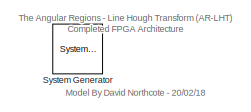
[diagram: root canvas - part 1/3, top left region]
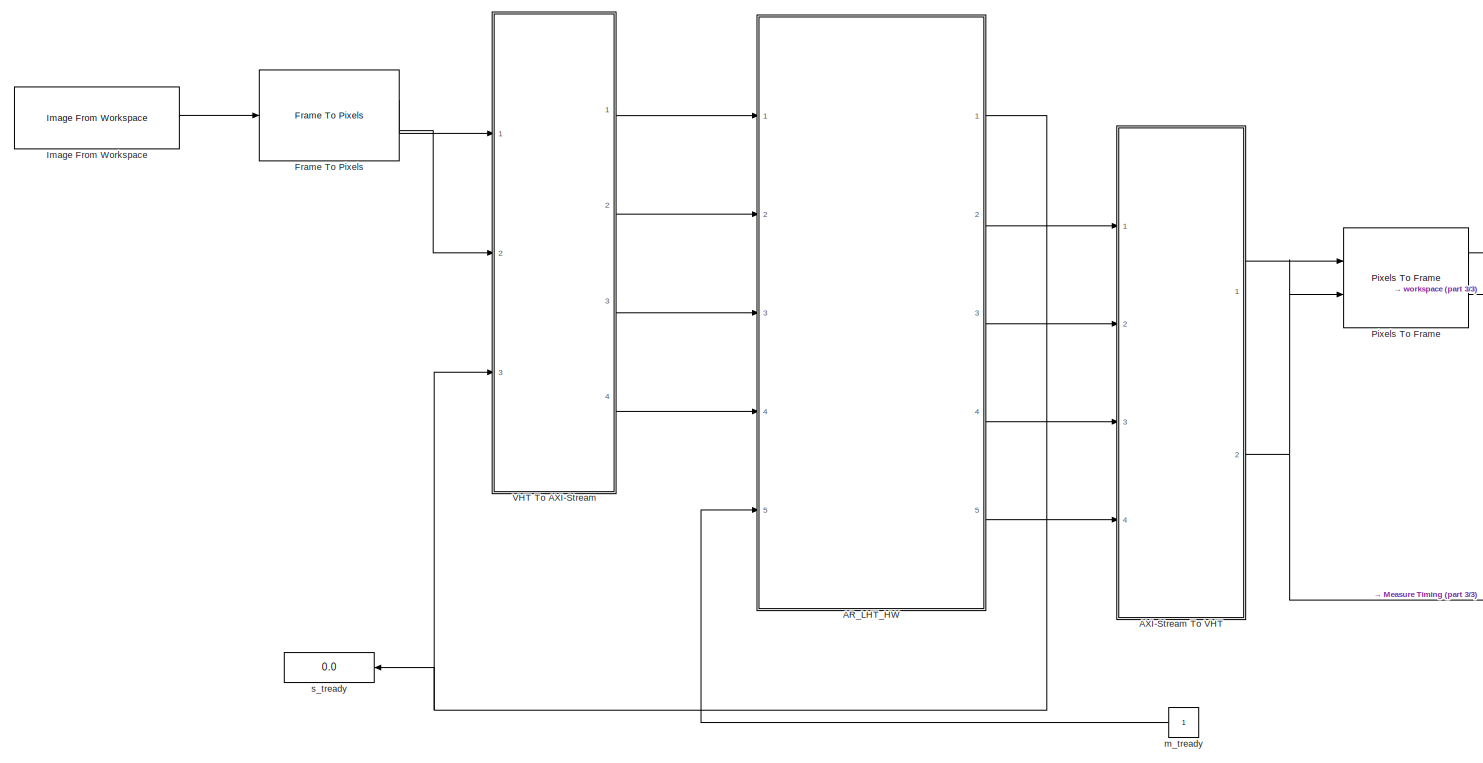
[diagram: root canvas - part 2/3, most of the canvas]
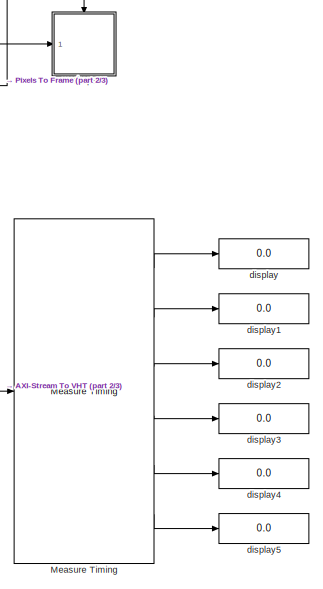
[diagram: root canvas - part 3/3, bottom right region]
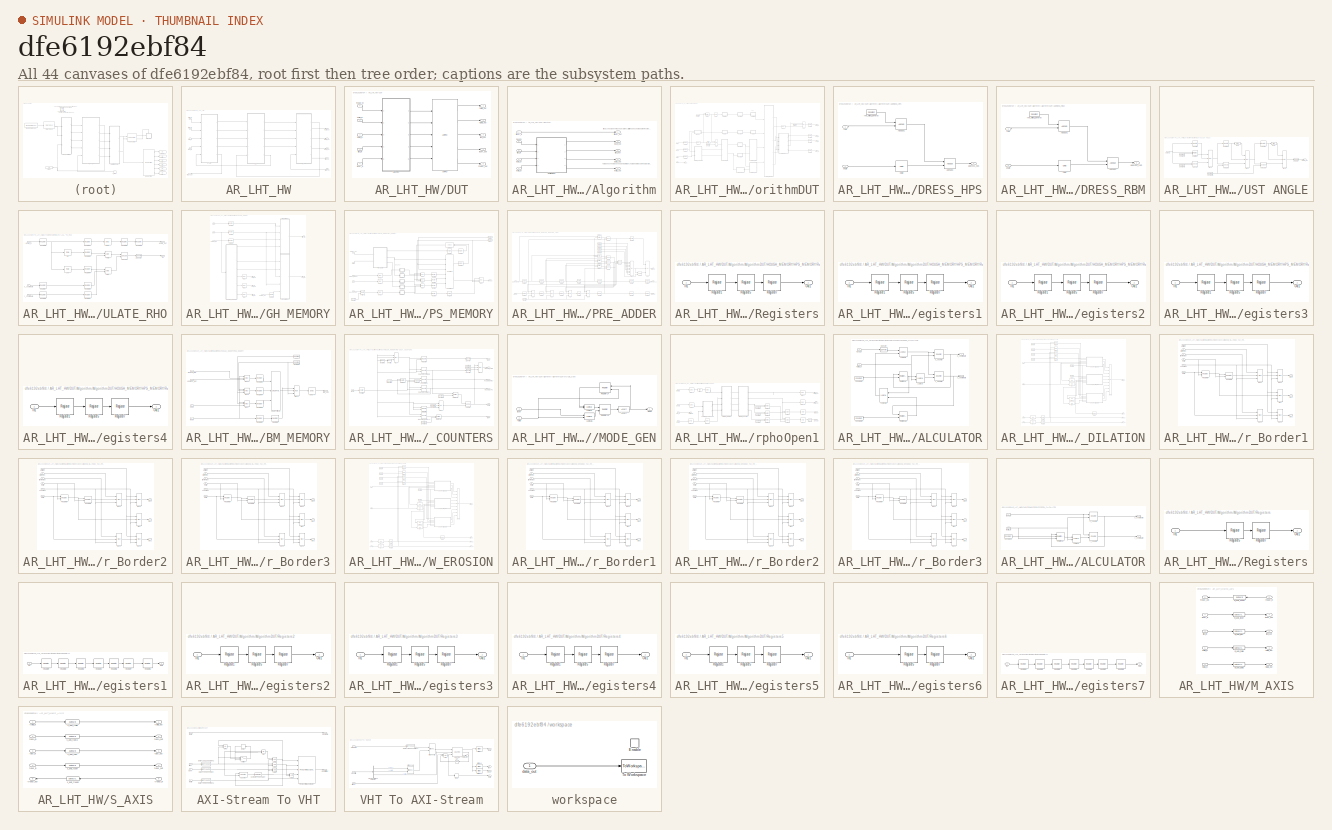
[diagram: thumbnail index - all 44 canvases of the model, root first then tree order]
MODEL slx_dfe6192ebf84
KIND model
CONFIG AbsTol = auto
CONFIG EnableMultiTasking = on
CONFIG FixedStep = auto
CONFIG MaxStep = auto
CONFIG MinStep = auto
CONFIG PreLoadFcn = currentDir  = pwd;\nfilesepIdx   = strfind(currentDir, filesep);\nnewDir = currentDir(1:filesepIdx(end)-8);\n\naddpath([newDir, '\scripts']);
CONFIG RelTol = 1e-3
CONFIG SampleTimeConstraint = Unconstrained
CONFIG Solver = VariableStepAuto
CONFIG SolverName = VariableStepAuto
CONFIG StartFcn = simComplete = 0;
CONFIG StartTime = 0.0
CONFIG StopFcn = simComplete = 1;
CONFIG StopTime = ts*2+2*maxRho*T
BLOCK [Reference]  System Generator  REF=xbsIndex_r4/ System Generator
  AttributesFormatString = System\nGenerator
  Ports = []
  SourceBlock = xbsIndex_r4/ System Generator
  SourceType = Xilinx System Generator Block
  Tag = genX
  UserDataPersistent = on
BLOCK [SubSystem] AR_LHT_HW
  Ports = [5, 5]
  RequestExecContextInheritance = off
BLOCK [SubSystem] AR_LHT_HW/DUT
  Ports = [5, 5]
  RequestExecContextInheritance = off
BLOCK [Reference] AR_LHT_HW/DUT/AXI FIFO  REF=xbsIndex_r4/AXI FIFO
  Ports = [5, 5]
  SourceBlock = xbsIndex_r4/AXI FIFO
  SourceType = Xilinx AXI FIFO Block Block
BLOCK [SubSystem] AR_LHT_HW/DUT/Algorithm
  Ports = [5, 5]
  RequestExecContextInheritance = off
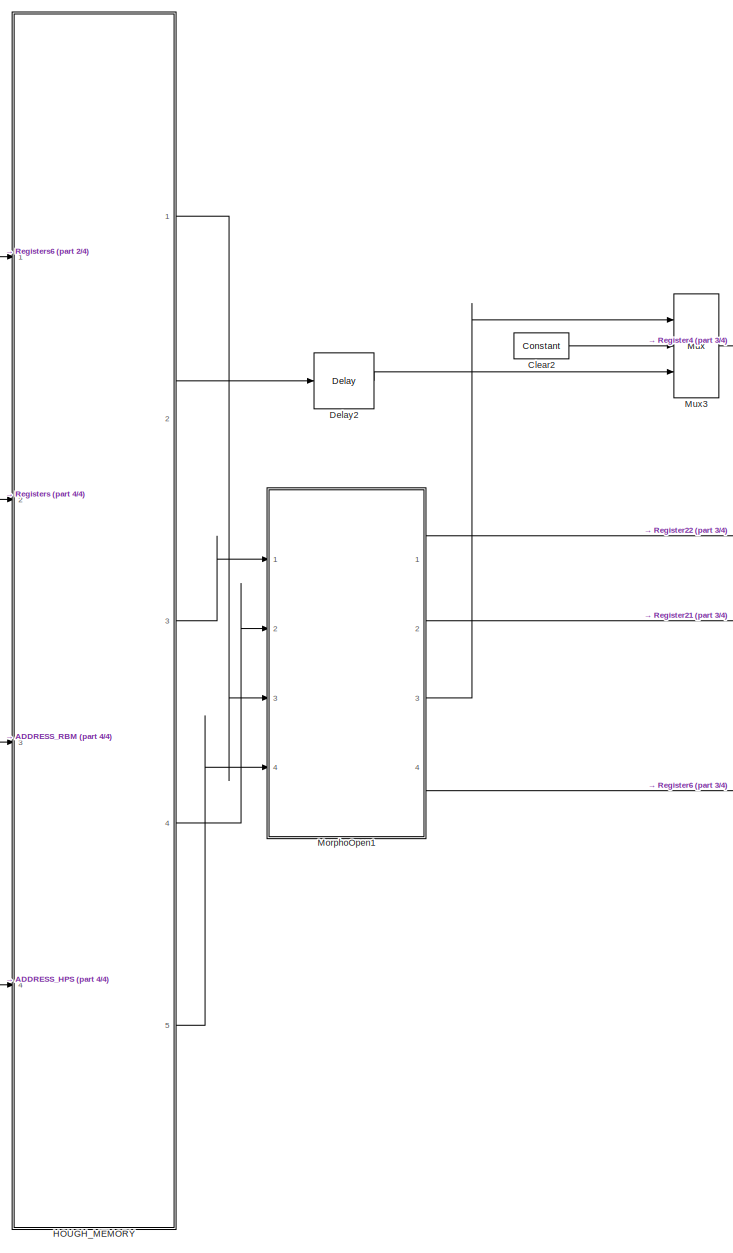
[diagram: AR_LHT_HW/DUT/Algorithm/AlgorithmDUT - part 1/4, right side, full height]
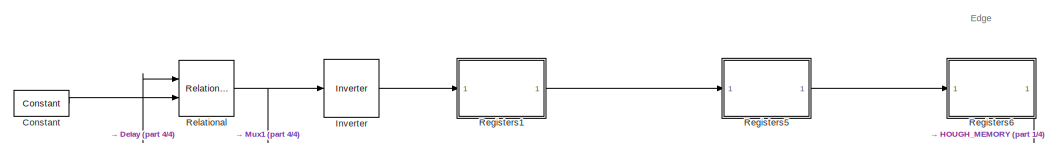
[diagram: AR_LHT_HW/DUT/Algorithm/AlgorithmDUT - part 2/4, top center region]
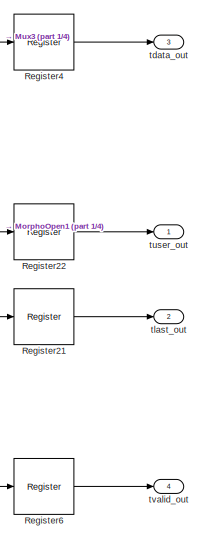
[diagram: AR_LHT_HW/DUT/Algorithm/AlgorithmDUT - part 3/4, middle right region]
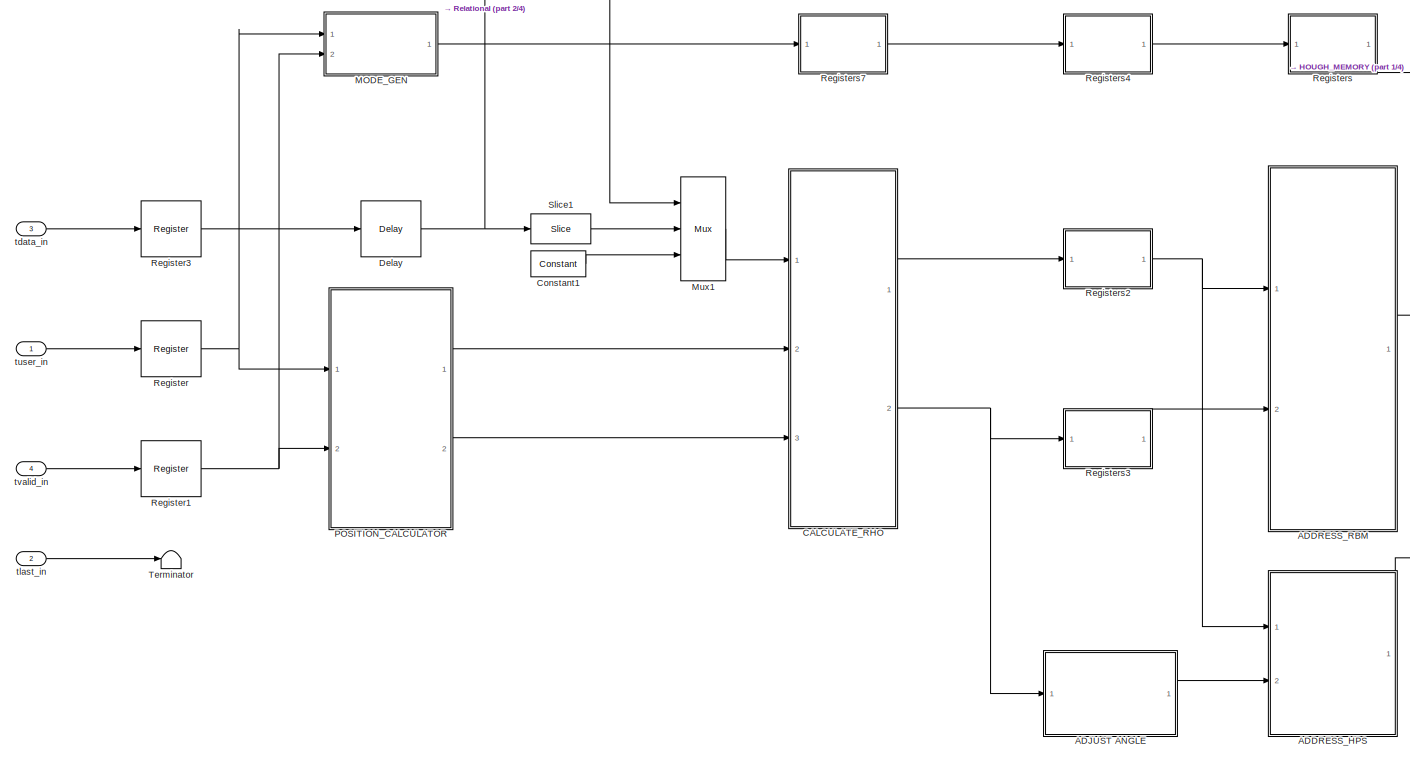
[diagram: AR_LHT_HW/DUT/Algorithm/AlgorithmDUT - part 4/4, middle left region]
BLOCK [SubSystem] AR_LHT_HW/DUT/Algorithm/AlgorithmDUT
  Ports = [4, 4]
  RequestExecContextInheritance = off
BLOCK [SubSystem] AR_LHT_HW/DUT/Algorithm/AlgorithmDUT/ADDRESS_HPS
  Ports = [2, 1]
  RequestExecContextInheritance = off
BLOCK [Reference] AR_LHT_HW/DUT/Algorithm/AlgorithmDUT/ADDRESS_HPS/AddSub1  REF=xbsIndex_r4/AddSub
  Ports = [2, 1]
  SourceBlock = xbsIndex_r4/AddSub
  SourceType = Xilinx Adder/Subtracter Block
BLOCK [Reference] AR_LHT_HW/DUT/Algorithm/AlgorithmDUT/ADDRESS_HPS/AddSub2  REF=xbsIndex_r4/AddSub
  Ports = [2, 1]
  SourceBlock = xbsIndex_r4/AddSub
  SourceType = Xilinx Adder/Subtracter Block
BLOCK [Reference] AR_LHT_HW/DUT/Algorithm/AlgorithmDUT/ADDRESS_HPS/CMult  REF=xbsIndex_r4/CMult
  Ports = [1, 1]
  SourceBlock = xbsIndex_r4/CMult
  SourceType = Xilinx Constant Multiplier Block
BLOCK [Outport] AR_LHT_HW/DUT/Algorithm/AlgorithmDUT/ADDRESS_HPS/address_hps
  IconDisplay = Port number
BLOCK [Inport] AR_LHT_HW/DUT/Algorithm/AlgorithmDUT/ADDRESS_HPS/angle
  IconDisplay = Port number
  Port = 2
BLOCK [Inport] AR_LHT_HW/DUT/Algorithm/AlgorithmDUT/ADDRESS_HPS/rho
  IconDisplay = Port number
BLOCK [Reference] AR_LHT_HW/DUT/Algorithm/AlgorithmDUT/ADDRESS_HPS/rho_offset_general  REF=xbsIndex_r4/Constant
  Ports = [0, 1]
  SourceBlock = xbsIndex_r4/Constant
  SourceType = Xilinx Constant Block Block
BLOCK [SubSystem] AR_LHT_HW/DUT/Algorithm/AlgorithmDUT/ADDRESS_RBM
  Ports = [2, 1]
  RequestExecContextInheritance = off
BLOCK [Reference] AR_LHT_HW/DUT/Algorithm/AlgorithmDUT/ADDRESS_RBM/AddSub1  REF=xbsIndex_r4/AddSub
  Ports = [2, 1]
  SourceBlock = xbsIndex_r4/AddSub
  SourceType = Xilinx Adder/Subtracter Block
BLOCK [Reference] AR_LHT_HW/DUT/Algorithm/AlgorithmDUT/ADDRESS_RBM/AddSub2  REF=xbsIndex_r4/AddSub
  Ports = [2, 1]
  SourceBlock = xbsIndex_r4/AddSub
  SourceType = Xilinx Adder/Subtracter Block
BLOCK [Reference] AR_LHT_HW/DUT/Algorithm/AlgorithmDUT/ADDRESS_RBM/CMult  REF=xbsIndex_r4/CMult
  Ports = [1, 1]
  SourceBlock = xbsIndex_r4/CMult
  SourceType = Xilinx Constant Multiplier Block
BLOCK [Outport] AR_LHT_HW/DUT/Algorithm/AlgorithmDUT/ADDRESS_RBM/address_rbm
  IconDisplay = Port number
BLOCK [Inport] AR_LHT_HW/DUT/Algorithm/AlgorithmDUT/ADDRESS_RBM/angle
  IconDisplay = Port number
  Port = 2
BLOCK [Inport] AR_LHT_HW/DUT/Algorithm/AlgorithmDUT/ADDRESS_RBM/rho
  IconDisplay = Port number
BLOCK [Reference] AR_LHT_HW/DUT/Algorithm/AlgorithmDUT/ADDRESS_RBM/rho_offset_general  REF=xbsIndex_r4/Constant
  Ports = [0, 1]
  SourceBlock = xbsIndex_r4/Constant
  SourceType = Xilinx Constant Block Block
BLOCK [SubSystem] AR_LHT_HW/DUT/Algorithm/AlgorithmDUT/ADJUST ANGLE
  Ports = [1, 1]
  RequestExecContextInheritance = off
BLOCK [Reference] AR_LHT_HW/DUT/Algorithm/AlgorithmDUT/ADJUST ANGLE/AddSub  REF=xbsIndex_r4/AddSub
  Ports = [2, 1]
  SourceBlock = xbsIndex_r4/AddSub
  SourceType = Xilinx Adder/Subtracter Block
BLOCK [Reference] AR_LHT_HW/DUT/Algorithm/AlgorithmDUT/ADJUST ANGLE/AddSub1  REF=xbsIndex_r4/AddSub
  Ports = [2, 1]
  SourceBlock = xbsIndex_r4/AddSub
  SourceType = Xilinx Adder/Subtracter Block
BLOCK [Reference] AR_LHT_HW/DUT/Algorithm/AlgorithmDUT/ADJUST ANGLE/AddSub2  REF=xbsIndex_r4/AddSub
  Ports = [2, 1]
  SourceBlock = xbsIndex_r4/AddSub
  SourceType = Xilinx Adder/Subtracter Block
BLOCK [Reference] AR_LHT_HW/DUT/Algorithm/AlgorithmDUT/ADJUST ANGLE/Constant1  REF=xbsIndex_r4/Constant
  Ports = [0, 1]
  SourceBlock = xbsIndex_r4/Constant
  SourceType = Xilinx Constant Block Block
BLOCK [Reference] AR_LHT_HW/DUT/Algorithm/AlgorithmDUT/ADJUST ANGLE/Constant2  REF=xbsIndex_r4/Constant
  Ports = [0, 1]
  SourceBlock = xbsIndex_r4/Constant
  SourceType = Xilinx Constant Block Block
BLOCK [Reference] AR_LHT_HW/DUT/Algorithm/AlgorithmDUT/ADJUST ANGLE/Constant3  REF=xbsIndex_r4/Constant
  Ports = [0, 1]
  SourceBlock = xbsIndex_r4/Constant
  SourceType = Xilinx Constant Block Block
BLOCK [Reference] AR_LHT_HW/DUT/Algorithm/AlgorithmDUT/ADJUST ANGLE/Convert  REF=xbsIndex_r4/Convert
  Ports = [1, 1]
  SourceBlock = xbsIndex_r4/Convert
  SourceType = Xilinx Type Converter Block
BLOCK [Reference] AR_LHT_HW/DUT/Algorithm/AlgorithmDUT/ADJUST ANGLE/MSB  REF=xbsIndex_r4/Slice
  Ports = [1, 1]
  SourceBlock = xbsIndex_r4/Slice
  SourceType = Xilinx Bit Slice Extractor Block
BLOCK [Reference] AR_LHT_HW/DUT/Algorithm/AlgorithmDUT/ADJUST ANGLE/MSB1  REF=xbsIndex_r4/Slice
  Ports = [1, 1]
  SourceBlock = xbsIndex_r4/Slice
  SourceType = Xilinx Bit Slice Extractor Block
BLOCK [Reference] AR_LHT_HW/DUT/Algorithm/AlgorithmDUT/ADJUST ANGLE/Mux1  REF=xbsIndex_r4/Mux
  Ports = [3, 1]
  SourceBlock = xbsIndex_r4/Mux
  SourceType = Xilinx Bus Multiplexer Block
BLOCK [Reference] AR_LHT_HW/DUT/Algorithm/AlgorithmDUT/ADJUST ANGLE/Mux2  REF=xbsIndex_r4/Mux
  Ports = [3, 1]
  SourceBlock = xbsIndex_r4/Mux
  SourceType = Xilinx Bus Multiplexer Block
BLOCK [Reference] AR_LHT_HW/DUT/Algorithm/AlgorithmDUT/ADJUST ANGLE/Mux3  REF=xbsIndex_r4/Mux
  Ports = [3, 1]
  SourceBlock = xbsIndex_r4/Mux
  SourceType = Xilinx Bus Multiplexer Block
BLOCK [Reference] AR_LHT_HW/DUT/Algorithm/AlgorithmDUT/ADJUST ANGLE/Register10  REF=xbsIndex_r4/Register
  Ports = [1, 1]
  SourceBlock = xbsIndex_r4/Register
  SourceType = Xilinx Register Block
BLOCK [Reference] AR_LHT_HW/DUT/Algorithm/AlgorithmDUT/ADJUST ANGLE/Register11  REF=xbsIndex_r4/Register
  Ports = [1, 1]
  SourceBlock = xbsIndex_r4/Register
  SourceType = Xilinx Register Block
BLOCK [Reference] AR_LHT_HW/DUT/Algorithm/AlgorithmDUT/ADJUST ANGLE/Register9  REF=xbsIndex_r4/Register
  Ports = [1, 1]
  SourceBlock = xbsIndex_r4/Register
  SourceType = Xilinx Register Block
BLOCK [Reference] AR_LHT_HW/DUT/Algorithm/AlgorithmDUT/ADJUST ANGLE/Relational  REF=xbsIndex_r4/Relational
  Ports = [2, 1]
  SourceBlock = xbsIndex_r4/Relational
  SourceType = Xilinx Arithmetic Relational Operator Block
BLOCK [Inport] AR_LHT_HW/DUT/Algorithm/AlgorithmDUT/ADJUST ANGLE/angle_in
  IconDisplay = Port number
BLOCK [Outport] AR_LHT_HW/DUT/Algorithm/AlgorithmDUT/ADJUST ANGLE/angle_out
  IconDisplay = Port number
BLOCK [SubSystem] AR_LHT_HW/DUT/Algorithm/AlgorithmDUT/CALCULATE_RHO
  Ports = [3, 2]
  RequestExecContextInheritance = off
BLOCK [Reference] AR_LHT_HW/DUT/Algorithm/AlgorithmDUT/CALCULATE_RHO/AddSub  REF=xbsIndex_r4/AddSub
  Ports = [2, 1]
  SourceBlock = xbsIndex_r4/AddSub
  SourceType = Xilinx Adder/Subtracter Block
BLOCK [Reference] AR_LHT_HW/DUT/Algorithm/AlgorithmDUT/CALCULATE_RHO/Convert  REF=xbsIndex_r4/Convert
  Ports = [1, 1]
  SourceBlock = xbsIndex_r4/Convert
  SourceType = Xilinx Type Converter Block
BLOCK [Reference] AR_LHT_HW/DUT/Algorithm/AlgorithmDUT/CALCULATE_RHO/Delay  REF=xbsIndex_r4/Delay
  Ports = [1, 1]
  SourceBlock = xbsIndex_r4/Delay
  SourceType = Xilinx Delay Block
BLOCK [Reference] AR_LHT_HW/DUT/Algorithm/AlgorithmDUT/CALCULATE_RHO/Mult  REF=xbsIndex_r4/Mult
  Ports = [2, 1]
  SourceBlock = xbsIndex_r4/Mult
  SourceType = Xilinx Multiplier Block
BLOCK [Reference] AR_LHT_HW/DUT/Algorithm/AlgorithmDUT/CALCULATE_RHO/Mult1  REF=xbsIndex_r4/Mult
  Ports = [2, 1]
  SourceBlock = xbsIndex_r4/Mult
  SourceType = Xilinx Multiplier Block
BLOCK [Reference] AR_LHT_HW/DUT/Algorithm/AlgorithmDUT/CALCULATE_RHO/Register  REF=xbsIndex_r4/Register
  Ports = [1, 1]
  SourceBlock = xbsIndex_r4/Register
  SourceType = Xilinx Register Block
BLOCK [Reference] AR_LHT_HW/DUT/Algorithm/AlgorithmDUT/CALCULATE_RHO/Register1  REF=xbsIndex_r4/Register
  Ports = [1, 1]
  SourceBlock = xbsIndex_r4/Register
  SourceType = Xilinx Register Block
BLOCK [Reference] AR_LHT_HW/DUT/Algorithm/AlgorithmDUT/CALCULATE_RHO/Register10  REF=xbsIndex_r4/Register
  Ports = [1, 1]
  SourceBlock = xbsIndex_r4/Register
  SourceType = Xilinx Register Block
BLOCK [Reference] AR_LHT_HW/DUT/Algorithm/AlgorithmDUT/CALCULATE_RHO/Register2  REF=xbsIndex_r4/Register
  Ports = [1, 1]
  SourceBlock = xbsIndex_r4/Register
  SourceType = Xilinx Register Block
BLOCK [Reference] AR_LHT_HW/DUT/Algorithm/AlgorithmDUT/CALCULATE_RHO/Register3  REF=xbsIndex_r4/Register
  Ports = [1, 1]
  SourceBlock = xbsIndex_r4/Register
  SourceType = Xilinx Register Block
BLOCK [Reference] AR_LHT_HW/DUT/Algorithm/AlgorithmDUT/CALCULATE_RHO/Register4  REF=xbsIndex_r4/Register
  Ports = [1, 1]
  SourceBlock = xbsIndex_r4/Register
  SourceType = Xilinx Register Block
BLOCK [Reference] AR_LHT_HW/DUT/Algorithm/AlgorithmDUT/CALCULATE_RHO/Register5  REF=xbsIndex_r4/Register
  Ports = [1, 1]
  SourceBlock = xbsIndex_r4/Register
  SourceType = Xilinx Register Block
BLOCK [Reference] AR_LHT_HW/DUT/Algorithm/AlgorithmDUT/CALCULATE_RHO/Register6  REF=xbsIndex_r4/Register
  Ports = [1, 1]
  SourceBlock = xbsIndex_r4/Register
  SourceType = Xilinx Register Block
BLOCK [Reference] AR_LHT_HW/DUT/Algorithm/AlgorithmDUT/CALCULATE_RHO/Register7  REF=xbsIndex_r4/Register
  Ports = [1, 1]
  SourceBlock = xbsIndex_r4/Register
  SourceType = Xilinx Register Block
BLOCK [Reference] AR_LHT_HW/DUT/Algorithm/AlgorithmDUT/CALCULATE_RHO/Register9  REF=xbsIndex_r4/Register
  Ports = [1, 1]
  SourceBlock = xbsIndex_r4/Register
  SourceType = Xilinx Register Block
BLOCK [Inport] AR_LHT_HW/DUT/Algorithm/AlgorithmDUT/CALCULATE_RHO/angle_in
  IconDisplay = Port number
BLOCK [Outport] AR_LHT_HW/DUT/Algorithm/AlgorithmDUT/CALCULATE_RHO/angle_out
  IconDisplay = Port number
  Port = 2
BLOCK [Reference] AR_LHT_HW/DUT/Algorithm/AlgorithmDUT/CALCULATE_RHO/cos  REF=xbsIndex_r4/ROM
  Ports = [1, 1]
  SourceBlock = xbsIndex_r4/ROM
  SourceType = Xilinx Single Port Read-Only Memory Block
BLOCK [Outport] AR_LHT_HW/DUT/Algorithm/AlgorithmDUT/CALCULATE_RHO/rho
  IconDisplay = Port number
BLOCK [Reference] AR_LHT_HW/DUT/Algorithm/AlgorithmDUT/CALCULATE_RHO/sin  REF=xbsIndex_r4/ROM
  Ports = [1, 1]
  SourceBlock = xbsIndex_r4/ROM
  SourceType = Xilinx Single Port Read-Only Memory Block
BLOCK [Inport] AR_LHT_HW/DUT/Algorithm/AlgorithmDUT/CALCULATE_RHO/x_coordinate
  IconDisplay = Port number
  Port = 2
BLOCK [Inport] AR_LHT_HW/DUT/Algorithm/AlgorithmDUT/CALCULATE_RHO/y_coordinate
  IconDisplay = Port number
  Port = 3
BLOCK [Reference] AR_LHT_HW/DUT/Algorithm/AlgorithmDUT/Clear2  REF=xbsIndex_r4/Constant
  Ports = [0, 1]
  SourceBlock = xbsIndex_r4/Constant
  SourceType = Xilinx Constant Block Block
BLOCK [Reference] AR_LHT_HW/DUT/Algorithm/AlgorithmDUT/Constant  REF=xbsIndex_r4/Constant
  Ports = [0, 1]
  SourceBlock = xbsIndex_r4/Constant
  SourceType = Xilinx Constant Block Block
BLOCK [Reference] AR_LHT_HW/DUT/Algorithm/AlgorithmDUT/Constant1  REF=xbsIndex_r4/Constant
  Ports = [0, 1]
  SourceBlock = xbsIndex_r4/Constant
  SourceType = Xilinx Constant Block Block
BLOCK [Reference] AR_LHT_HW/DUT/Algorithm/AlgorithmDUT/Delay  REF=xbsIndex_r4/Delay
  Ports = [1, 1]
  SourceBlock = xbsIndex_r4/Delay
  SourceType = Xilinx Delay Block
BLOCK [Reference] AR_LHT_HW/DUT/Algorithm/AlgorithmDUT/Delay2  REF=xbsIndex_r4/Delay
  Ports = [1, 1]
  SourceBlock = xbsIndex_r4/Delay
  SourceType = Xilinx Delay Block
BLOCK [SubSystem] AR_LHT_HW/DUT/Algorithm/AlgorithmDUT/HOUGH_MEMORY
  Ports = [4, 5]
  RequestExecContextInheritance = off
BLOCK [Reference] AR_LHT_HW/DUT/Algorithm/AlgorithmDUT/HOUGH_MEMORY/Delay1  REF=xbsIndex_r4/Delay
  Ports = [1, 1]
  SourceBlock = xbsIndex_r4/Delay
  SourceType = Xilinx Delay Block
BLOCK [Reference] AR_LHT_HW/DUT/Algorithm/AlgorithmDUT/HOUGH_MEMORY/Delay2  REF=xbsIndex_r4/Delay
  Ports = [1, 1]
  SourceBlock = xbsIndex_r4/Delay
  SourceType = Xilinx Delay Block
BLOCK [Reference] AR_LHT_HW/DUT/Algorithm/AlgorithmDUT/HOUGH_MEMORY/Delay6  REF=xbsIndex_r4/Delay
  Ports = [1, 1]
  SourceBlock = xbsIndex_r4/Delay
  SourceType = Xilinx Delay Block
BLOCK [SubSystem] AR_LHT_HW/DUT/Algorithm/AlgorithmDUT/HOUGH_MEMORY/HPS_MEMORY
  Ports = [5, 1]
  RequestExecContextInheritance = off
BLOCK [Reference] AR_LHT_HW/DUT/Algorithm/AlgorithmDUT/HOUGH_MEMORY/HPS_MEMORY/AddSub  REF=xbsIndex_r4/AddSub
  Ports = [2, 1]
  SourceBlock = xbsIndex_r4/AddSub
  SourceType = Xilinx Adder/Subtracter Block
BLOCK [Reference] AR_LHT_HW/DUT/Algorithm/AlgorithmDUT/HOUGH_MEMORY/HPS_MEMORY/Clear  REF=xbsIndex_r4/Constant
  Ports = [0, 1]
  SourceBlock = xbsIndex_r4/Constant
  SourceType = Xilinx Constant Block Block
BLOCK [Reference] AR_LHT_HW/DUT/Algorithm/AlgorithmDUT/HOUGH_MEMORY/HPS_MEMORY/Constant  REF=xbsIndex_r4/Constant
  Ports = [0, 1]
  SourceBlock = xbsIndex_r4/Constant
  SourceType = Xilinx Constant Block Block
BLOCK [Reference] AR_LHT_HW/DUT/Algorithm/AlgorithmDUT/HOUGH_MEMORY/HPS_MEMORY/Delay1  REF=xbsIndex_r4/Delay
  Ports = [1, 1]
  SourceBlock = xbsIndex_r4/Delay
  SourceType = Xilinx Delay Block
BLOCK [Reference] AR_LHT_HW/DUT/Algorithm/AlgorithmDUT/HOUGH_MEMORY/HPS_MEMORY/Delay2  REF=xbsIndex_r4/Delay
  Ports = [1, 1]
  SourceBlock = xbsIndex_r4/Delay
  SourceType = Xilinx Delay Block
BLOCK [Reference] AR_LHT_HW/DUT/Algorithm/AlgorithmDUT/HOUGH_MEMORY/HPS_MEMORY/Delay3  REF=xbsIndex_r4/Delay
  Ports = [1, 1]
  SourceBlock = xbsIndex_r4/Delay
  SourceType = Xilinx Delay Block
BLOCK [Reference] AR_LHT_HW/DUT/Algorithm/AlgorithmDUT/HOUGH_MEMORY/HPS_MEMORY/Dual Port RAM  REF=xbsIndex_r4/Dual Port RAM
  Ports = [6, 2]
  SourceBlock = xbsIndex_r4/Dual Port RAM
  SourceType = Xilinx Dual Port Random Access Memory Block
BLOCK [Reference] AR_LHT_HW/DUT/Algorithm/AlgorithmDUT/HOUGH_MEMORY/HPS_MEMORY/GND  REF=xbsIndex_r4/Constant
  Ports = [0, 1]
  SourceBlock = xbsIndex_r4/Constant
  SourceType = Xilinx Constant Block Block
BLOCK [Reference] AR_LHT_HW/DUT/Algorithm/AlgorithmDUT/HOUGH_MEMORY/HPS_MEMORY/Mux1  REF=xbsIndex_r4/Mux
  Ports = [3, 1]
  SourceBlock = xbsIndex_r4/Mux
  SourceType = Xilinx Bus Multiplexer Block
BLOCK [Reference] AR_LHT_HW/DUT/Algorithm/AlgorithmDUT/HOUGH_MEMORY/HPS_MEMORY/Mux2  REF=xbsIndex_r4/Mux
  Ports = [3, 1]
  SourceBlock = xbsIndex_r4/Mux
  SourceType = Xilinx Bus Multiplexer Block
BLOCK [Reference] AR_LHT_HW/DUT/Algorithm/AlgorithmDUT/HOUGH_MEMORY/HPS_MEMORY/Mux4  REF=xbsIndex_r4/Mux
  Ports = [3, 1]
  SourceBlock = xbsIndex_r4/Mux
  SourceType = Xilinx Bus Multiplexer Block
BLOCK [Reference] AR_LHT_HW/DUT/Algorithm/AlgorithmDUT/HOUGH_MEMORY/HPS_MEMORY/Mux5  REF=xbsIndex_r4/Mux
  Ports = [3, 1]
  SourceBlock = xbsIndex_r4/Mux
  SourceType = Xilinx Bus Multiplexer Block
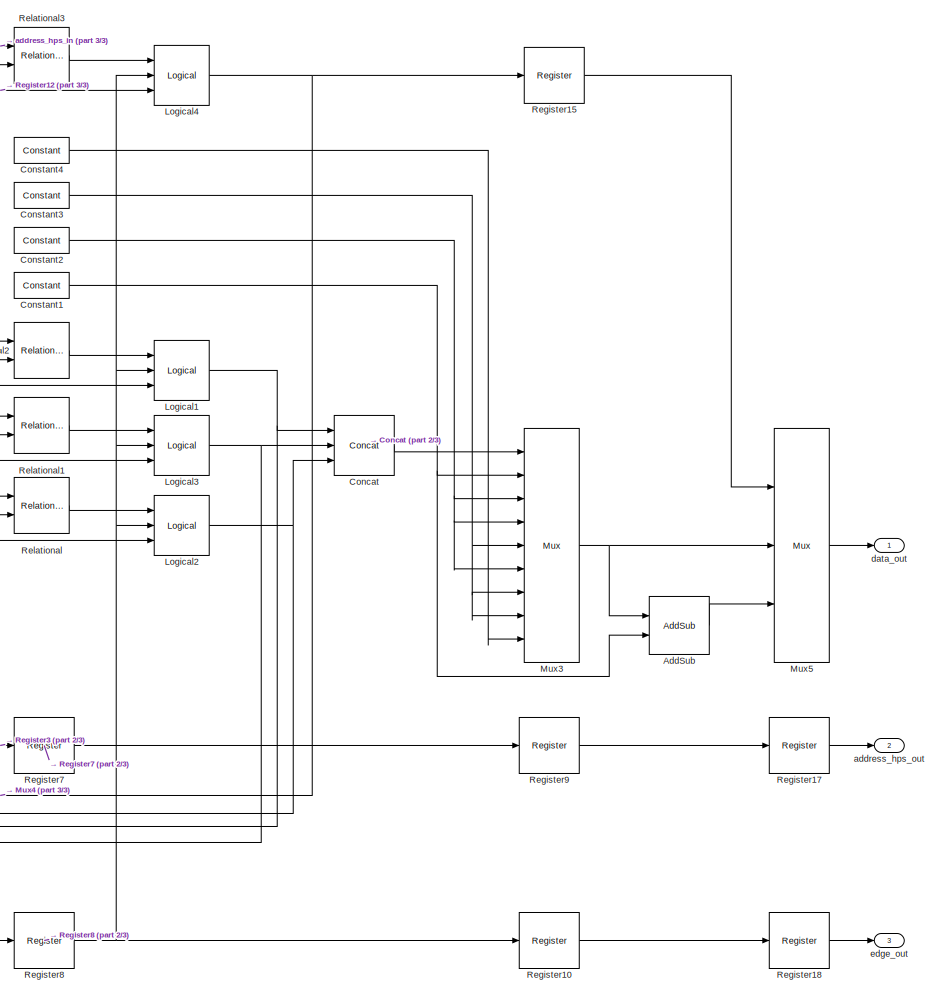
[diagram: AR_LHT_HW/DUT/Algorithm/AlgorithmDUT/HOUGH_MEMORY/HPS_MEMORY/PRE_ADDER - part 1/3, right side, full height]
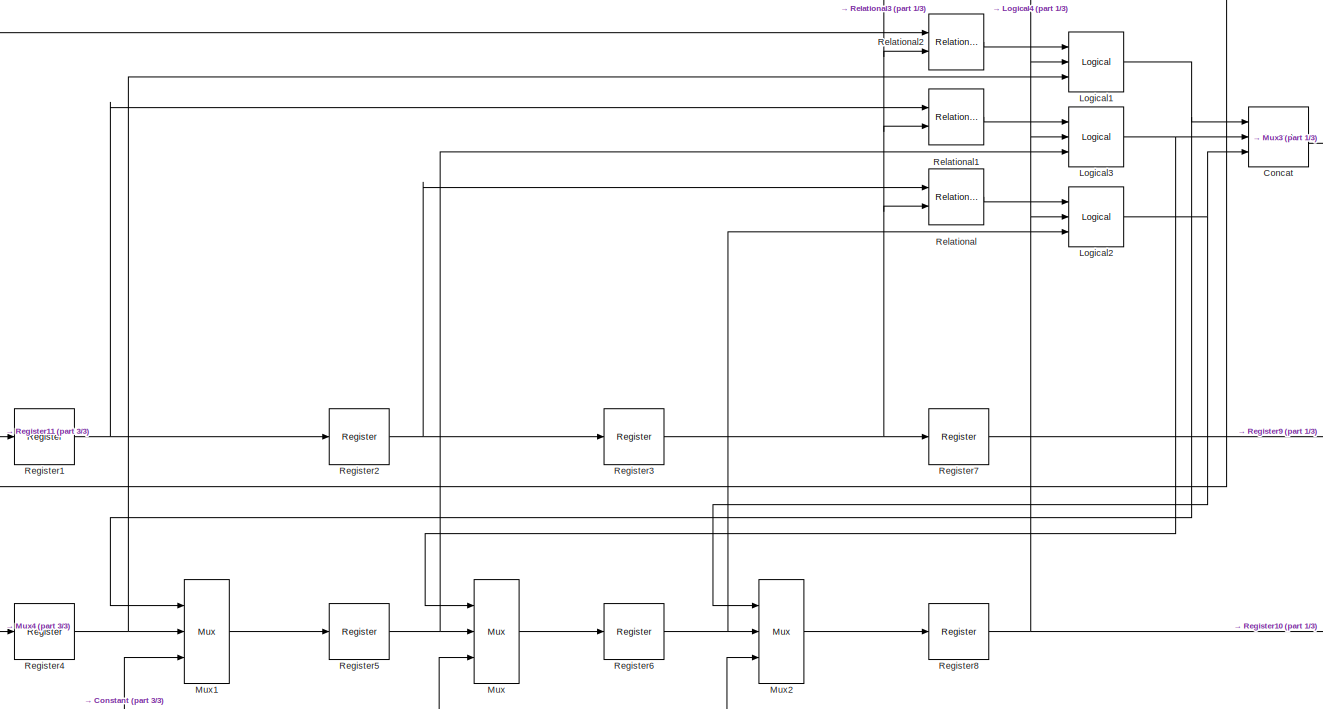
[diagram: AR_LHT_HW/DUT/Algorithm/AlgorithmDUT/HOUGH_MEMORY/HPS_MEMORY/PRE_ADDER - part 2/3, central region]
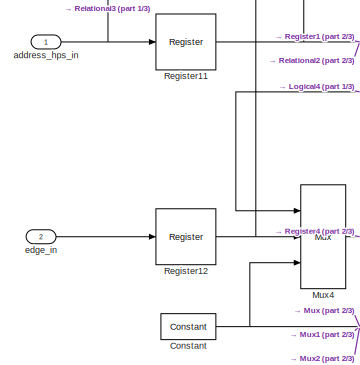
[diagram: AR_LHT_HW/DUT/Algorithm/AlgorithmDUT/HOUGH_MEMORY/HPS_MEMORY/PRE_ADDER - part 3/3, bottom left region]
BLOCK [SubSystem] AR_LHT_HW/DUT/Algorithm/AlgorithmDUT/HOUGH_MEMORY/HPS_MEMORY/PRE_ADDER
  Ports = [2, 3]
  RequestExecContextInheritance = off
BLOCK [Reference] AR_LHT_HW/DUT/Algorithm/AlgorithmDUT/HOUGH_MEMORY/HPS_MEMORY/PRE_ADDER/AddSub  REF=xbsIndex_r4/AddSub
  Ports = [2, 1]
  SourceBlock = xbsIndex_r4/AddSub
  SourceType = Xilinx Adder/Subtracter Block
BLOCK [Reference] AR_LHT_HW/DUT/Algorithm/AlgorithmDUT/HOUGH_MEMORY/HPS_MEMORY/PRE_ADDER/Concat  REF=xbsIndex_r4/Concat
  Ports = [3, 1]
  SourceBlock = xbsIndex_r4/Concat
  SourceType = Xilinx Bus Concatenator Block
BLOCK [Reference] AR_LHT_HW/DUT/Algorithm/AlgorithmDUT/HOUGH_MEMORY/HPS_MEMORY/PRE_ADDER/Constant  REF=xbsIndex_r4/Constant
  Ports = [0, 1]
  SourceBlock = xbsIndex_r4/Constant
  SourceType = Xilinx Constant Block Block
BLOCK [Reference] AR_LHT_HW/DUT/Algorithm/AlgorithmDUT/HOUGH_MEMORY/HPS_MEMORY/PRE_ADDER/Constant1  REF=xbsIndex_r4/Constant
  Ports = [0, 1]
  SourceBlock = xbsIndex_r4/Constant
  SourceType = Xilinx Constant Block Block
BLOCK [Reference] AR_LHT_HW/DUT/Algorithm/AlgorithmDUT/HOUGH_MEMORY/HPS_MEMORY/PRE_ADDER/Constant2  REF=xbsIndex_r4/Constant
  Ports = [0, 1]
  SourceBlock = xbsIndex_r4/Constant
  SourceType = Xilinx Constant Block Block
BLOCK [Reference] AR_LHT_HW/DUT/Algorithm/AlgorithmDUT/HOUGH_MEMORY/HPS_MEMORY/PRE_ADDER/Constant3  REF=xbsIndex_r4/Constant
  Ports = [0, 1]
  SourceBlock = xbsIndex_r4/Constant
  SourceType = Xilinx Constant Block Block
BLOCK [Reference] AR_LHT_HW/DUT/Algorithm/AlgorithmDUT/HOUGH_MEMORY/HPS_MEMORY/PRE_ADDER/Constant4  REF=xbsIndex_r4/Constant
  Ports = [0, 1]
  SourceBlock = xbsIndex_r4/Constant
  SourceType = Xilinx Constant Block Block
BLOCK [Reference] AR_LHT_HW/DUT/Algorithm/AlgorithmDUT/HOUGH_MEMORY/HPS_MEMORY/PRE_ADDER/Logical1  REF=xbsIndex_r4/Logical
  Ports = [3, 1]
  SourceBlock = xbsIndex_r4/Logical
  SourceType = Xilinx Logical Block Block
BLOCK [Reference] AR_LHT_HW/DUT/Algorithm/AlgorithmDUT/HOUGH_MEMORY/HPS_MEMORY/PRE_ADDER/Logical2  REF=xbsIndex_r4/Logical
  Ports = [3, 1]
  SourceBlock = xbsIndex_r4/Logical
  SourceType = Xilinx Logical Block Block
BLOCK [Reference] AR_LHT_HW/DUT/Algorithm/AlgorithmDUT/HOUGH_MEMORY/HPS_MEMORY/PRE_ADDER/Logical3  REF=xbsIndex_r4/Logical
  Ports = [3, 1]
  SourceBlock = xbsIndex_r4/Logical
  SourceType = Xilinx Logical Block Block
BLOCK [Reference] AR_LHT_HW/DUT/Algorithm/AlgorithmDUT/HOUGH_MEMORY/HPS_MEMORY/PRE_ADDER/Logical4  REF=xbsIndex_r4/Logical
  Ports = [3, 1]
  SourceBlock = xbsIndex_r4/Logical
  SourceType = Xilinx Logical Block Block
BLOCK [Reference] AR_LHT_HW/DUT/Algorithm/AlgorithmDUT/HOUGH_MEMORY/HPS_MEMORY/PRE_ADDER/Mux  REF=xbsIndex_r4/Mux
  Ports = [3, 1]
  SourceBlock = xbsIndex_r4/Mux
  SourceType = Xilinx Bus Multiplexer Block
BLOCK [Reference] AR_LHT_HW/DUT/Algorithm/AlgorithmDUT/HOUGH_MEMORY/HPS_MEMORY/PRE_ADDER/Mux1  REF=xbsIndex_r4/Mux
  Ports = [3, 1]
  SourceBlock = xbsIndex_r4/Mux
  SourceType = Xilinx Bus Multiplexer Block
BLOCK [Reference] AR_LHT_HW/DUT/Algorithm/AlgorithmDUT/HOUGH_MEMORY/HPS_MEMORY/PRE_ADDER/Mux2  REF=xbsIndex_r4/Mux
  Ports = [3, 1]
  SourceBlock = xbsIndex_r4/Mux
  SourceType = Xilinx Bus Multiplexer Block
BLOCK [Reference] AR_LHT_HW/DUT/Algorithm/AlgorithmDUT/HOUGH_MEMORY/HPS_MEMORY/PRE_ADDER/Mux3  REF=xbsIndex_r4/Mux
  Ports = [9, 1]
  SourceBlock = xbsIndex_r4/Mux
  SourceType = Xilinx Bus Multiplexer Block
BLOCK [Reference] AR_LHT_HW/DUT/Algorithm/AlgorithmDUT/HOUGH_MEMORY/HPS_MEMORY/PRE_ADDER/Mux4  REF=xbsIndex_r4/Mux
  Ports = [3, 1]
  SourceBlock = xbsIndex_r4/Mux
  SourceType = Xilinx Bus Multiplexer Block
BLOCK [Reference] AR_LHT_HW/DUT/Algorithm/AlgorithmDUT/HOUGH_MEMORY/HPS_MEMORY/PRE_ADDER/Mux5  REF=xbsIndex_r4/Mux
  Ports = [3, 1]
  SourceBlock = xbsIndex_r4/Mux
  SourceType = Xilinx Bus Multiplexer Block
BLOCK [Reference] AR_LHT_HW/DUT/Algorithm/AlgorithmDUT/HOUGH_MEMORY/HPS_MEMORY/PRE_ADDER/Register1  REF=xbsIndex_r4/Register
  Ports = [1, 1]
  SourceBlock = xbsIndex_r4/Register
  SourceType = Xilinx Register Block
BLOCK [Reference] AR_LHT_HW/DUT/Algorithm/AlgorithmDUT/HOUGH_MEMORY/HPS_MEMORY/PRE_ADDER/Register10  REF=xbsIndex_r4/Register
  Ports = [1, 1]
  SourceBlock = xbsIndex_r4/Register
  SourceType = Xilinx Register Block
BLOCK [Reference] AR_LHT_HW/DUT/Algorithm/AlgorithmDUT/HOUGH_MEMORY/HPS_MEMORY/PRE_ADDER/Register11  REF=xbsIndex_r4/Register
  Ports = [1, 1]
  SourceBlock = xbsIndex_r4/Register
  SourceType = Xilinx Register Block
BLOCK [Reference] AR_LHT_HW/DUT/Algorithm/AlgorithmDUT/HOUGH_MEMORY/HPS_MEMORY/PRE_ADDER/Register12  REF=xbsIndex_r4/Register
  Ports = [1, 1]
  SourceBlock = xbsIndex_r4/Register
  SourceType = Xilinx Register Block
BLOCK [Reference] AR_LHT_HW/DUT/Algorithm/AlgorithmDUT/HOUGH_MEMORY/HPS_MEMORY/PRE_ADDER/Register15  REF=xbsIndex_r4/Register
  Ports = [1, 1]
  SourceBlock = xbsIndex_r4/Register
  SourceType = Xilinx Register Block
BLOCK [Reference] AR_LHT_HW/DUT/Algorithm/AlgorithmDUT/HOUGH_MEMORY/HPS_MEMORY/PRE_ADDER/Register17  REF=xbsIndex_r4/Register
  Ports = [1, 1]
  SourceBlock = xbsIndex_r4/Register
  SourceType = Xilinx Register Block
BLOCK [Reference] AR_LHT_HW/DUT/Algorithm/AlgorithmDUT/HOUGH_MEMORY/HPS_MEMORY/PRE_ADDER/Register18  REF=xbsIndex_r4/Register
  Ports = [1, 1]
  SourceBlock = xbsIndex_r4/Register
  SourceType = Xilinx Register Block
BLOCK [Reference] AR_LHT_HW/DUT/Algorithm/AlgorithmDUT/HOUGH_MEMORY/HPS_MEMORY/PRE_ADDER/Register2  REF=xbsIndex_r4/Register
  Ports = [1, 1]
  SourceBlock = xbsIndex_r4/Register
  SourceType = Xilinx Register Block
BLOCK [Reference] AR_LHT_HW/DUT/Algorithm/AlgorithmDUT/HOUGH_MEMORY/HPS_MEMORY/PRE_ADDER/Register3  REF=xbsIndex_r4/Register
  Ports = [1, 1]
  SourceBlock = xbsIndex_r4/Register
  SourceType = Xilinx Register Block
BLOCK [Reference] AR_LHT_HW/DUT/Algorithm/AlgorithmDUT/HOUGH_MEMORY/HPS_MEMORY/PRE_ADDER/Register4  REF=xbsIndex_r4/Register
  Ports = [1, 1]
  SourceBlock = xbsIndex_r4/Register
  SourceType = Xilinx Register Block
BLOCK [Reference] AR_LHT_HW/DUT/Algorithm/AlgorithmDUT/HOUGH_MEMORY/HPS_MEMORY/PRE_ADDER/Register5  REF=xbsIndex_r4/Register
  Ports = [1, 1]
  SourceBlock = xbsIndex_r4/Register
  SourceType = Xilinx Register Block
BLOCK [Reference] AR_LHT_HW/DUT/Algorithm/AlgorithmDUT/HOUGH_MEMORY/HPS_MEMORY/PRE_ADDER/Register6  REF=xbsIndex_r4/Register
  Ports = [1, 1]
  SourceBlock = xbsIndex_r4/Register
  SourceType = Xilinx Register Block
BLOCK [Reference] AR_LHT_HW/DUT/Algorithm/AlgorithmDUT/HOUGH_MEMORY/HPS_MEMORY/PRE_ADDER/Register7  REF=xbsIndex_r4/Register
  Ports = [1, 1]
  SourceBlock = xbsIndex_r4/Register
  SourceType = Xilinx Register Block
BLOCK [Reference] AR_LHT_HW/DUT/Algorithm/AlgorithmDUT/HOUGH_MEMORY/HPS_MEMORY/PRE_ADDER/Register8  REF=xbsIndex_r4/Register
  Ports = [1, 1]
  SourceBlock = xbsIndex_r4/Register
  SourceType = Xilinx Register Block
BLOCK [Reference] AR_LHT_HW/DUT/Algorithm/AlgorithmDUT/HOUGH_MEMORY/HPS_MEMORY/PRE_ADDER/Register9  REF=xbsIndex_r4/Register
  Ports = [1, 1]
  SourceBlock = xbsIndex_r4/Register
  SourceType = Xilinx Register Block
BLOCK [Reference] AR_LHT_HW/DUT/Algorithm/AlgorithmDUT/HOUGH_MEMORY/HPS_MEMORY/PRE_ADDER/Relational  REF=xbsIndex_r4/Relational
  Ports = [2, 1]
  SourceBlock = xbsIndex_r4/Relational
  SourceType = Xilinx Arithmetic Relational Operator Block
BLOCK [Reference] AR_LHT_HW/DUT/Algorithm/AlgorithmDUT/HOUGH_MEMORY/HPS_MEMORY/PRE_ADDER/Relational1  REF=xbsIndex_r4/Relational
  Ports = [2, 1]
  SourceBlock = xbsIndex_r4/Relational
  SourceType = Xilinx Arithmetic Relational Operator Block
BLOCK [Reference] AR_LHT_HW/DUT/Algorithm/AlgorithmDUT/HOUGH_MEMORY/HPS_MEMORY/PRE_ADDER/Relational2  REF=xbsIndex_r4/Relational
  Ports = [2, 1]
  SourceBlock = xbsIndex_r4/Relational
  SourceType = Xilinx Arithmetic Relational Operator Block
BLOCK [Reference] AR_LHT_HW/DUT/Algorithm/AlgorithmDUT/HOUGH_MEMORY/HPS_MEMORY/PRE_ADDER/Relational3  REF=xbsIndex_r4/Relational
  Ports = [2, 1]
  SourceBlock = xbsIndex_r4/Relational
  SourceType = Xilinx Arithmetic Relational Operator Block
BLOCK [Inport] AR_LHT_HW/DUT/Algorithm/AlgorithmDUT/HOUGH_MEMORY/HPS_MEMORY/PRE_ADDER/address_hps_in
  IconDisplay = Port number
BLOCK [Outport] AR_LHT_HW/DUT/Algorithm/AlgorithmDUT/HOUGH_MEMORY/HPS_MEMORY/PRE_ADDER/address_hps_out
  IconDisplay = Port number
  Port = 2
BLOCK [Outport] AR_LHT_HW/DUT/Algorithm/AlgorithmDUT/HOUGH_MEMORY/HPS_MEMORY/PRE_ADDER/data_out
  IconDisplay = Port number
BLOCK [Inport] AR_LHT_HW/DUT/Algorithm/AlgorithmDUT/HOUGH_MEMORY/HPS_MEMORY/PRE_ADDER/edge_in
  IconDisplay = Port number
  Port = 2
BLOCK [Outport] AR_LHT_HW/DUT/Algorithm/AlgorithmDUT/HOUGH_MEMORY/HPS_MEMORY/PRE_ADDER/edge_out
  IconDisplay = Port number
  Port = 3
BLOCK [Reference] AR_LHT_HW/DUT/Algorithm/AlgorithmDUT/HOUGH_MEMORY/HPS_MEMORY/Register10  REF=xbsIndex_r4/Register
  Ports = [1, 1]
  SourceBlock = xbsIndex_r4/Register
  SourceType = Xilinx Register Block
BLOCK [Reference] AR_LHT_HW/DUT/Algorithm/AlgorithmDUT/HOUGH_MEMORY/HPS_MEMORY/Register11  REF=xbsIndex_r4/Register
  Ports = [1, 1]
  SourceBlock = xbsIndex_r4/Register
  SourceType = Xilinx Register Block
BLOCK [Reference] AR_LHT_HW/DUT/Algorithm/AlgorithmDUT/HOUGH_MEMORY/HPS_MEMORY/Register12  REF=xbsIndex_r4/Register
  Ports = [1, 1]
  SourceBlock = xbsIndex_r4/Register
  SourceType = Xilinx Register Block
BLOCK [Reference] AR_LHT_HW/DUT/Algorithm/AlgorithmDUT/HOUGH_MEMORY/HPS_MEMORY/Register4  REF=xbsIndex_r4/Register
  Ports = [1, 1]
  SourceBlock = xbsIndex_r4/Register
  SourceType = Xilinx Register Block
BLOCK [Reference] AR_LHT_HW/DUT/Algorithm/AlgorithmDUT/HOUGH_MEMORY/HPS_MEMORY/Register5  REF=xbsIndex_r4/Register
  Ports = [1, 1]
  SourceBlock = xbsIndex_r4/Register
  SourceType = Xilinx Register Block
BLOCK [Reference] AR_LHT_HW/DUT/Algorithm/AlgorithmDUT/HOUGH_MEMORY/HPS_MEMORY/Register6  REF=xbsIndex_r4/Register
  Ports = [1, 1]
  SourceBlock = xbsIndex_r4/Register
  SourceType = Xilinx Register Block
BLOCK [Reference] AR_LHT_HW/DUT/Algorithm/AlgorithmDUT/HOUGH_MEMORY/HPS_MEMORY/Register7  REF=xbsIndex_r4/Register
  Ports = [1, 1]
  SourceBlock = xbsIndex_r4/Register
  SourceType = Xilinx Register Block
BLOCK [Reference] AR_LHT_HW/DUT/Algorithm/AlgorithmDUT/HOUGH_MEMORY/HPS_MEMORY/Register8  REF=xbsIndex_r4/Register
  Ports = [1, 1]
  SourceBlock = xbsIndex_r4/Register
  SourceType = Xilinx Register Block
BLOCK [SubSystem] AR_LHT_HW/DUT/Algorithm/AlgorithmDUT/HOUGH_MEMORY/HPS_MEMORY/Registers
  Ports = [1, 1]
  RequestExecContextInheritance = off
BLOCK [Inport] AR_LHT_HW/DUT/Algorithm/AlgorithmDUT/HOUGH_MEMORY/HPS_MEMORY/Registers/In1
  IconDisplay = Port number
BLOCK [Outport] AR_LHT_HW/DUT/Algorithm/AlgorithmDUT/HOUGH_MEMORY/HPS_MEMORY/Registers/Out1
  IconDisplay = Port number
BLOCK [Reference] AR_LHT_HW/DUT/Algorithm/AlgorithmDUT/HOUGH_MEMORY/HPS_MEMORY/Registers/Register1  REF=xbsIndex_r4/Register
  Ports = [1, 1]
  SourceBlock = xbsIndex_r4/Register
  SourceType = Xilinx Register Block
BLOCK [Reference] AR_LHT_HW/DUT/Algorithm/AlgorithmDUT/HOUGH_MEMORY/HPS_MEMORY/Registers/Register5  REF=xbsIndex_r4/Register
  Ports = [1, 1]
  SourceBlock = xbsIndex_r4/Register
  SourceType = Xilinx Register Block
BLOCK [Reference] AR_LHT_HW/DUT/Algorithm/AlgorithmDUT/HOUGH_MEMORY/HPS_MEMORY/Registers/Register7  REF=xbsIndex_r4/Register
  Ports = [1, 1]
  SourceBlock = xbsIndex_r4/Register
  SourceType = Xilinx Register Block
BLOCK [SubSystem] AR_LHT_HW/DUT/Algorithm/AlgorithmDUT/HOUGH_MEMORY/HPS_MEMORY/Registers1
  Ports = [1, 1]
  RequestExecContextInheritance = off
BLOCK [Inport] AR_LHT_HW/DUT/Algorithm/AlgorithmDUT/HOUGH_MEMORY/HPS_MEMORY/Registers1/In1
  IconDisplay = Port number
BLOCK [Outport] AR_LHT_HW/DUT/Algorithm/AlgorithmDUT/HOUGH_MEMORY/HPS_MEMORY/Registers1/Out1
  IconDisplay = Port number
BLOCK [Reference] AR_LHT_HW/DUT/Algorithm/AlgorithmDUT/HOUGH_MEMORY/HPS_MEMORY/Registers1/Register1  REF=xbsIndex_r4/Register
  Ports = [1, 1]
  SourceBlock = xbsIndex_r4/Register
  SourceType = Xilinx Register Block
BLOCK [Reference] AR_LHT_HW/DUT/Algorithm/AlgorithmDUT/HOUGH_MEMORY/HPS_MEMORY/Registers1/Register5  REF=xbsIndex_r4/Register
  Ports = [1, 1]
  SourceBlock = xbsIndex_r4/Register
  SourceType = Xilinx Register Block
BLOCK [Reference] AR_LHT_HW/DUT/Algorithm/AlgorithmDUT/HOUGH_MEMORY/HPS_MEMORY/Registers1/Register7  REF=xbsIndex_r4/Register
  Ports = [1, 1]
  SourceBlock = xbsIndex_r4/Register
  SourceType = Xilinx Register Block
BLOCK [SubSystem] AR_LHT_HW/DUT/Algorithm/AlgorithmDUT/HOUGH_MEMORY/HPS_MEMORY/Registers2
  Ports = [1, 1]
  RequestExecContextInheritance = off
BLOCK [Inport] AR_LHT_HW/DUT/Algorithm/AlgorithmDUT/HOUGH_MEMORY/HPS_MEMORY/Registers2/In1
  IconDisplay = Port number
BLOCK [Outport] AR_LHT_HW/DUT/Algorithm/AlgorithmDUT/HOUGH_MEMORY/HPS_MEMORY/Registers2/Out1
  IconDisplay = Port number
BLOCK [Reference] AR_LHT_HW/DUT/Algorithm/AlgorithmDUT/HOUGH_MEMORY/HPS_MEMORY/Registers2/Register1  REF=xbsIndex_r4/Register
  Ports = [1, 1]
  SourceBlock = xbsIndex_r4/Register
  SourceType = Xilinx Register Block
BLOCK [Reference] AR_LHT_HW/DUT/Algorithm/AlgorithmDUT/HOUGH_MEMORY/HPS_MEMORY/Registers2/Register5  REF=xbsIndex_r4/Register
  Ports = [1, 1]
  SourceBlock = xbsIndex_r4/Register
  SourceType = Xilinx Register Block
BLOCK [Reference] AR_LHT_HW/DUT/Algorithm/AlgorithmDUT/HOUGH_MEMORY/HPS_MEMORY/Registers2/Register7  REF=xbsIndex_r4/Register
  Ports = [1, 1]
  SourceBlock = xbsIndex_r4/Register
  SourceType = Xilinx Register Block
BLOCK [SubSystem] AR_LHT_HW/DUT/Algorithm/AlgorithmDUT/HOUGH_MEMORY/HPS_MEMORY/Registers3
  Ports = [1, 1]
  RequestExecContextInheritance = off
BLOCK [Inport] AR_LHT_HW/DUT/Algorithm/AlgorithmDUT/HOUGH_MEMORY/HPS_MEMORY/Registers3/In1
  IconDisplay = Port number
BLOCK [Outport] AR_LHT_HW/DUT/Algorithm/AlgorithmDUT/HOUGH_MEMORY/HPS_MEMORY/Registers3/Out1
  IconDisplay = Port number
BLOCK [Reference] AR_LHT_HW/DUT/Algorithm/AlgorithmDUT/HOUGH_MEMORY/HPS_MEMORY/Registers3/Register1  REF=xbsIndex_r4/Register
  Ports = [1, 1]
  SourceBlock = xbsIndex_r4/Register
  SourceType = Xilinx Register Block
BLOCK [Reference] AR_LHT_HW/DUT/Algorithm/AlgorithmDUT/HOUGH_MEMORY/HPS_MEMORY/Registers3/Register5  REF=xbsIndex_r4/Register
  Ports = [1, 1]
  SourceBlock = xbsIndex_r4/Register
  SourceType = Xilinx Register Block
BLOCK [Reference] AR_LHT_HW/DUT/Algorithm/AlgorithmDUT/HOUGH_MEMORY/HPS_MEMORY/Registers3/Register7  REF=xbsIndex_r4/Register
  Ports = [1, 1]
  SourceBlock = xbsIndex_r4/Register
  SourceType = Xilinx Register Block
BLOCK [SubSystem] AR_LHT_HW/DUT/Algorithm/AlgorithmDUT/HOUGH_MEMORY/HPS_MEMORY/Registers4
  Ports = [1, 1]
  RequestExecContextInheritance = off
BLOCK [Inport] AR_LHT_HW/DUT/Algorithm/AlgorithmDUT/HOUGH_MEMORY/HPS_MEMORY/Registers4/In1
  IconDisplay = Port number
BLOCK [Outport] AR_LHT_HW/DUT/Algorithm/AlgorithmDUT/HOUGH_MEMORY/HPS_MEMORY/Registers4/Out1
  IconDisplay = Port number
BLOCK [Reference] AR_LHT_HW/DUT/Algorithm/AlgorithmDUT/HOUGH_MEMORY/HPS_MEMORY/Registers4/Register1  REF=xbsIndex_r4/Register
  Ports = [1, 1]
  SourceBlock = xbsIndex_r4/Register
  SourceType = Xilinx Register Block
BLOCK [Reference] AR_LHT_HW/DUT/Algorithm/AlgorithmDUT/HOUGH_MEMORY/HPS_MEMORY/Registers4/Register5  REF=xbsIndex_r4/Register
  Ports = [1, 1]
  SourceBlock = xbsIndex_r4/Register
  SourceType = Xilinx Register Block
BLOCK [Reference] AR_LHT_HW/DUT/Algorithm/AlgorithmDUT/HOUGH_MEMORY/HPS_MEMORY/Registers4/Register7  REF=xbsIndex_r4/Register
  Ports = [1, 1]
  SourceBlock = xbsIndex_r4/Register
  SourceType = Xilinx Register Block
BLOCK [Reference] AR_LHT_HW/DUT/Algorithm/AlgorithmDUT/HOUGH_MEMORY/HPS_MEMORY/Relational1  REF=xbsIndex_r4/Relational
  Ports = [2, 1]
  SourceBlock = xbsIndex_r4/Relational
  SourceType = Xilinx Arithmetic Relational Operator Block
BLOCK [Inport] AR_LHT_HW/DUT/Algorithm/AlgorithmDUT/HOUGH_MEMORY/HPS_MEMORY/address_hps
  IconDisplay = Port number
  Port = 5
BLOCK [Inport] AR_LHT_HW/DUT/Algorithm/AlgorithmDUT/HOUGH_MEMORY/HPS_MEMORY/address_readout
  IconDisplay = Port number
  Port = 2
BLOCK [Inport] AR_LHT_HW/DUT/Algorithm/AlgorithmDUT/HOUGH_MEMORY/HPS_MEMORY/edge
  IconDisplay = Port number
  Port = 3
BLOCK [Outport] AR_LHT_HW/DUT/Algorithm/AlgorithmDUT/HOUGH_MEMORY/HPS_MEMORY/hps_out
  IconDisplay = Port number
BLOCK [Inport] AR_LHT_HW/DUT/Algorithm/AlgorithmDUT/HOUGH_MEMORY/HPS_MEMORY/mode
  IconDisplay = Port number
  Port = 4
BLOCK [Inport] AR_LHT_HW/DUT/Algorithm/AlgorithmDUT/HOUGH_MEMORY/HPS_MEMORY/read_out_count
  IconDisplay = Port number
BLOCK [SubSystem] AR_LHT_HW/DUT/Algorithm/AlgorithmDUT/HOUGH_MEMORY/RBM_MEMORY
  Ports = [4, 1]
  RequestExecContextInheritance = off
BLOCK [Reference] AR_LHT_HW/DUT/Algorithm/AlgorithmDUT/HOUGH_MEMORY/RBM_MEMORY/ClearData  REF=xbsIndex_r4/Constant
  Ports = [0, 1]
  SourceBlock = xbsIndex_r4/Constant
  SourceType = Xilinx Constant Block Block
BLOCK [Reference] AR_LHT_HW/DUT/Algorithm/AlgorithmDUT/HOUGH_MEMORY/RBM_MEMORY/Delay4  REF=xbsIndex_r4/Delay
  Ports = [1, 1]
  SourceBlock = xbsIndex_r4/Delay
  SourceType = Xilinx Delay Block
BLOCK [Reference] AR_LHT_HW/DUT/Algorithm/AlgorithmDUT/HOUGH_MEMORY/RBM_MEMORY/Mux1  REF=xbsIndex_r4/Mux
  Ports = [3, 1]
  SourceBlock = xbsIndex_r4/Mux
  SourceType = Xilinx Bus Multiplexer Block
BLOCK [Reference] AR_LHT_HW/DUT/Algorithm/AlgorithmDUT/HOUGH_MEMORY/RBM_MEMORY/Mux4  REF=xbsIndex_r4/Mux
  Ports = [3, 1]
  SourceBlock = xbsIndex_r4/Mux
  SourceType = Xilinx Bus Multiplexer Block
BLOCK [Reference] AR_LHT_HW/DUT/Algorithm/AlgorithmDUT/HOUGH_MEMORY/RBM_MEMORY/Mux6  REF=xbsIndex_r4/Mux
  Ports = [3, 1]
  SourceBlock = xbsIndex_r4/Mux
  SourceType = Xilinx Bus Multiplexer Block
BLOCK [Reference] AR_LHT_HW/DUT/Algorithm/AlgorithmDUT/HOUGH_MEMORY/RBM_MEMORY/Mux7  REF=xbsIndex_r4/Mux
  Ports = [3, 1]
  SourceBlock = xbsIndex_r4/Mux
  SourceType = Xilinx Bus Multiplexer Block
BLOCK [Reference] AR_LHT_HW/DUT/Algorithm/AlgorithmDUT/HOUGH_MEMORY/RBM_MEMORY/Register1  REF=xbsIndex_r4/Register
  Ports = [1, 1]
  SourceBlock = xbsIndex_r4/Register
  SourceType = Xilinx Register Block
BLOCK [Reference] AR_LHT_HW/DUT/Algorithm/AlgorithmDUT/HOUGH_MEMORY/RBM_MEMORY/Register2  REF=xbsIndex_r4/Register
  Ports = [1, 1]
  SourceBlock = xbsIndex_r4/Register
  SourceType = Xilinx Register Block
BLOCK [Reference] AR_LHT_HW/DUT/Algorithm/AlgorithmDUT/HOUGH_MEMORY/RBM_MEMORY/Register3  REF=xbsIndex_r4/Register
  Ports = [1, 1]
  SourceBlock = xbsIndex_r4/Register
  SourceType = Xilinx Register Block
BLOCK [Reference] AR_LHT_HW/DUT/Algorithm/AlgorithmDUT/HOUGH_MEMORY/RBM_MEMORY/Register4  REF=xbsIndex_r4/Register
  Ports = [1, 1]
  SourceBlock = xbsIndex_r4/Register
  SourceType = Xilinx Register Block
BLOCK [Reference] AR_LHT_HW/DUT/Algorithm/AlgorithmDUT/HOUGH_MEMORY/RBM_MEMORY/Register5  REF=xbsIndex_r4/Register
  Ports = [1, 1]
  SourceBlock = xbsIndex_r4/Register
  SourceType = Xilinx Register Block
BLOCK [Reference] AR_LHT_HW/DUT/Algorithm/AlgorithmDUT/HOUGH_MEMORY/RBM_MEMORY/Single Port RAM  REF=xbsIndex_r4/Single Port RAM
  Ports = [3, 1]
  SourceBlock = xbsIndex_r4/Single Port RAM
  SourceType = Xilinx Single Port Random Access Memory Block
BLOCK [Inport] AR_LHT_HW/DUT/Algorithm/AlgorithmDUT/HOUGH_MEMORY/RBM_MEMORY/address_rbm
  IconDisplay = Port number
  Port = 3
BLOCK [Inport] AR_LHT_HW/DUT/Algorithm/AlgorithmDUT/HOUGH_MEMORY/RBM_MEMORY/edge
  IconDisplay = Port number
BLOCK [Inport] AR_LHT_HW/DUT/Algorithm/AlgorithmDUT/HOUGH_MEMORY/RBM_MEMORY/mode
  IconDisplay = Port number
  Port = 2
BLOCK [Outport] AR_LHT_HW/DUT/Algorithm/AlgorithmDUT/HOUGH_MEMORY/RBM_MEMORY/rbm_out
  IconDisplay = Port number
BLOCK [Inport] AR_LHT_HW/DUT/Algorithm/AlgorithmDUT/HOUGH_MEMORY/RBM_MEMORY/readout_rbm
  IconDisplay = Port number
  Port = 4
BLOCK [Reference] AR_LHT_HW/DUT/Algorithm/AlgorithmDUT/HOUGH_MEMORY/RBM_MEMORY/vcc  REF=xbsIndex_r4/Constant
  Ports = [0, 1]
  SourceBlock = xbsIndex_r4/Constant
  SourceType = Xilinx Constant Block Block
BLOCK [SubSystem] AR_LHT_HW/DUT/Algorithm/AlgorithmDUT/HOUGH_MEMORY/READOUT_COUNTERS
  Ports = [1, 6]
  RequestExecContextInheritance = off
BLOCK [Reference] AR_LHT_HW/DUT/Algorithm/AlgorithmDUT/HOUGH_MEMORY/READOUT_COUNTERS/Constant  REF=xbsIndex_r4/Constant
  Ports = [0, 1]
  SourceBlock = xbsIndex_r4/Constant
  SourceType = Xilinx Constant Block Block
BLOCK [Reference] AR_LHT_HW/DUT/Algorithm/AlgorithmDUT/HOUGH_MEMORY/READOUT_COUNTERS/Constant1  REF=xbsIndex_r4/Constant
  Ports = [0, 1]
  SourceBlock = xbsIndex_r4/Constant
  SourceType = Xilinx Constant Block Block
BLOCK [Reference] AR_LHT_HW/DUT/Algorithm/AlgorithmDUT/HOUGH_MEMORY/READOUT_COUNTERS/Constant2  REF=xbsIndex_r4/Constant
  Ports = [0, 1]
  SourceBlock = xbsIndex_r4/Constant
  SourceType = Xilinx Constant Block Block
BLOCK [Reference] AR_LHT_HW/DUT/Algorithm/AlgorithmDUT/HOUGH_MEMORY/READOUT_COUNTERS/Constant3  REF=xbsIndex_r4/Constant
  Ports = [0, 1]
  SourceBlock = xbsIndex_r4/Constant
  SourceType = Xilinx Constant Block Block
BLOCK [Reference] AR_LHT_HW/DUT/Algorithm/AlgorithmDUT/HOUGH_MEMORY/READOUT_COUNTERS/Constant4  REF=xbsIndex_r4/Constant
  Ports = [0, 1]
  SourceBlock = xbsIndex_r4/Constant
  SourceType = Xilinx Constant Block Block
BLOCK [Reference] AR_LHT_HW/DUT/Algorithm/AlgorithmDUT/HOUGH_MEMORY/READOUT_COUNTERS/Convert  REF=xbsIndex_r4/Convert
  Ports = [1, 1]
  SourceBlock = xbsIndex_r4/Convert
  SourceType = Xilinx Type Converter Block
BLOCK [Reference] AR_LHT_HW/DUT/Algorithm/AlgorithmDUT/HOUGH_MEMORY/READOUT_COUNTERS/Convert1  REF=xbsIndex_r4/Convert
  Ports = [1, 1]
  SourceBlock = xbsIndex_r4/Convert
  SourceType = Xilinx Type Converter Block
BLOCK [Reference] AR_LHT_HW/DUT/Algorithm/AlgorithmDUT/HOUGH_MEMORY/READOUT_COUNTERS/CounterTimes  REF=xbsIndex_r4/Counter
  Ports = [2, 1]
  SourceBlock = xbsIndex_r4/Counter
  SourceType = Xilinx Counter Block
BLOCK [Reference] AR_LHT_HW/DUT/Algorithm/AlgorithmDUT/HOUGH_MEMORY/READOUT_COUNTERS/Inverter1  REF=xbsIndex_r4/Inverter
  Ports = [1, 1]
  SourceBlock = xbsIndex_r4/Inverter
  SourceType = Xilinx Inverter Block
BLOCK [Reference] AR_LHT_HW/DUT/Algorithm/AlgorithmDUT/HOUGH_MEMORY/READOUT_COUNTERS/Inverter2  REF=xbsIndex_r4/Inverter
  Ports = [1, 1]
  SourceBlock = xbsIndex_r4/Inverter
  SourceType = Xilinx Inverter Block
BLOCK [Reference] AR_LHT_HW/DUT/Algorithm/AlgorithmDUT/HOUGH_MEMORY/READOUT_COUNTERS/Logical1  REF=xbsIndex_r4/Logical
  Ports = [2, 1]
  SourceBlock = xbsIndex_r4/Logical
  SourceType = Xilinx Logical Block Block
BLOCK [Reference] AR_LHT_HW/DUT/Algorithm/AlgorithmDUT/HOUGH_MEMORY/READOUT_COUNTERS/Logical2  REF=xbsIndex_r4/Logical
  Ports = [2, 1]
  SourceBlock = xbsIndex_r4/Logical
  SourceType = Xilinx Logical Block Block
BLOCK [Reference] AR_LHT_HW/DUT/Algorithm/AlgorithmDUT/HOUGH_MEMORY/READOUT_COUNTERS/Mux  REF=xbsIndex_r4/Mux
  Ports = [3, 1]
  SourceBlock = xbsIndex_r4/Mux
  SourceType = Xilinx Bus Multiplexer Block
BLOCK [Reference] AR_LHT_HW/DUT/Algorithm/AlgorithmDUT/HOUGH_MEMORY/READOUT_COUNTERS/Mux1  REF=xbsIndex_r4/Mux
  Ports = [3, 1]
  SourceBlock = xbsIndex_r4/Mux
  SourceType = Xilinx Bus Multiplexer Block
BLOCK [Reference] AR_LHT_HW/DUT/Algorithm/AlgorithmDUT/HOUGH_MEMORY/READOUT_COUNTERS/Mux2  REF=xbsIndex_r4/Mux
  Ports = [3, 1]
  SourceBlock = xbsIndex_r4/Mux
  SourceType = Xilinx Bus Multiplexer Block
BLOCK [Reference] AR_LHT_HW/DUT/Algorithm/AlgorithmDUT/HOUGH_MEMORY/READOUT_COUNTERS/ReadOutCounterHPS  REF=xbsIndex_r4/Counter
  Ports = [2, 1]
  SourceBlock = xbsIndex_r4/Counter
  SourceType = Xilinx Counter Block
BLOCK [Reference] AR_LHT_HW/DUT/Algorithm/AlgorithmDUT/HOUGH_MEMORY/READOUT_COUNTERS/ReadOutCounterRBM  REF=xbsIndex_r4/Counter
  Ports = [2, 1]
  SourceBlock = xbsIndex_r4/Counter
  SourceType = Xilinx Counter Block
BLOCK [Reference] AR_LHT_HW/DUT/Algorithm/AlgorithmDUT/HOUGH_MEMORY/READOUT_COUNTERS/ReadOutCounterTLAST  REF=xbsIndex_r4/Counter
  Ports = [2, 1]
  SourceBlock = xbsIndex_r4/Counter
  SourceType = Xilinx Counter Block
BLOCK [Outport] AR_LHT_HW/DUT/Algorithm/AlgorithmDUT/HOUGH_MEMORY/READOUT_COUNTERS/ReadOut_HPS
  IconDisplay = Port number
  Port = 3
BLOCK [Outport] AR_LHT_HW/DUT/Algorithm/AlgorithmDUT/HOUGH_MEMORY/READOUT_COUNTERS/ReadOut_RBM
  IconDisplay = Port number
BLOCK [Outport] AR_LHT_HW/DUT/Algorithm/AlgorithmDUT/HOUGH_MEMORY/READOUT_COUNTERS/ReadOut_Times
  IconDisplay = Port number
  Port = 2
BLOCK [Reference] AR_LHT_HW/DUT/Algorithm/AlgorithmDUT/HOUGH_MEMORY/READOUT_COUNTERS/Register1  REF=xbsIndex_r4/Register
  Ports = [2, 1]
  SourceBlock = xbsIndex_r4/Register
  SourceType = Xilinx Register Block
BLOCK [Reference] AR_LHT_HW/DUT/Algorithm/AlgorithmDUT/HOUGH_MEMORY/READOUT_COUNTERS/Register2  REF=xbsIndex_r4/Register
  Ports = [1, 1]
  SourceBlock = xbsIndex_r4/Register
  SourceType = Xilinx Register Block
BLOCK [Reference] AR_LHT_HW/DUT/Algorithm/AlgorithmDUT/HOUGH_MEMORY/READOUT_COUNTERS/Register3  REF=xbsIndex_r4/Register
  Ports = [2, 1]
  SourceBlock = xbsIndex_r4/Register
  SourceType = Xilinx Register Block
BLOCK [Reference] AR_LHT_HW/DUT/Algorithm/AlgorithmDUT/HOUGH_MEMORY/READOUT_COUNTERS/Relational  REF=xbsIndex_r4/Relational
  Ports = [2, 1]
  SourceBlock = xbsIndex_r4/Relational
  SourceType = Xilinx Arithmetic Relational Operator Block
BLOCK [Reference] AR_LHT_HW/DUT/Algorithm/AlgorithmDUT/HOUGH_MEMORY/READOUT_COUNTERS/Relational1  REF=xbsIndex_r4/Relational
  Ports = [2, 1]
  SourceBlock = xbsIndex_r4/Relational
  SourceType = Xilinx Arithmetic Relational Operator Block
BLOCK [Reference] AR_LHT_HW/DUT/Algorithm/AlgorithmDUT/HOUGH_MEMORY/READOUT_COUNTERS/Relational2  REF=xbsIndex_r4/Relational
  Ports = [2, 1]
  SourceBlock = xbsIndex_r4/Relational
  SourceType = Xilinx Arithmetic Relational Operator Block
BLOCK [Inport] AR_LHT_HW/DUT/Algorithm/AlgorithmDUT/HOUGH_MEMORY/READOUT_COUNTERS/mode
  IconDisplay = Port number
BLOCK [Outport] AR_LHT_HW/DUT/Algorithm/AlgorithmDUT/HOUGH_MEMORY/READOUT_COUNTERS/tlast
  IconDisplay = Port number
  Port = 6
BLOCK [Outport] AR_LHT_HW/DUT/Algorithm/AlgorithmDUT/HOUGH_MEMORY/READOUT_COUNTERS/tuser
  IconDisplay = Port number
  Port = 5
BLOCK [Outport] AR_LHT_HW/DUT/Algorithm/AlgorithmDUT/HOUGH_MEMORY/READOUT_COUNTERS/tvalid
  IconDisplay = Port number
  Port = 4
BLOCK [Reference] AR_LHT_HW/DUT/Algorithm/AlgorithmDUT/HOUGH_MEMORY/Register1  REF=xbsIndex_r4/Register
  Ports = [1, 1]
  SourceBlock = xbsIndex_r4/Register
  SourceType = Xilinx Register Block
BLOCK [Reference] AR_LHT_HW/DUT/Algorithm/AlgorithmDUT/HOUGH_MEMORY/Register2  REF=xbsIndex_r4/Register
  Ports = [1, 1]
  SourceBlock = xbsIndex_r4/Register
  SourceType = Xilinx Register Block
BLOCK [Reference] AR_LHT_HW/DUT/Algorithm/AlgorithmDUT/HOUGH_MEMORY/Register23  REF=xbsIndex_r4/Register
  Ports = [1, 1]
  SourceBlock = xbsIndex_r4/Register
  SourceType = Xilinx Register Block
BLOCK [Reference] AR_LHT_HW/DUT/Algorithm/AlgorithmDUT/HOUGH_MEMORY/Register24  REF=xbsIndex_r4/Register
  Ports = [1, 1]
  SourceBlock = xbsIndex_r4/Register
  SourceType = Xilinx Register Block
BLOCK [Inport] AR_LHT_HW/DUT/Algorithm/AlgorithmDUT/HOUGH_MEMORY/address_hps
  IconDisplay = Port number
  Port = 4
BLOCK [Inport] AR_LHT_HW/DUT/Algorithm/AlgorithmDUT/HOUGH_MEMORY/address_rbm
  IconDisplay = Port number
  Port = 3
BLOCK [Inport] AR_LHT_HW/DUT/Algorithm/AlgorithmDUT/HOUGH_MEMORY/edge
  IconDisplay = Port number
BLOCK [Outport] AR_LHT_HW/DUT/Algorithm/AlgorithmDUT/HOUGH_MEMORY/hps_out
  IconDisplay = Port number
  Port = 2
BLOCK [Inport] AR_LHT_HW/DUT/Algorithm/AlgorithmDUT/HOUGH_MEMORY/mode
  IconDisplay = Port number
  Port = 2
BLOCK [Outport] AR_LHT_HW/DUT/Algorithm/AlgorithmDUT/HOUGH_MEMORY/rbm_out
  IconDisplay = Port number
BLOCK [Outport] AR_LHT_HW/DUT/Algorithm/AlgorithmDUT/HOUGH_MEMORY/tlast_out
  IconDisplay = Port number
  Port = 4
BLOCK [Outport] AR_LHT_HW/DUT/Algorithm/AlgorithmDUT/HOUGH_MEMORY/tuser_out
  IconDisplay = Port number
  Port = 3
BLOCK [Outport] AR_LHT_HW/DUT/Algorithm/AlgorithmDUT/HOUGH_MEMORY/tvalid_out
  IconDisplay = Port number
  Port = 5
BLOCK [Reference] AR_LHT_HW/DUT/Algorithm/AlgorithmDUT/Inverter  REF=xbsIndex_r4/Inverter
  Ports = [1, 1]
  SourceBlock = xbsIndex_r4/Inverter
  SourceType = Xilinx Inverter Block
BLOCK [SubSystem] AR_LHT_HW/DUT/Algorithm/AlgorithmDUT/MODE_GEN
  Ports = [2, 1]
  RequestExecContextInheritance = off
BLOCK [Reference] AR_LHT_HW/DUT/Algorithm/AlgorithmDUT/MODE_GEN/Assert  REF=xbsIndex_r4/Assert
  Ports = [1, 1]
  SourceBlock = xbsIndex_r4/Assert
  SourceType = Xilinx Assert Block
BLOCK [Reference] AR_LHT_HW/DUT/Algorithm/AlgorithmDUT/MODE_GEN/Logical  REF=xbsIndex_r4/Logical
  Ports = [2, 1]
  SourceBlock = xbsIndex_r4/Logical
  SourceType = Xilinx Logical Block Block
BLOCK [Reference] AR_LHT_HW/DUT/Algorithm/AlgorithmDUT/MODE_GEN/Logical1  REF=xbsIndex_r4/Logical
  Ports = [2, 1]
  SourceBlock = xbsIndex_r4/Logical
  SourceType = Xilinx Logical Block Block
BLOCK [Reference] AR_LHT_HW/DUT/Algorithm/AlgorithmDUT/MODE_GEN/Register13  REF=xbsIndex_r4/Register
  Ports = [2, 1]
  SourceBlock = xbsIndex_r4/Register
  SourceType = Xilinx Register Block
BLOCK [Reference] AR_LHT_HW/DUT/Algorithm/AlgorithmDUT/MODE_GEN/Register14  REF=xbsIndex_r4/Register
  Ports = [2, 1]
  SourceBlock = xbsIndex_r4/Register
  SourceType = Xilinx Register Block
BLOCK [Outport] AR_LHT_HW/DUT/Algorithm/AlgorithmDUT/MODE_GEN/mode
  IconDisplay = Port number
BLOCK [Inport] AR_LHT_HW/DUT/Algorithm/AlgorithmDUT/MODE_GEN/tuser
  IconDisplay = Port number
BLOCK [Inport] AR_LHT_HW/DUT/Algorithm/AlgorithmDUT/MODE_GEN/tvalid
  IconDisplay = Port number
  Port = 2
BLOCK [SubSystem] AR_LHT_HW/DUT/Algorithm/AlgorithmDUT/MorphoOpen1
  Ports = [4, 4]
  RequestExecContextInheritance = off
BLOCK [Reference] AR_LHT_HW/DUT/Algorithm/AlgorithmDUT/MorphoOpen1/Constant2  REF=xbsIndex_r4/Constant
  Ports = [0, 1]
  SourceBlock = xbsIndex_r4/Constant
  SourceType = Xilinx Constant Block Block
BLOCK [Reference] AR_LHT_HW/DUT/Algorithm/AlgorithmDUT/MorphoOpen1/Constant3  REF=xbsIndex_r4/Constant
  Ports = [0, 1]
  SourceBlock = xbsIndex_r4/Constant
  SourceType = Xilinx Constant Block Block
BLOCK [Reference] AR_LHT_HW/DUT/Algorithm/AlgorithmDUT/MorphoOpen1/Constant4  REF=xbsIndex_r4/Constant
  Ports = [0, 1]
  SourceBlock = xbsIndex_r4/Constant
  SourceType = Xilinx Constant Block Block
BLOCK [Reference] AR_LHT_HW/DUT/Algorithm/AlgorithmDUT/MorphoOpen1/Convert  REF=xbsIndex_r4/Convert
  Ports = [1, 1]
  SourceBlock = xbsIndex_r4/Convert
  SourceType = Xilinx Type Converter Block
BLOCK [Reference] AR_LHT_HW/DUT/Algorithm/AlgorithmDUT/MorphoOpen1/Delay  REF=xbsIndex_r4/Delay
  Ports = [1, 1]
  SourceBlock = xbsIndex_r4/Delay
  SourceType = Xilinx Delay Block
BLOCK [Reference] AR_LHT_HW/DUT/Algorithm/AlgorithmDUT/MorphoOpen1/Delay1  REF=xbsIndex_r4/Delay
  Ports = [1, 1]
  SourceBlock = xbsIndex_r4/Delay
  SourceType = Xilinx Delay Block
BLOCK [Reference] AR_LHT_HW/DUT/Algorithm/AlgorithmDUT/MorphoOpen1/Delay10  REF=xbsIndex_r4/Delay
  Ports = [1, 1]
  SourceBlock = xbsIndex_r4/Delay
  SourceType = Xilinx Delay Block
BLOCK [Reference] AR_LHT_HW/DUT/Algorithm/AlgorithmDUT/MorphoOpen1/Delay11  REF=xbsIndex_r4/Delay
  Ports = [1, 1]
  SourceBlock = xbsIndex_r4/Delay
  SourceType = Xilinx Delay Block
BLOCK [Reference] AR_LHT_HW/DUT/Algorithm/AlgorithmDUT/MorphoOpen1/Delay15  REF=xbsIndex_r4/Delay
  Ports = [1, 1]
  SourceBlock = xbsIndex_r4/Delay
  SourceType = Xilinx Delay Block
BLOCK [Reference] AR_LHT_HW/DUT/Algorithm/AlgorithmDUT/MorphoOpen1/Delay2  REF=xbsIndex_r4/Delay
  Ports = [1, 1]
  SourceBlock = xbsIndex_r4/Delay
  SourceType = Xilinx Delay Block
BLOCK [Reference] AR_LHT_HW/DUT/Algorithm/AlgorithmDUT/MorphoOpen1/Delay3  REF=xbsIndex_r4/Delay
  Ports = [1, 1]
  SourceBlock = xbsIndex_r4/Delay
  SourceType = Xilinx Delay Block
BLOCK [Reference] AR_LHT_HW/DUT/Algorithm/AlgorithmDUT/MorphoOpen1/Delay4  REF=xbsIndex_r4/Delay
  Ports = [1, 1]
  SourceBlock = xbsIndex_r4/Delay
  SourceType = Xilinx Delay Block
BLOCK [Reference] AR_LHT_HW/DUT/Algorithm/AlgorithmDUT/MorphoOpen1/Delay9  REF=xbsIndex_r4/Delay
  Ports = [1, 1]
  SourceBlock = xbsIndex_r4/Delay
  SourceType = Xilinx Delay Block
BLOCK [Reference] AR_LHT_HW/DUT/Algorithm/AlgorithmDUT/MorphoOpen1/Logical  REF=xbsIndex_r4/Logical
  Ports = [2, 1]
  SourceBlock = xbsIndex_r4/Logical
  SourceType = Xilinx Logical Block Block
BLOCK [Reference] AR_LHT_HW/DUT/Algorithm/AlgorithmDUT/MorphoOpen1/Logical1  REF=xbsIndex_r4/Logical
  Ports = [3, 1]
  SourceBlock = xbsIndex_r4/Logical
  SourceType = Xilinx Logical Block Block
BLOCK [SubSystem] AR_LHT_HW/DUT/Algorithm/AlgorithmDUT/MorphoOpen1/POSITION_CALCULATOR
  Ports = [2, 2]
  RequestExecContextInheritance = off
BLOCK [Reference] AR_LHT_HW/DUT/Algorithm/AlgorithmDUT/MorphoOpen1/POSITION_CALCULATOR/Constant1  REF=xbsIndex_r4/Constant
  Ports = [0, 1]
  SourceBlock = xbsIndex_r4/Constant
  SourceType = Xilinx Constant Block Block
BLOCK [Reference] AR_LHT_HW/DUT/Algorithm/AlgorithmDUT/MorphoOpen1/POSITION_CALCULATOR/Constant2  REF=xbsIndex_r4/Constant
  Ports = [0, 1]
  SourceBlock = xbsIndex_r4/Constant
  SourceType = Xilinx Constant Block Block
BLOCK [Reference] AR_LHT_HW/DUT/Algorithm/AlgorithmDUT/MorphoOpen1/POSITION_CALCULATOR/Convert  REF=xbsIndex_r4/Convert
  Ports = [1, 1]
  SourceBlock = xbsIndex_r4/Convert
  SourceType = Xilinx Type Converter Block
BLOCK [Reference] AR_LHT_HW/DUT/Algorithm/AlgorithmDUT/MorphoOpen1/POSITION_CALCULATOR/Logical  REF=xbsIndex_r4/Logical
  Ports = [2, 1]
  SourceBlock = xbsIndex_r4/Logical
  SourceType = Xilinx Logical Block Block
BLOCK [Reference] AR_LHT_HW/DUT/Algorithm/AlgorithmDUT/MorphoOpen1/POSITION_CALCULATOR/Logical1  REF=xbsIndex_r4/Logical
  Ports = [2, 1]
  SourceBlock = xbsIndex_r4/Logical
  SourceType = Xilinx Logical Block Block
BLOCK [Reference] AR_LHT_HW/DUT/Algorithm/AlgorithmDUT/MorphoOpen1/POSITION_CALCULATOR/Logical2  REF=xbsIndex_r4/Logical
  Ports = [2, 1]
  SourceBlock = xbsIndex_r4/Logical
  SourceType = Xilinx Logical Block Block
BLOCK [Reference] AR_LHT_HW/DUT/Algorithm/AlgorithmDUT/MorphoOpen1/POSITION_CALCULATOR/Relational  REF=xbsIndex_r4/Relational
  Ports = [2, 1]
  SourceBlock = xbsIndex_r4/Relational
  SourceType = Xilinx Arithmetic Relational Operator Block
BLOCK [Reference] AR_LHT_HW/DUT/Algorithm/AlgorithmDUT/MorphoOpen1/POSITION_CALCULATOR/Relational1  REF=xbsIndex_r4/Relational
  Ports = [2, 1]
  SourceBlock = xbsIndex_r4/Relational
  SourceType = Xilinx Arithmetic Relational Operator Block
BLOCK [Inport] AR_LHT_HW/DUT/Algorithm/AlgorithmDUT/MorphoOpen1/POSITION_CALCULATOR/tuser_in
  IconDisplay = Port number
BLOCK [Inport] AR_LHT_HW/DUT/Algorithm/AlgorithmDUT/MorphoOpen1/POSITION_CALCULATOR/tvalid_in
  IconDisplay = Port number
  Port = 2
BLOCK [Outport] AR_LHT_HW/DUT/Algorithm/AlgorithmDUT/MorphoOpen1/POSITION_CALCULATOR/x_coordinate
  IconDisplay = Port number
BLOCK [Reference] AR_LHT_HW/DUT/Algorithm/AlgorithmDUT/MorphoOpen1/POSITION_CALCULATOR/x_counter  REF=xbsIndex_r4/Counter
  Ports = [2, 1]
  SourceBlock = xbsIndex_r4/Counter
  SourceType = Xilinx Counter Block
BLOCK [Outport] AR_LHT_HW/DUT/Algorithm/AlgorithmDUT/MorphoOpen1/POSITION_CALCULATOR/y_coordinate
  IconDisplay = Port number
  Port = 2
BLOCK [Reference] AR_LHT_HW/DUT/Algorithm/AlgorithmDUT/MorphoOpen1/POSITION_CALCULATOR/y_counter  REF=xbsIndex_r4/Counter
  Ports = [2, 1]
  SourceBlock = xbsIndex_r4/Counter
  SourceType = Xilinx Counter Block
BLOCK [Reference] AR_LHT_HW/DUT/Algorithm/AlgorithmDUT/MorphoOpen1/Relational1  REF=xbsIndex_r4/Relational
  Ports = [2, 1]
  SourceBlock = xbsIndex_r4/Relational
  SourceType = Xilinx Arithmetic Relational Operator Block
BLOCK [Reference] AR_LHT_HW/DUT/Algorithm/AlgorithmDUT/MorphoOpen1/Relational2  REF=xbsIndex_r4/Relational
  Ports = [2, 1]
  SourceBlock = xbsIndex_r4/Relational
  SourceType = Xilinx Arithmetic Relational Operator Block
BLOCK [Reference] AR_LHT_HW/DUT/Algorithm/AlgorithmDUT/MorphoOpen1/Relational3  REF=xbsIndex_r4/Relational
  Ports = [2, 1]
  SourceBlock = xbsIndex_r4/Relational
  SourceType = Xilinx Arithmetic Relational Operator Block
BLOCK [Reference] AR_LHT_HW/DUT/Algorithm/AlgorithmDUT/MorphoOpen1/Slice  REF=xbsIndex_r4/Slice
  Ports = [1, 1]
  SourceBlock = xbsIndex_r4/Slice
  SourceType = Xilinx Bit Slice Extractor Block
BLOCK [Terminator] AR_LHT_HW/DUT/Algorithm/AlgorithmDUT/MorphoOpen1/Terminator
BLOCK [SubSystem] AR_LHT_HW/DUT/Algorithm/AlgorithmDUT/MorphoOpen1/WINDOW_DILATION
  Ports = [4, 4]
  RequestExecContextInheritance = off
BLOCK [SubSystem] AR_LHT_HW/DUT/Algorithm/AlgorithmDUT/MorphoOpen1/WINDOW_DILATION/3_Tap_FIR_Mirror_Border1
  Ports = [6, 3]
  RequestExecContextInheritance = off
BLOCK [Reference] AR_LHT_HW/DUT/Algorithm/AlgorithmDUT/MorphoOpen1/WINDOW_DILATION/3_Tap_FIR_Mirror_Border1/Mux  REF=xbsIndex_r4/Mux
  Ports = [3, 1]
  SourceBlock = xbsIndex_r4/Mux
  SourceType = Xilinx Bus Multiplexer Block
BLOCK [Reference] AR_LHT_HW/DUT/Algorithm/AlgorithmDUT/MorphoOpen1/WINDOW_DILATION/3_Tap_FIR_Mirror_Border1/Mux1  REF=xbsIndex_r4/Mux
  Ports = [3, 1]
  SourceBlock = xbsIndex_r4/Mux
  SourceType = Xilinx Bus Multiplexer Block
BLOCK [Reference] AR_LHT_HW/DUT/Algorithm/AlgorithmDUT/MorphoOpen1/WINDOW_DILATION/3_Tap_FIR_Mirror_Border1/Mux2  REF=xbsIndex_r4/Mux
  Ports = [3, 1]
  SourceBlock = xbsIndex_r4/Mux
  SourceType = Xilinx Bus Multiplexer Block
BLOCK [Reference] AR_LHT_HW/DUT/Algorithm/AlgorithmDUT/MorphoOpen1/WINDOW_DILATION/3_Tap_FIR_Mirror_Border1/Mux3  REF=xbsIndex_r4/Mux
  Ports = [3, 1]
  SourceBlock = xbsIndex_r4/Mux
  SourceType = Xilinx Bus Multiplexer Block
BLOCK [Reference] AR_LHT_HW/DUT/Algorithm/AlgorithmDUT/MorphoOpen1/WINDOW_DILATION/3_Tap_FIR_Mirror_Border1/Mux4  REF=xbsIndex_r4/Mux
  Ports = [3, 1]
  SourceBlock = xbsIndex_r4/Mux
  SourceType = Xilinx Bus Multiplexer Block
BLOCK [Reference] AR_LHT_HW/DUT/Algorithm/AlgorithmDUT/MorphoOpen1/WINDOW_DILATION/3_Tap_FIR_Mirror_Border1/Register8  REF=xbsIndex_r4/Register
  Ports = [2, 1]
  SourceBlock = xbsIndex_r4/Register
  SourceType = Xilinx Register Block
BLOCK [Reference] AR_LHT_HW/DUT/Algorithm/AlgorithmDUT/MorphoOpen1/WINDOW_DILATION/3_Tap_FIR_Mirror_Border1/Register9  REF=xbsIndex_r4/Register
  Ports = [2, 1]
  SourceBlock = xbsIndex_r4/Register
  SourceType = Xilinx Register Block
BLOCK [Inport] AR_LHT_HW/DUT/Algorithm/AlgorithmDUT/MorphoOpen1/WINDOW_DILATION/3_Tap_FIR_Mirror_Border1/VertSel
  IconDisplay = Port number
BLOCK [Inport] AR_LHT_HW/DUT/Algorithm/AlgorithmDUT/MorphoOpen1/WINDOW_DILATION/3_Tap_FIR_Mirror_Border1/constant
  IconDisplay = Port number
  Port = 6
BLOCK [Inport] AR_LHT_HW/DUT/Algorithm/AlgorithmDUT/MorphoOpen1/WINDOW_DILATION/3_Tap_FIR_Mirror_Border1/data
  IconDisplay = Port number
  Port = 4
BLOCK [Inport] AR_LHT_HW/DUT/Algorithm/AlgorithmDUT/MorphoOpen1/WINDOW_DILATION/3_Tap_FIR_Mirror_Border1/leftHorSel
  IconDisplay = Port number
  Port = 2
BLOCK [Inport] AR_LHT_HW/DUT/Algorithm/AlgorithmDUT/MorphoOpen1/WINDOW_DILATION/3_Tap_FIR_Mirror_Border1/rightHorSel
  IconDisplay = Port number
  Port = 3
BLOCK [Outport] AR_LHT_HW/DUT/Algorithm/AlgorithmDUT/MorphoOpen1/WINDOW_DILATION/3_Tap_FIR_Mirror_Border1/tap1
  IconDisplay = Port number
BLOCK [Outport] AR_LHT_HW/DUT/Algorithm/AlgorithmDUT/MorphoOpen1/WINDOW_DILATION/3_Tap_FIR_Mirror_Border1/tap2
  IconDisplay = Port number
  Port = 2
BLOCK [Outport] AR_LHT_HW/DUT/Algorithm/AlgorithmDUT/MorphoOpen1/WINDOW_DILATION/3_Tap_FIR_Mirror_Border1/tap3
  IconDisplay = Port number
  Port = 3
BLOCK [Inport] AR_LHT_HW/DUT/Algorithm/AlgorithmDUT/MorphoOpen1/WINDOW_DILATION/3_Tap_FIR_Mirror_Border1/valid
  IconDisplay = Port number
  Port = 5
BLOCK [SubSystem] AR_LHT_HW/DUT/Algorithm/AlgorithmDUT/MorphoOpen1/WINDOW_DILATION/3_Tap_FIR_Mirror_Border2
  Ports = [6, 3]
  RequestExecContextInheritance = off
BLOCK [Reference] AR_LHT_HW/DUT/Algorithm/AlgorithmDUT/MorphoOpen1/WINDOW_DILATION/3_Tap_FIR_Mirror_Border2/Mux  REF=xbsIndex_r4/Mux
  Ports = [3, 1]
  SourceBlock = xbsIndex_r4/Mux
  SourceType = Xilinx Bus Multiplexer Block
BLOCK [Reference] AR_LHT_HW/DUT/Algorithm/AlgorithmDUT/MorphoOpen1/WINDOW_DILATION/3_Tap_FIR_Mirror_Border2/Mux1  REF=xbsIndex_r4/Mux
  Ports = [3, 1]
  SourceBlock = xbsIndex_r4/Mux
  SourceType = Xilinx Bus Multiplexer Block
BLOCK [Reference] AR_LHT_HW/DUT/Algorithm/AlgorithmDUT/MorphoOpen1/WINDOW_DILATION/3_Tap_FIR_Mirror_Border2/Mux2  REF=xbsIndex_r4/Mux
  Ports = [3, 1]
  SourceBlock = xbsIndex_r4/Mux
  SourceType = Xilinx Bus Multiplexer Block
BLOCK [Reference] AR_LHT_HW/DUT/Algorithm/AlgorithmDUT/MorphoOpen1/WINDOW_DILATION/3_Tap_FIR_Mirror_Border2/Mux3  REF=xbsIndex_r4/Mux
  Ports = [3, 1]
  SourceBlock = xbsIndex_r4/Mux
  SourceType = Xilinx Bus Multiplexer Block
BLOCK [Reference] AR_LHT_HW/DUT/Algorithm/AlgorithmDUT/MorphoOpen1/WINDOW_DILATION/3_Tap_FIR_Mirror_Border2/Mux4  REF=xbsIndex_r4/Mux
  Ports = [3, 1]
  SourceBlock = xbsIndex_r4/Mux
  SourceType = Xilinx Bus Multiplexer Block
BLOCK [Reference] AR_LHT_HW/DUT/Algorithm/AlgorithmDUT/MorphoOpen1/WINDOW_DILATION/3_Tap_FIR_Mirror_Border2/Register8  REF=xbsIndex_r4/Register
  Ports = [2, 1]
  SourceBlock = xbsIndex_r4/Register
  SourceType = Xilinx Register Block
BLOCK [Reference] AR_LHT_HW/DUT/Algorithm/AlgorithmDUT/MorphoOpen1/WINDOW_DILATION/3_Tap_FIR_Mirror_Border2/Register9  REF=xbsIndex_r4/Register
  Ports = [2, 1]
  SourceBlock = xbsIndex_r4/Register
  SourceType = Xilinx Register Block
BLOCK [Inport] AR_LHT_HW/DUT/Algorithm/AlgorithmDUT/MorphoOpen1/WINDOW_DILATION/3_Tap_FIR_Mirror_Border2/VertSel
  IconDisplay = Port number
BLOCK [Inport] AR_LHT_HW/DUT/Algorithm/AlgorithmDUT/MorphoOpen1/WINDOW_DILATION/3_Tap_FIR_Mirror_Border2/constant
  IconDisplay = Port number
  Port = 6
BLOCK [Inport] AR_LHT_HW/DUT/Algorithm/AlgorithmDUT/MorphoOpen1/WINDOW_DILATION/3_Tap_FIR_Mirror_Border2/data
  IconDisplay = Port number
  Port = 4
BLOCK [Inport] AR_LHT_HW/DUT/Algorithm/AlgorithmDUT/MorphoOpen1/WINDOW_DILATION/3_Tap_FIR_Mirror_Border2/leftHorSel
  IconDisplay = Port number
  Port = 2
BLOCK [Inport] AR_LHT_HW/DUT/Algorithm/AlgorithmDUT/MorphoOpen1/WINDOW_DILATION/3_Tap_FIR_Mirror_Border2/rightHorSel
  IconDisplay = Port number
  Port = 3
BLOCK [Outport] AR_LHT_HW/DUT/Algorithm/AlgorithmDUT/MorphoOpen1/WINDOW_DILATION/3_Tap_FIR_Mirror_Border2/tap1
  IconDisplay = Port number
BLOCK [Outport] AR_LHT_HW/DUT/Algorithm/AlgorithmDUT/MorphoOpen1/WINDOW_DILATION/3_Tap_FIR_Mirror_Border2/tap2
  IconDisplay = Port number
  Port = 2
BLOCK [Outport] AR_LHT_HW/DUT/Algorithm/AlgorithmDUT/MorphoOpen1/WINDOW_DILATION/3_Tap_FIR_Mirror_Border2/tap3
  IconDisplay = Port number
  Port = 3
BLOCK [Inport] AR_LHT_HW/DUT/Algorithm/AlgorithmDUT/MorphoOpen1/WINDOW_DILATION/3_Tap_FIR_Mirror_Border2/valid
  IconDisplay = Port number
  Port = 5
BLOCK [SubSystem] AR_LHT_HW/DUT/Algorithm/AlgorithmDUT/MorphoOpen1/WINDOW_DILATION/3_Tap_FIR_Mirror_Border3
  Ports = [6, 3]
  RequestExecContextInheritance = off
BLOCK [Reference] AR_LHT_HW/DUT/Algorithm/AlgorithmDUT/MorphoOpen1/WINDOW_DILATION/3_Tap_FIR_Mirror_Border3/Mux  REF=xbsIndex_r4/Mux
  Ports = [3, 1]
  SourceBlock = xbsIndex_r4/Mux
  SourceType = Xilinx Bus Multiplexer Block
BLOCK [Reference] AR_LHT_HW/DUT/Algorithm/AlgorithmDUT/MorphoOpen1/WINDOW_DILATION/3_Tap_FIR_Mirror_Border3/Mux1  REF=xbsIndex_r4/Mux
  Ports = [3, 1]
  SourceBlock = xbsIndex_r4/Mux
  SourceType = Xilinx Bus Multiplexer Block
BLOCK [Reference] AR_LHT_HW/DUT/Algorithm/AlgorithmDUT/MorphoOpen1/WINDOW_DILATION/3_Tap_FIR_Mirror_Border3/Mux2  REF=xbsIndex_r4/Mux
  Ports = [3, 1]
  SourceBlock = xbsIndex_r4/Mux
  SourceType = Xilinx Bus Multiplexer Block
BLOCK [Reference] AR_LHT_HW/DUT/Algorithm/AlgorithmDUT/MorphoOpen1/WINDOW_DILATION/3_Tap_FIR_Mirror_Border3/Mux3  REF=xbsIndex_r4/Mux
  Ports = [3, 1]
  SourceBlock = xbsIndex_r4/Mux
  SourceType = Xilinx Bus Multiplexer Block
BLOCK [Reference] AR_LHT_HW/DUT/Algorithm/AlgorithmDUT/MorphoOpen1/WINDOW_DILATION/3_Tap_FIR_Mirror_Border3/Mux4  REF=xbsIndex_r4/Mux
  Ports = [3, 1]
  SourceBlock = xbsIndex_r4/Mux
  SourceType = Xilinx Bus Multiplexer Block
BLOCK [Reference] AR_LHT_HW/DUT/Algorithm/AlgorithmDUT/MorphoOpen1/WINDOW_DILATION/3_Tap_FIR_Mirror_Border3/Register8  REF=xbsIndex_r4/Register
  Ports = [2, 1]
  SourceBlock = xbsIndex_r4/Register
  SourceType = Xilinx Register Block
BLOCK [Reference] AR_LHT_HW/DUT/Algorithm/AlgorithmDUT/MorphoOpen1/WINDOW_DILATION/3_Tap_FIR_Mirror_Border3/Register9  REF=xbsIndex_r4/Register
  Ports = [2, 1]
  SourceBlock = xbsIndex_r4/Register
  SourceType = Xilinx Register Block
BLOCK [Inport] AR_LHT_HW/DUT/Algorithm/AlgorithmDUT/MorphoOpen1/WINDOW_DILATION/3_Tap_FIR_Mirror_Border3/VertSel
  IconDisplay = Port number
BLOCK [Inport] AR_LHT_HW/DUT/Algorithm/AlgorithmDUT/MorphoOpen1/WINDOW_DILATION/3_Tap_FIR_Mirror_Border3/constant
  IconDisplay = Port number
  Port = 6
BLOCK [Inport] AR_LHT_HW/DUT/Algorithm/AlgorithmDUT/MorphoOpen1/WINDOW_DILATION/3_Tap_FIR_Mirror_Border3/data
  IconDisplay = Port number
  Port = 4
BLOCK [Inport] AR_LHT_HW/DUT/Algorithm/AlgorithmDUT/MorphoOpen1/WINDOW_DILATION/3_Tap_FIR_Mirror_Border3/leftHorSel
  IconDisplay = Port number
  Port = 2
BLOCK [Inport] AR_LHT_HW/DUT/Algorithm/AlgorithmDUT/MorphoOpen1/WINDOW_DILATION/3_Tap_FIR_Mirror_Border3/rightHorSel
  IconDisplay = Port number
  Port = 3
BLOCK [Outport] AR_LHT_HW/DUT/Algorithm/AlgorithmDUT/MorphoOpen1/WINDOW_DILATION/3_Tap_FIR_Mirror_Border3/tap1
  IconDisplay = Port number
BLOCK [Outport] AR_LHT_HW/DUT/Algorithm/AlgorithmDUT/MorphoOpen1/WINDOW_DILATION/3_Tap_FIR_Mirror_Border3/tap2
  IconDisplay = Port number
  Port = 2
BLOCK [Outport] AR_LHT_HW/DUT/Algorithm/AlgorithmDUT/MorphoOpen1/WINDOW_DILATION/3_Tap_FIR_Mirror_Border3/tap3
  IconDisplay = Port number
  Port = 3
BLOCK [Inport] AR_LHT_HW/DUT/Algorithm/AlgorithmDUT/MorphoOpen1/WINDOW_DILATION/3_Tap_FIR_Mirror_Border3/valid
  IconDisplay = Port number
  Port = 5
BLOCK [Reference] AR_LHT_HW/DUT/Algorithm/AlgorithmDUT/MorphoOpen1/WINDOW_DILATION/Constant  REF=xbsIndex_r4/Constant
  Ports = [0, 1]
  SourceBlock = xbsIndex_r4/Constant
  SourceType = Xilinx Constant Block Block
BLOCK [Reference] AR_LHT_HW/DUT/Algorithm/AlgorithmDUT/MorphoOpen1/WINDOW_DILATION/Constant1  REF=xbsIndex_r4/Constant
  Ports = [0, 1]
  SourceBlock = xbsIndex_r4/Constant
  SourceType = Xilinx Constant Block Block
BLOCK [Reference] AR_LHT_HW/DUT/Algorithm/AlgorithmDUT/MorphoOpen1/WINDOW_DILATION/Constant2  REF=xbsIndex_r4/Constant
  Ports = [0, 1]
  SourceBlock = xbsIndex_r4/Constant
  SourceType = Xilinx Constant Block Block
BLOCK [Reference] AR_LHT_HW/DUT/Algorithm/AlgorithmDUT/MorphoOpen1/WINDOW_DILATION/Constant3  REF=xbsIndex_r4/Constant
  Ports = [0, 1]
  SourceBlock = xbsIndex_r4/Constant
  SourceType = Xilinx Constant Block Block
BLOCK [Reference] AR_LHT_HW/DUT/Algorithm/AlgorithmDUT/MorphoOpen1/WINDOW_DILATION/Constant4  REF=xbsIndex_r4/Constant
  Ports = [0, 1]
  SourceBlock = xbsIndex_r4/Constant
  SourceType = Xilinx Constant Block Block
BLOCK [Reference] AR_LHT_HW/DUT/Algorithm/AlgorithmDUT/MorphoOpen1/WINDOW_DILATION/Constant5  REF=xbsIndex_r4/Constant
  Ports = [0, 1]
  SourceBlock = xbsIndex_r4/Constant
  SourceType = Xilinx Constant Block Block
BLOCK [Reference] AR_LHT_HW/DUT/Algorithm/AlgorithmDUT/MorphoOpen1/WINDOW_DILATION/Delay1  REF=xbsIndex_r4/Delay
  Ports = [1, 1]
  SourceBlock = xbsIndex_r4/Delay
  SourceType = Xilinx Delay Block
BLOCK [Reference] AR_LHT_HW/DUT/Algorithm/AlgorithmDUT/MorphoOpen1/WINDOW_DILATION/Delay2  REF=xbsIndex_r4/Delay
  Ports = [1, 1]
  SourceBlock = xbsIndex_r4/Delay
  SourceType = Xilinx Delay Block
BLOCK [Reference] AR_LHT_HW/DUT/Algorithm/AlgorithmDUT/MorphoOpen1/WINDOW_DILATION/Delay3  REF=xbsIndex_r4/Delay
  Ports = [1, 1]
  SourceBlock = xbsIndex_r4/Delay
  SourceType = Xilinx Delay Block
BLOCK [Reference] AR_LHT_HW/DUT/Algorithm/AlgorithmDUT/MorphoOpen1/WINDOW_DILATION/Delay4  REF=xbsIndex_r4/Delay
  Ports = [1, 1]
  SourceBlock = xbsIndex_r4/Delay
  SourceType = Xilinx Delay Block
BLOCK [Reference] AR_LHT_HW/DUT/Algorithm/AlgorithmDUT/MorphoOpen1/WINDOW_DILATION/Delay5  REF=xbsIndex_r4/Delay
  Ports = [1, 1]
  SourceBlock = xbsIndex_r4/Delay
  SourceType = Xilinx Delay Block
BLOCK [Reference] AR_LHT_HW/DUT/Algorithm/AlgorithmDUT/MorphoOpen1/WINDOW_DILATION/Delay6  REF=xbsIndex_r4/Delay
  Ports = [1, 1]
  SourceBlock = xbsIndex_r4/Delay
  SourceType = Xilinx Delay Block
BLOCK [Reference] AR_LHT_HW/DUT/Algorithm/AlgorithmDUT/MorphoOpen1/WINDOW_DILATION/Logical2  REF=xbsIndex_r4/Logical
  Ports = [9, 1]
  SourceBlock = xbsIndex_r4/Logical
  SourceType = Xilinx Logical Block Block
BLOCK [Reference] AR_LHT_HW/DUT/Algorithm/AlgorithmDUT/MorphoOpen1/WINDOW_DILATION/Register  REF=xbsIndex_r4/Register
  Ports = [1, 1]
  SourceBlock = xbsIndex_r4/Register
  SourceType = Xilinx Register Block
BLOCK [Reference] AR_LHT_HW/DUT/Algorithm/AlgorithmDUT/MorphoOpen1/WINDOW_DILATION/Register1  REF=xbsIndex_r4/Register
  Ports = [1, 1]
  SourceBlock = xbsIndex_r4/Register
  SourceType = Xilinx Register Block
BLOCK [Reference] AR_LHT_HW/DUT/Algorithm/AlgorithmDUT/MorphoOpen1/WINDOW_DILATION/Register2  REF=xbsIndex_r4/Register
  Ports = [1, 1]
  SourceBlock = xbsIndex_r4/Register
  SourceType = Xilinx Register Block
BLOCK [Reference] AR_LHT_HW/DUT/Algorithm/AlgorithmDUT/MorphoOpen1/WINDOW_DILATION/Relational  REF=xbsIndex_r4/Relational
  Ports = [2, 1]
  SourceBlock = xbsIndex_r4/Relational
  SourceType = Xilinx Arithmetic Relational Operator Block
BLOCK [Reference] AR_LHT_HW/DUT/Algorithm/AlgorithmDUT/MorphoOpen1/WINDOW_DILATION/Relational1  REF=xbsIndex_r4/Relational
  Ports = [2, 1]
  SourceBlock = xbsIndex_r4/Relational
  SourceType = Xilinx Arithmetic Relational Operator Block
BLOCK [Reference] AR_LHT_HW/DUT/Algorithm/AlgorithmDUT/MorphoOpen1/WINDOW_DILATION/Relational2  REF=xbsIndex_r4/Relational
  Ports = [2, 1]
  SourceBlock = xbsIndex_r4/Relational
  SourceType = Xilinx Arithmetic Relational Operator Block
BLOCK [Reference] AR_LHT_HW/DUT/Algorithm/AlgorithmDUT/MorphoOpen1/WINDOW_DILATION/Relational3  REF=xbsIndex_r4/Relational
  Ports = [2, 1]
  SourceBlock = xbsIndex_r4/Relational
  SourceType = Xilinx Arithmetic Relational Operator Block
BLOCK [Inport] AR_LHT_HW/DUT/Algorithm/AlgorithmDUT/MorphoOpen1/WINDOW_DILATION/data_in
  IconDisplay = Port number
BLOCK [Outport] AR_LHT_HW/DUT/Algorithm/AlgorithmDUT/MorphoOpen1/WINDOW_DILATION/data_out
  IconDisplay = Port number
BLOCK [Inport] AR_LHT_HW/DUT/Algorithm/AlgorithmDUT/MorphoOpen1/WINDOW_DILATION/valid_in
  IconDisplay = Port number
  Port = 2
BLOCK [Outport] AR_LHT_HW/DUT/Algorithm/AlgorithmDUT/MorphoOpen1/WINDOW_DILATION/valid_out
  IconDisplay = Port number
  Port = 2
BLOCK [Inport] AR_LHT_HW/DUT/Algorithm/AlgorithmDUT/MorphoOpen1/WINDOW_DILATION/x_pos_in
  IconDisplay = Port number
  Port = 3
BLOCK [Outport] AR_LHT_HW/DUT/Algorithm/AlgorithmDUT/MorphoOpen1/WINDOW_DILATION/x_pos_out
  IconDisplay = Port number
  Port = 3
BLOCK [Inport] AR_LHT_HW/DUT/Algorithm/AlgorithmDUT/MorphoOpen1/WINDOW_DILATION/y_pos_in
  IconDisplay = Port number
  Port = 4
BLOCK [Outport] AR_LHT_HW/DUT/Algorithm/AlgorithmDUT/MorphoOpen1/WINDOW_DILATION/y_pos_out
  IconDisplay = Port number
  Port = 4
BLOCK [SubSystem] AR_LHT_HW/DUT/Algorithm/AlgorithmDUT/MorphoOpen1/WINDOW_EROSION
  Ports = [4, 4]
  RequestExecContextInheritance = off
BLOCK [SubSystem] AR_LHT_HW/DUT/Algorithm/AlgorithmDUT/MorphoOpen1/WINDOW_EROSION/3_Tap_FIR_Mirror_Border1
  Ports = [6, 3]
  RequestExecContextInheritance = off
BLOCK [Reference] AR_LHT_HW/DUT/Algorithm/AlgorithmDUT/MorphoOpen1/WINDOW_EROSION/3_Tap_FIR_Mirror_Border1/Mux  REF=xbsIndex_r4/Mux
  Ports = [3, 1]
  SourceBlock = xbsIndex_r4/Mux
  SourceType = Xilinx Bus Multiplexer Block
BLOCK [Reference] AR_LHT_HW/DUT/Algorithm/AlgorithmDUT/MorphoOpen1/WINDOW_EROSION/3_Tap_FIR_Mirror_Border1/Mux1  REF=xbsIndex_r4/Mux
  Ports = [3, 1]
  SourceBlock = xbsIndex_r4/Mux
  SourceType = Xilinx Bus Multiplexer Block
BLOCK [Reference] AR_LHT_HW/DUT/Algorithm/AlgorithmDUT/MorphoOpen1/WINDOW_EROSION/3_Tap_FIR_Mirror_Border1/Mux2  REF=xbsIndex_r4/Mux
  Ports = [3, 1]
  SourceBlock = xbsIndex_r4/Mux
  SourceType = Xilinx Bus Multiplexer Block
BLOCK [Reference] AR_LHT_HW/DUT/Algorithm/AlgorithmDUT/MorphoOpen1/WINDOW_EROSION/3_Tap_FIR_Mirror_Border1/Mux3  REF=xbsIndex_r4/Mux
  Ports = [3, 1]
  SourceBlock = xbsIndex_r4/Mux
  SourceType = Xilinx Bus Multiplexer Block
BLOCK [Reference] AR_LHT_HW/DUT/Algorithm/AlgorithmDUT/MorphoOpen1/WINDOW_EROSION/3_Tap_FIR_Mirror_Border1/Mux4  REF=xbsIndex_r4/Mux
  Ports = [3, 1]
  SourceBlock = xbsIndex_r4/Mux
  SourceType = Xilinx Bus Multiplexer Block
BLOCK [Reference] AR_LHT_HW/DUT/Algorithm/AlgorithmDUT/MorphoOpen1/WINDOW_EROSION/3_Tap_FIR_Mirror_Border1/Register8  REF=xbsIndex_r4/Register
  Ports = [2, 1]
  SourceBlock = xbsIndex_r4/Register
  SourceType = Xilinx Register Block
BLOCK [Reference] AR_LHT_HW/DUT/Algorithm/AlgorithmDUT/MorphoOpen1/WINDOW_EROSION/3_Tap_FIR_Mirror_Border1/Register9  REF=xbsIndex_r4/Register
  Ports = [2, 1]
  SourceBlock = xbsIndex_r4/Register
  SourceType = Xilinx Register Block
BLOCK [Inport] AR_LHT_HW/DUT/Algorithm/AlgorithmDUT/MorphoOpen1/WINDOW_EROSION/3_Tap_FIR_Mirror_Border1/VertSel
  IconDisplay = Port number
BLOCK [Inport] AR_LHT_HW/DUT/Algorithm/AlgorithmDUT/MorphoOpen1/WINDOW_EROSION/3_Tap_FIR_Mirror_Border1/constant
  IconDisplay = Port number
  Port = 6
BLOCK [Inport] AR_LHT_HW/DUT/Algorithm/AlgorithmDUT/MorphoOpen1/WINDOW_EROSION/3_Tap_FIR_Mirror_Border1/data
  IconDisplay = Port number
  Port = 4
BLOCK [Inport] AR_LHT_HW/DUT/Algorithm/AlgorithmDUT/MorphoOpen1/WINDOW_EROSION/3_Tap_FIR_Mirror_Border1/leftHorSel
  IconDisplay = Port number
  Port = 2
BLOCK [Inport] AR_LHT_HW/DUT/Algorithm/AlgorithmDUT/MorphoOpen1/WINDOW_EROSION/3_Tap_FIR_Mirror_Border1/rightHorSel
  IconDisplay = Port number
  Port = 3
BLOCK [Outport] AR_LHT_HW/DUT/Algorithm/AlgorithmDUT/MorphoOpen1/WINDOW_EROSION/3_Tap_FIR_Mirror_Border1/tap1
  IconDisplay = Port number
BLOCK [Outport] AR_LHT_HW/DUT/Algorithm/AlgorithmDUT/MorphoOpen1/WINDOW_EROSION/3_Tap_FIR_Mirror_Border1/tap2
  IconDisplay = Port number
  Port = 2
BLOCK [Outport] AR_LHT_HW/DUT/Algorithm/AlgorithmDUT/MorphoOpen1/WINDOW_EROSION/3_Tap_FIR_Mirror_Border1/tap3
  IconDisplay = Port number
  Port = 3
BLOCK [Inport] AR_LHT_HW/DUT/Algorithm/AlgorithmDUT/MorphoOpen1/WINDOW_EROSION/3_Tap_FIR_Mirror_Border1/valid
  IconDisplay = Port number
  Port = 5
BLOCK [SubSystem] AR_LHT_HW/DUT/Algorithm/AlgorithmDUT/MorphoOpen1/WINDOW_EROSION/3_Tap_FIR_Mirror_Border2
  Ports = [6, 3]
  RequestExecContextInheritance = off
BLOCK [Reference] AR_LHT_HW/DUT/Algorithm/AlgorithmDUT/MorphoOpen1/WINDOW_EROSION/3_Tap_FIR_Mirror_Border2/Mux  REF=xbsIndex_r4/Mux
  Ports = [3, 1]
  SourceBlock = xbsIndex_r4/Mux
  SourceType = Xilinx Bus Multiplexer Block
BLOCK [Reference] AR_LHT_HW/DUT/Algorithm/AlgorithmDUT/MorphoOpen1/WINDOW_EROSION/3_Tap_FIR_Mirror_Border2/Mux1  REF=xbsIndex_r4/Mux
  Ports = [3, 1]
  SourceBlock = xbsIndex_r4/Mux
  SourceType = Xilinx Bus Multiplexer Block
BLOCK [Reference] AR_LHT_HW/DUT/Algorithm/AlgorithmDUT/MorphoOpen1/WINDOW_EROSION/3_Tap_FIR_Mirror_Border2/Mux2  REF=xbsIndex_r4/Mux
  Ports = [3, 1]
  SourceBlock = xbsIndex_r4/Mux
  SourceType = Xilinx Bus Multiplexer Block
BLOCK [Reference] AR_LHT_HW/DUT/Algorithm/AlgorithmDUT/MorphoOpen1/WINDOW_EROSION/3_Tap_FIR_Mirror_Border2/Mux3  REF=xbsIndex_r4/Mux
  Ports = [3, 1]
  SourceBlock = xbsIndex_r4/Mux
  SourceType = Xilinx Bus Multiplexer Block
BLOCK [Reference] AR_LHT_HW/DUT/Algorithm/AlgorithmDUT/MorphoOpen1/WINDOW_EROSION/3_Tap_FIR_Mirror_Border2/Mux4  REF=xbsIndex_r4/Mux
  Ports = [3, 1]
  SourceBlock = xbsIndex_r4/Mux
  SourceType = Xilinx Bus Multiplexer Block
BLOCK [Reference] AR_LHT_HW/DUT/Algorithm/AlgorithmDUT/MorphoOpen1/WINDOW_EROSION/3_Tap_FIR_Mirror_Border2/Register8  REF=xbsIndex_r4/Register
  Ports = [2, 1]
  SourceBlock = xbsIndex_r4/Register
  SourceType = Xilinx Register Block
BLOCK [Reference] AR_LHT_HW/DUT/Algorithm/AlgorithmDUT/MorphoOpen1/WINDOW_EROSION/3_Tap_FIR_Mirror_Border2/Register9  REF=xbsIndex_r4/Register
  Ports = [2, 1]
  SourceBlock = xbsIndex_r4/Register
  SourceType = Xilinx Register Block
BLOCK [Inport] AR_LHT_HW/DUT/Algorithm/AlgorithmDUT/MorphoOpen1/WINDOW_EROSION/3_Tap_FIR_Mirror_Border2/VertSel
  IconDisplay = Port number
BLOCK [Inport] AR_LHT_HW/DUT/Algorithm/AlgorithmDUT/MorphoOpen1/WINDOW_EROSION/3_Tap_FIR_Mirror_Border2/constant
  IconDisplay = Port number
  Port = 6
BLOCK [Inport] AR_LHT_HW/DUT/Algorithm/AlgorithmDUT/MorphoOpen1/WINDOW_EROSION/3_Tap_FIR_Mirror_Border2/data
  IconDisplay = Port number
  Port = 4
BLOCK [Inport] AR_LHT_HW/DUT/Algorithm/AlgorithmDUT/MorphoOpen1/WINDOW_EROSION/3_Tap_FIR_Mirror_Border2/leftHorSel
  IconDisplay = Port number
  Port = 2
BLOCK [Inport] AR_LHT_HW/DUT/Algorithm/AlgorithmDUT/MorphoOpen1/WINDOW_EROSION/3_Tap_FIR_Mirror_Border2/rightHorSel
  IconDisplay = Port number
  Port = 3
BLOCK [Outport] AR_LHT_HW/DUT/Algorithm/AlgorithmDUT/MorphoOpen1/WINDOW_EROSION/3_Tap_FIR_Mirror_Border2/tap1
  IconDisplay = Port number
BLOCK [Outport] AR_LHT_HW/DUT/Algorithm/AlgorithmDUT/MorphoOpen1/WINDOW_EROSION/3_Tap_FIR_Mirror_Border2/tap2
  IconDisplay = Port number
  Port = 2
BLOCK [Outport] AR_LHT_HW/DUT/Algorithm/AlgorithmDUT/MorphoOpen1/WINDOW_EROSION/3_Tap_FIR_Mirror_Border2/tap3
  IconDisplay = Port number
  Port = 3
BLOCK [Inport] AR_LHT_HW/DUT/Algorithm/AlgorithmDUT/MorphoOpen1/WINDOW_EROSION/3_Tap_FIR_Mirror_Border2/valid
  IconDisplay = Port number
  Port = 5
BLOCK [SubSystem] AR_LHT_HW/DUT/Algorithm/AlgorithmDUT/MorphoOpen1/WINDOW_EROSION/3_Tap_FIR_Mirror_Border3
  Ports = [6, 3]
  RequestExecContextInheritance = off
BLOCK [Reference] AR_LHT_HW/DUT/Algorithm/AlgorithmDUT/MorphoOpen1/WINDOW_EROSION/3_Tap_FIR_Mirror_Border3/Mux  REF=xbsIndex_r4/Mux
  Ports = [3, 1]
  SourceBlock = xbsIndex_r4/Mux
  SourceType = Xilinx Bus Multiplexer Block
BLOCK [Reference] AR_LHT_HW/DUT/Algorithm/AlgorithmDUT/MorphoOpen1/WINDOW_EROSION/3_Tap_FIR_Mirror_Border3/Mux1  REF=xbsIndex_r4/Mux
  Ports = [3, 1]
  SourceBlock = xbsIndex_r4/Mux
  SourceType = Xilinx Bus Multiplexer Block
BLOCK [Reference] AR_LHT_HW/DUT/Algorithm/AlgorithmDUT/MorphoOpen1/WINDOW_EROSION/3_Tap_FIR_Mirror_Border3/Mux2  REF=xbsIndex_r4/Mux
  Ports = [3, 1]
  SourceBlock = xbsIndex_r4/Mux
  SourceType = Xilinx Bus Multiplexer Block
BLOCK [Reference] AR_LHT_HW/DUT/Algorithm/AlgorithmDUT/MorphoOpen1/WINDOW_EROSION/3_Tap_FIR_Mirror_Border3/Mux3  REF=xbsIndex_r4/Mux
  Ports = [3, 1]
  SourceBlock = xbsIndex_r4/Mux
  SourceType = Xilinx Bus Multiplexer Block
BLOCK [Reference] AR_LHT_HW/DUT/Algorithm/AlgorithmDUT/MorphoOpen1/WINDOW_EROSION/3_Tap_FIR_Mirror_Border3/Mux4  REF=xbsIndex_r4/Mux
  Ports = [3, 1]
  SourceBlock = xbsIndex_r4/Mux
  SourceType = Xilinx Bus Multiplexer Block
BLOCK [Reference] AR_LHT_HW/DUT/Algorithm/AlgorithmDUT/MorphoOpen1/WINDOW_EROSION/3_Tap_FIR_Mirror_Border3/Register8  REF=xbsIndex_r4/Register
  Ports = [2, 1]
  SourceBlock = xbsIndex_r4/Register
  SourceType = Xilinx Register Block
BLOCK [Reference] AR_LHT_HW/DUT/Algorithm/AlgorithmDUT/MorphoOpen1/WINDOW_EROSION/3_Tap_FIR_Mirror_Border3/Register9  REF=xbsIndex_r4/Register
  Ports = [2, 1]
  SourceBlock = xbsIndex_r4/Register
  SourceType = Xilinx Register Block
BLOCK [Inport] AR_LHT_HW/DUT/Algorithm/AlgorithmDUT/MorphoOpen1/WINDOW_EROSION/3_Tap_FIR_Mirror_Border3/VertSel
  IconDisplay = Port number
BLOCK [Inport] AR_LHT_HW/DUT/Algorithm/AlgorithmDUT/MorphoOpen1/WINDOW_EROSION/3_Tap_FIR_Mirror_Border3/constant
  IconDisplay = Port number
  Port = 6
BLOCK [Inport] AR_LHT_HW/DUT/Algorithm/AlgorithmDUT/MorphoOpen1/WINDOW_EROSION/3_Tap_FIR_Mirror_Border3/data
  IconDisplay = Port number
  Port = 4
BLOCK [Inport] AR_LHT_HW/DUT/Algorithm/AlgorithmDUT/MorphoOpen1/WINDOW_EROSION/3_Tap_FIR_Mirror_Border3/leftHorSel
  IconDisplay = Port number
  Port = 2
BLOCK [Inport] AR_LHT_HW/DUT/Algorithm/AlgorithmDUT/MorphoOpen1/WINDOW_EROSION/3_Tap_FIR_Mirror_Border3/rightHorSel
  IconDisplay = Port number
  Port = 3
BLOCK [Outport] AR_LHT_HW/DUT/Algorithm/AlgorithmDUT/MorphoOpen1/WINDOW_EROSION/3_Tap_FIR_Mirror_Border3/tap1
  IconDisplay = Port number
BLOCK [Outport] AR_LHT_HW/DUT/Algorithm/AlgorithmDUT/MorphoOpen1/WINDOW_EROSION/3_Tap_FIR_Mirror_Border3/tap2
  IconDisplay = Port number
  Port = 2
BLOCK [Outport] AR_LHT_HW/DUT/Algorithm/AlgorithmDUT/MorphoOpen1/WINDOW_EROSION/3_Tap_FIR_Mirror_Border3/tap3
  IconDisplay = Port number
  Port = 3
BLOCK [Inport] AR_LHT_HW/DUT/Algorithm/AlgorithmDUT/MorphoOpen1/WINDOW_EROSION/3_Tap_FIR_Mirror_Border3/valid
  IconDisplay = Port number
  Port = 5
BLOCK [Reference] AR_LHT_HW/DUT/Algorithm/AlgorithmDUT/MorphoOpen1/WINDOW_EROSION/Constant  REF=xbsIndex_r4/Constant
  Ports = [0, 1]
  SourceBlock = xbsIndex_r4/Constant
  SourceType = Xilinx Constant Block Block
BLOCK [Reference] AR_LHT_HW/DUT/Algorithm/AlgorithmDUT/MorphoOpen1/WINDOW_EROSION/Constant1  REF=xbsIndex_r4/Constant
  Ports = [0, 1]
  SourceBlock = xbsIndex_r4/Constant
  SourceType = Xilinx Constant Block Block
BLOCK [Reference] AR_LHT_HW/DUT/Algorithm/AlgorithmDUT/MorphoOpen1/WINDOW_EROSION/Constant2  REF=xbsIndex_r4/Constant
  Ports = [0, 1]
  SourceBlock = xbsIndex_r4/Constant
  SourceType = Xilinx Constant Block Block
BLOCK [Reference] AR_LHT_HW/DUT/Algorithm/AlgorithmDUT/MorphoOpen1/WINDOW_EROSION/Constant3  REF=xbsIndex_r4/Constant
  Ports = [0, 1]
  SourceBlock = xbsIndex_r4/Constant
  SourceType = Xilinx Constant Block Block
BLOCK [Reference] AR_LHT_HW/DUT/Algorithm/AlgorithmDUT/MorphoOpen1/WINDOW_EROSION/Constant4  REF=xbsIndex_r4/Constant
  Ports = [0, 1]
  SourceBlock = xbsIndex_r4/Constant
  SourceType = Xilinx Constant Block Block
BLOCK [Reference] AR_LHT_HW/DUT/Algorithm/AlgorithmDUT/MorphoOpen1/WINDOW_EROSION/Constant5  REF=xbsIndex_r4/Constant
  Ports = [0, 1]
  SourceBlock = xbsIndex_r4/Constant
  SourceType = Xilinx Constant Block Block
BLOCK [Reference] AR_LHT_HW/DUT/Algorithm/AlgorithmDUT/MorphoOpen1/WINDOW_EROSION/Delay1  REF=xbsIndex_r4/Delay
  Ports = [1, 1]
  SourceBlock = xbsIndex_r4/Delay
  SourceType = Xilinx Delay Block
BLOCK [Reference] AR_LHT_HW/DUT/Algorithm/AlgorithmDUT/MorphoOpen1/WINDOW_EROSION/Delay2  REF=xbsIndex_r4/Delay
  Ports = [1, 1]
  SourceBlock = xbsIndex_r4/Delay
  SourceType = Xilinx Delay Block
BLOCK [Reference] AR_LHT_HW/DUT/Algorithm/AlgorithmDUT/MorphoOpen1/WINDOW_EROSION/Delay3  REF=xbsIndex_r4/Delay
  Ports = [1, 1]
  SourceBlock = xbsIndex_r4/Delay
  SourceType = Xilinx Delay Block
BLOCK [Reference] AR_LHT_HW/DUT/Algorithm/AlgorithmDUT/MorphoOpen1/WINDOW_EROSION/Delay4  REF=xbsIndex_r4/Delay
  Ports = [1, 1]
  SourceBlock = xbsIndex_r4/Delay
  SourceType = Xilinx Delay Block
BLOCK [Reference] AR_LHT_HW/DUT/Algorithm/AlgorithmDUT/MorphoOpen1/WINDOW_EROSION/Delay5  REF=xbsIndex_r4/Delay
  Ports = [1, 1]
  SourceBlock = xbsIndex_r4/Delay
  SourceType = Xilinx Delay Block
BLOCK [Reference] AR_LHT_HW/DUT/Algorithm/AlgorithmDUT/MorphoOpen1/WINDOW_EROSION/Delay6  REF=xbsIndex_r4/Delay
  Ports = [1, 1]
  SourceBlock = xbsIndex_r4/Delay
  SourceType = Xilinx Delay Block
BLOCK [Reference] AR_LHT_HW/DUT/Algorithm/AlgorithmDUT/MorphoOpen1/WINDOW_EROSION/Logical2  REF=xbsIndex_r4/Logical
  Ports = [9, 1]
  SourceBlock = xbsIndex_r4/Logical
  SourceType = Xilinx Logical Block Block
BLOCK [Reference] AR_LHT_HW/DUT/Algorithm/AlgorithmDUT/MorphoOpen1/WINDOW_EROSION/Register  REF=xbsIndex_r4/Register
  Ports = [1, 1]
  SourceBlock = xbsIndex_r4/Register
  SourceType = Xilinx Register Block
BLOCK [Reference] AR_LHT_HW/DUT/Algorithm/AlgorithmDUT/MorphoOpen1/WINDOW_EROSION/Register1  REF=xbsIndex_r4/Register
  Ports = [1, 1]
  SourceBlock = xbsIndex_r4/Register
  SourceType = Xilinx Register Block
BLOCK [Reference] AR_LHT_HW/DUT/Algorithm/AlgorithmDUT/MorphoOpen1/WINDOW_EROSION/Register2  REF=xbsIndex_r4/Register
  Ports = [1, 1]
  SourceBlock = xbsIndex_r4/Register
  SourceType = Xilinx Register Block
BLOCK [Reference] AR_LHT_HW/DUT/Algorithm/AlgorithmDUT/MorphoOpen1/WINDOW_EROSION/Relational  REF=xbsIndex_r4/Relational
  Ports = [2, 1]
  SourceBlock = xbsIndex_r4/Relational
  SourceType = Xilinx Arithmetic Relational Operator Block
BLOCK [Reference] AR_LHT_HW/DUT/Algorithm/AlgorithmDUT/MorphoOpen1/WINDOW_EROSION/Relational1  REF=xbsIndex_r4/Relational
  Ports = [2, 1]
  SourceBlock = xbsIndex_r4/Relational
  SourceType = Xilinx Arithmetic Relational Operator Block
BLOCK [Reference] AR_LHT_HW/DUT/Algorithm/AlgorithmDUT/MorphoOpen1/WINDOW_EROSION/Relational2  REF=xbsIndex_r4/Relational
  Ports = [2, 1]
  SourceBlock = xbsIndex_r4/Relational
  SourceType = Xilinx Arithmetic Relational Operator Block
BLOCK [Reference] AR_LHT_HW/DUT/Algorithm/AlgorithmDUT/MorphoOpen1/WINDOW_EROSION/Relational3  REF=xbsIndex_r4/Relational
  Ports = [2, 1]
  SourceBlock = xbsIndex_r4/Relational
  SourceType = Xilinx Arithmetic Relational Operator Block
BLOCK [Inport] AR_LHT_HW/DUT/Algorithm/AlgorithmDUT/MorphoOpen1/WINDOW_EROSION/data_in
  IconDisplay = Port number
BLOCK [Outport] AR_LHT_HW/DUT/Algorithm/AlgorithmDUT/MorphoOpen1/WINDOW_EROSION/data_out
  IconDisplay = Port number
BLOCK [Inport] AR_LHT_HW/DUT/Algorithm/AlgorithmDUT/MorphoOpen1/WINDOW_EROSION/valid_in
  IconDisplay = Port number
  Port = 2
BLOCK [Outport] AR_LHT_HW/DUT/Algorithm/AlgorithmDUT/MorphoOpen1/WINDOW_EROSION/valid_out
  IconDisplay = Port number
  Port = 2
BLOCK [Inport] AR_LHT_HW/DUT/Algorithm/AlgorithmDUT/MorphoOpen1/WINDOW_EROSION/x_pos_in
  IconDisplay = Port number
  Port = 3
BLOCK [Outport] AR_LHT_HW/DUT/Algorithm/AlgorithmDUT/MorphoOpen1/WINDOW_EROSION/x_pos_out
  IconDisplay = Port number
  Port = 3
BLOCK [Inport] AR_LHT_HW/DUT/Algorithm/AlgorithmDUT/MorphoOpen1/WINDOW_EROSION/y_pos_in
  IconDisplay = Port number
  Port = 4
BLOCK [Outport] AR_LHT_HW/DUT/Algorithm/AlgorithmDUT/MorphoOpen1/WINDOW_EROSION/y_pos_out
  IconDisplay = Port number
  Port = 4
BLOCK [Inport] AR_LHT_HW/DUT/Algorithm/AlgorithmDUT/MorphoOpen1/tdata_in
  IconDisplay = Port number
  Port = 3
BLOCK [Outport] AR_LHT_HW/DUT/Algorithm/AlgorithmDUT/MorphoOpen1/tdata_out
  IconDisplay = Port number
  Port = 3
BLOCK [Inport] AR_LHT_HW/DUT/Algorithm/AlgorithmDUT/MorphoOpen1/tlast_in
  IconDisplay = Port number
  Port = 2
BLOCK [Outport] AR_LHT_HW/DUT/Algorithm/AlgorithmDUT/MorphoOpen1/tlast_out
  IconDisplay = Port number
  Port = 2
BLOCK [Inport] AR_LHT_HW/DUT/Algorithm/AlgorithmDUT/MorphoOpen1/tuser_in
  IconDisplay = Port number
BLOCK [Outport] AR_LHT_HW/DUT/Algorithm/AlgorithmDUT/MorphoOpen1/tuser_out
  IconDisplay = Port number
BLOCK [Inport] AR_LHT_HW/DUT/Algorithm/AlgorithmDUT/MorphoOpen1/tvalid_in
  IconDisplay = Port number
  Port = 4
BLOCK [Outport] AR_LHT_HW/DUT/Algorithm/AlgorithmDUT/MorphoOpen1/tvalid_out
  IconDisplay = Port number
  Port = 4
BLOCK [Reference] AR_LHT_HW/DUT/Algorithm/AlgorithmDUT/Mux1  REF=xbsIndex_r4/Mux
  Ports = [3, 1]
  SourceBlock = xbsIndex_r4/Mux
  SourceType = Xilinx Bus Multiplexer Block
BLOCK [Reference] AR_LHT_HW/DUT/Algorithm/AlgorithmDUT/Mux3  REF=xbsIndex_r4/Mux
  Ports = [3, 1]
  SourceBlock = xbsIndex_r4/Mux
  SourceType = Xilinx Bus Multiplexer Block
BLOCK [SubSystem] AR_LHT_HW/DUT/Algorithm/AlgorithmDUT/POSITION_CALCULATOR
  Ports = [2, 2]
  RequestExecContextInheritance = off
BLOCK [Reference] AR_LHT_HW/DUT/Algorithm/AlgorithmDUT/POSITION_CALCULATOR/Constant1  REF=xbsIndex_r4/Constant
  Ports = [0, 1]
  SourceBlock = xbsIndex_r4/Constant
  SourceType = Xilinx Constant Block Block
BLOCK [Reference] AR_LHT_HW/DUT/Algorithm/AlgorithmDUT/POSITION_CALCULATOR/Logical  REF=xbsIndex_r4/Logical
  Ports = [2, 1]
  SourceBlock = xbsIndex_r4/Logical
  SourceType = Xilinx Logical Block Block
BLOCK [Reference] AR_LHT_HW/DUT/Algorithm/AlgorithmDUT/POSITION_CALCULATOR/Relational  REF=xbsIndex_r4/Relational
  Ports = [3, 1]
  SourceBlock = xbsIndex_r4/Relational
  SourceType = Xilinx Arithmetic Relational Operator Block
BLOCK [Inport] AR_LHT_HW/DUT/Algorithm/AlgorithmDUT/POSITION_CALCULATOR/tuser_in
  IconDisplay = Port number
BLOCK [Inport] AR_LHT_HW/DUT/Algorithm/AlgorithmDUT/POSITION_CALCULATOR/tvalid_in
  IconDisplay = Port number
  Port = 2
BLOCK [Outport] AR_LHT_HW/DUT/Algorithm/AlgorithmDUT/POSITION_CALCULATOR/x_coordinate
  IconDisplay = Port number
BLOCK [Reference] AR_LHT_HW/DUT/Algorithm/AlgorithmDUT/POSITION_CALCULATOR/x_counter  REF=xbsIndex_r4/Counter
  Ports = [2, 1]
  SourceBlock = xbsIndex_r4/Counter
  SourceType = Xilinx Counter Block
BLOCK [Outport] AR_LHT_HW/DUT/Algorithm/AlgorithmDUT/POSITION_CALCULATOR/y_coordinate
  IconDisplay = Port number
  Port = 2
BLOCK [Reference] AR_LHT_HW/DUT/Algorithm/AlgorithmDUT/POSITION_CALCULATOR/y_counter  REF=xbsIndex_r4/Counter
  Ports = [2, 1]
  SourceBlock = xbsIndex_r4/Counter
  SourceType = Xilinx Counter Block
BLOCK [Reference] AR_LHT_HW/DUT/Algorithm/AlgorithmDUT/Register  REF=xbsIndex_r4/Register
  Ports = [1, 1]
  SourceBlock = xbsIndex_r4/Register
  SourceType = Xilinx Register Block
BLOCK [Reference] AR_LHT_HW/DUT/Algorithm/AlgorithmDUT/Register1  REF=xbsIndex_r4/Register
  Ports = [1, 1]
  SourceBlock = xbsIndex_r4/Register
  SourceType = Xilinx Register Block
BLOCK [Reference] AR_LHT_HW/DUT/Algorithm/AlgorithmDUT/Register21  REF=xbsIndex_r4/Register
  Ports = [1, 1]
  SourceBlock = xbsIndex_r4/Register
  SourceType = Xilinx Register Block
BLOCK [Reference] AR_LHT_HW/DUT/Algorithm/AlgorithmDUT/Register22  REF=xbsIndex_r4/Register
  Ports = [1, 1]
  SourceBlock = xbsIndex_r4/Register
  SourceType = Xilinx Register Block
BLOCK [Reference] AR_LHT_HW/DUT/Algorithm/AlgorithmDUT/Register3  REF=xbsIndex_r4/Register
  Ports = [1, 1]
  SourceBlock = xbsIndex_r4/Register
  SourceType = Xilinx Register Block
BLOCK [Reference] AR_LHT_HW/DUT/Algorithm/AlgorithmDUT/Register4  REF=xbsIndex_r4/Register
  Ports = [1, 1]
  SourceBlock = xbsIndex_r4/Register
  SourceType = Xilinx Register Block
BLOCK [Reference] AR_LHT_HW/DUT/Algorithm/AlgorithmDUT/Register6  REF=xbsIndex_r4/Register
  Ports = [1, 1]
  SourceBlock = xbsIndex_r4/Register
  SourceType = Xilinx Register Block
BLOCK [SubSystem] AR_LHT_HW/DUT/Algorithm/AlgorithmDUT/Registers
  Ports = [1, 1]
  RequestExecContextInheritance = off
BLOCK [Inport] AR_LHT_HW/DUT/Algorithm/AlgorithmDUT/Registers/In1
  IconDisplay = Port number
BLOCK [Outport] AR_LHT_HW/DUT/Algorithm/AlgorithmDUT/Registers/Out1
  IconDisplay = Port number
BLOCK [Reference] AR_LHT_HW/DUT/Algorithm/AlgorithmDUT/Registers/Register5  REF=xbsIndex_r4/Register
  Ports = [1, 1]
  SourceBlock = xbsIndex_r4/Register
  SourceType = Xilinx Register Block
BLOCK [Reference] AR_LHT_HW/DUT/Algorithm/AlgorithmDUT/Registers/Register7  REF=xbsIndex_r4/Register
  Ports = [1, 1]
  SourceBlock = xbsIndex_r4/Register
  SourceType = Xilinx Register Block
BLOCK [SubSystem] AR_LHT_HW/DUT/Algorithm/AlgorithmDUT/Registers1
  Ports = [1, 1]
  RequestExecContextInheritance = off
BLOCK [Inport] AR_LHT_HW/DUT/Algorithm/AlgorithmDUT/Registers1/In1
  IconDisplay = Port number
BLOCK [Outport] AR_LHT_HW/DUT/Algorithm/AlgorithmDUT/Registers1/Out1
  IconDisplay = Port number
BLOCK [Reference] AR_LHT_HW/DUT/Algorithm/AlgorithmDUT/Registers1/Register1  REF=xbsIndex_r4/Register
  Ports = [1, 1]
  SourceBlock = xbsIndex_r4/Register
  SourceType = Xilinx Register Block
BLOCK [Reference] AR_LHT_HW/DUT/Algorithm/AlgorithmDUT/Registers1/Register2  REF=xbsIndex_r4/Register
  Ports = [1, 1]
  SourceBlock = xbsIndex_r4/Register
  SourceType = Xilinx Register Block
BLOCK [Reference] AR_LHT_HW/DUT/Algorithm/AlgorithmDUT/Registers1/Register3  REF=xbsIndex_r4/Register
  Ports = [1, 1]
  SourceBlock = xbsIndex_r4/Register
  SourceType = Xilinx Register Block
BLOCK [Reference] AR_LHT_HW/DUT/Algorithm/AlgorithmDUT/Registers1/Register4  REF=xbsIndex_r4/Register
  Ports = [1, 1]
  SourceBlock = xbsIndex_r4/Register
  SourceType = Xilinx Register Block
BLOCK [Reference] AR_LHT_HW/DUT/Algorithm/AlgorithmDUT/Registers1/Register5  REF=xbsIndex_r4/Register
  Ports = [1, 1]
  SourceBlock = xbsIndex_r4/Register
  SourceType = Xilinx Register Block
BLOCK [Reference] AR_LHT_HW/DUT/Algorithm/AlgorithmDUT/Registers1/Register6  REF=xbsIndex_r4/Register
  Ports = [1, 1]
  SourceBlock = xbsIndex_r4/Register
  SourceType = Xilinx Register Block
BLOCK [Reference] AR_LHT_HW/DUT/Algorithm/AlgorithmDUT/Registers1/Register7  REF=xbsIndex_r4/Register
  Ports = [1, 1]
  SourceBlock = xbsIndex_r4/Register
  SourceType = Xilinx Register Block
BLOCK [SubSystem] AR_LHT_HW/DUT/Algorithm/AlgorithmDUT/Registers2
  Ports = [1, 1]
  RequestExecContextInheritance = off
BLOCK [Inport] AR_LHT_HW/DUT/Algorithm/AlgorithmDUT/Registers2/In1
  IconDisplay = Port number
BLOCK [Outport] AR_LHT_HW/DUT/Algorithm/AlgorithmDUT/Registers2/Out1
  IconDisplay = Port number
BLOCK [Reference] AR_LHT_HW/DUT/Algorithm/AlgorithmDUT/Registers2/Register1  REF=xbsIndex_r4/Register
  Ports = [1, 1]
  SourceBlock = xbsIndex_r4/Register
  SourceType = Xilinx Register Block
BLOCK [Reference] AR_LHT_HW/DUT/Algorithm/AlgorithmDUT/Registers2/Register5  REF=xbsIndex_r4/Register
  Ports = [1, 1]
  SourceBlock = xbsIndex_r4/Register
  SourceType = Xilinx Register Block
BLOCK [Reference] AR_LHT_HW/DUT/Algorithm/AlgorithmDUT/Registers2/Register7  REF=xbsIndex_r4/Register
  Ports = [1, 1]
  SourceBlock = xbsIndex_r4/Register
  SourceType = Xilinx Register Block
BLOCK [SubSystem] AR_LHT_HW/DUT/Algorithm/AlgorithmDUT/Registers3
  Ports = [1, 1]
  RequestExecContextInheritance = off
BLOCK [Inport] AR_LHT_HW/DUT/Algorithm/AlgorithmDUT/Registers3/In1
  IconDisplay = Port number
BLOCK [Outport] AR_LHT_HW/DUT/Algorithm/AlgorithmDUT/Registers3/Out1
  IconDisplay = Port number
BLOCK [Reference] AR_LHT_HW/DUT/Algorithm/AlgorithmDUT/Registers3/Register1  REF=xbsIndex_r4/Register
  Ports = [1, 1]
  SourceBlock = xbsIndex_r4/Register
  SourceType = Xilinx Register Block
BLOCK [Reference] AR_LHT_HW/DUT/Algorithm/AlgorithmDUT/Registers3/Register5  REF=xbsIndex_r4/Register
  Ports = [1, 1]
  SourceBlock = xbsIndex_r4/Register
  SourceType = Xilinx Register Block
BLOCK [Reference] AR_LHT_HW/DUT/Algorithm/AlgorithmDUT/Registers3/Register7  REF=xbsIndex_r4/Register
  Ports = [1, 1]
  SourceBlock = xbsIndex_r4/Register
  SourceType = Xilinx Register Block
BLOCK [SubSystem] AR_LHT_HW/DUT/Algorithm/AlgorithmDUT/Registers4
  Ports = [1, 1]
  RequestExecContextInheritance = off
BLOCK [Inport] AR_LHT_HW/DUT/Algorithm/AlgorithmDUT/Registers4/In1
  IconDisplay = Port number
BLOCK [Outport] AR_LHT_HW/DUT/Algorithm/AlgorithmDUT/Registers4/Out1
  IconDisplay = Port number
BLOCK [Reference] AR_LHT_HW/DUT/Algorithm/AlgorithmDUT/Registers4/Register1  REF=xbsIndex_r4/Register
  Ports = [1, 1]
  SourceBlock = xbsIndex_r4/Register
  SourceType = Xilinx Register Block
BLOCK [Reference] AR_LHT_HW/DUT/Algorithm/AlgorithmDUT/Registers4/Register5  REF=xbsIndex_r4/Register
  Ports = [1, 1]
  SourceBlock = xbsIndex_r4/Register
  SourceType = Xilinx Register Block
BLOCK [Reference] AR_LHT_HW/DUT/Algorithm/AlgorithmDUT/Registers4/Register7  REF=xbsIndex_r4/Register
  Ports = [1, 1]
  SourceBlock = xbsIndex_r4/Register
  SourceType = Xilinx Register Block
BLOCK [SubSystem] AR_LHT_HW/DUT/Algorithm/AlgorithmDUT/Registers5
  Ports = [1, 1]
  RequestExecContextInheritance = off
BLOCK [Inport] AR_LHT_HW/DUT/Algorithm/AlgorithmDUT/Registers5/In1
  IconDisplay = Port number
BLOCK [Outport] AR_LHT_HW/DUT/Algorithm/AlgorithmDUT/Registers5/Out1
  IconDisplay = Port number
BLOCK [Reference] AR_LHT_HW/DUT/Algorithm/AlgorithmDUT/Registers5/Register1  REF=xbsIndex_r4/Register
  Ports = [1, 1]
  SourceBlock = xbsIndex_r4/Register
  SourceType = Xilinx Register Block
BLOCK [Reference] AR_LHT_HW/DUT/Algorithm/AlgorithmDUT/Registers5/Register5  REF=xbsIndex_r4/Register
  Ports = [1, 1]
  SourceBlock = xbsIndex_r4/Register
  SourceType = Xilinx Register Block
BLOCK [Reference] AR_LHT_HW/DUT/Algorithm/AlgorithmDUT/Registers5/Register7  REF=xbsIndex_r4/Register
  Ports = [1, 1]
  SourceBlock = xbsIndex_r4/Register
  SourceType = Xilinx Register Block
BLOCK [SubSystem] AR_LHT_HW/DUT/Algorithm/AlgorithmDUT/Registers6
  Ports = [1, 1]
  RequestExecContextInheritance = off
BLOCK [Inport] AR_LHT_HW/DUT/Algorithm/AlgorithmDUT/Registers6/In1
  IconDisplay = Port number
BLOCK [Outport] AR_LHT_HW/DUT/Algorithm/AlgorithmDUT/Registers6/Out1
  IconDisplay = Port number
BLOCK [Reference] AR_LHT_HW/DUT/Algorithm/AlgorithmDUT/Registers6/Register5  REF=xbsIndex_r4/Register
  Ports = [1, 1]
  SourceBlock = xbsIndex_r4/Register
  SourceType = Xilinx Register Block
BLOCK [Reference] AR_LHT_HW/DUT/Algorithm/AlgorithmDUT/Registers6/Register7  REF=xbsIndex_r4/Register
  Ports = [1, 1]
  SourceBlock = xbsIndex_r4/Register
  SourceType = Xilinx Register Block
BLOCK [SubSystem] AR_LHT_HW/DUT/Algorithm/AlgorithmDUT/Registers7
  Ports = [1, 1]
  RequestExecContextInheritance = off
BLOCK [Inport] AR_LHT_HW/DUT/Algorithm/AlgorithmDUT/Registers7/In1
  IconDisplay = Port number
BLOCK [Outport] AR_LHT_HW/DUT/Algorithm/AlgorithmDUT/Registers7/Out1
  IconDisplay = Port number
BLOCK [Reference] AR_LHT_HW/DUT/Algorithm/AlgorithmDUT/Registers7/Register1  REF=xbsIndex_r4/Register
  Ports = [1, 1]
  SourceBlock = xbsIndex_r4/Register
  SourceType = Xilinx Register Block
BLOCK [Reference] AR_LHT_HW/DUT/Algorithm/AlgorithmDUT/Registers7/Register2  REF=xbsIndex_r4/Register
  Ports = [1, 1]
  SourceBlock = xbsIndex_r4/Register
  SourceType = Xilinx Register Block
BLOCK [Reference] AR_LHT_HW/DUT/Algorithm/AlgorithmDUT/Registers7/Register3  REF=xbsIndex_r4/Register
  Ports = [1, 1]
  SourceBlock = xbsIndex_r4/Register
  SourceType = Xilinx Register Block
BLOCK [Reference] AR_LHT_HW/DUT/Algorithm/AlgorithmDUT/Registers7/Register4  REF=xbsIndex_r4/Register
  Ports = [1, 1]
  SourceBlock = xbsIndex_r4/Register
  SourceType = Xilinx Register Block
BLOCK [Reference] AR_LHT_HW/DUT/Algorithm/AlgorithmDUT/Registers7/Register5  REF=xbsIndex_r4/Register
  Ports = [1, 1]
  SourceBlock = xbsIndex_r4/Register
  SourceType = Xilinx Register Block
BLOCK [Reference] AR_LHT_HW/DUT/Algorithm/AlgorithmDUT/Registers7/Register6  REF=xbsIndex_r4/Register
  Ports = [1, 1]
  SourceBlock = xbsIndex_r4/Register
  SourceType = Xilinx Register Block
BLOCK [Reference] AR_LHT_HW/DUT/Algorithm/AlgorithmDUT/Registers7/Register7  REF=xbsIndex_r4/Register
  Ports = [1, 1]
  SourceBlock = xbsIndex_r4/Register
  SourceType = Xilinx Register Block
BLOCK [Reference] AR_LHT_HW/DUT/Algorithm/AlgorithmDUT/Relational  REF=xbsIndex_r4/Relational
  Ports = [2, 1]
  SourceBlock = xbsIndex_r4/Relational
  SourceType = Xilinx Arithmetic Relational Operator Block
BLOCK [Reference] AR_LHT_HW/DUT/Algorithm/AlgorithmDUT/Slice1  REF=xbsIndex_r4/Slice
  Ports = [1, 1]
  SourceBlock = xbsIndex_r4/Slice
  SourceType = Xilinx Bit Slice Extractor Block
BLOCK [Terminator] AR_LHT_HW/DUT/Algorithm/AlgorithmDUT/Terminator
BLOCK [Inport] AR_LHT_HW/DUT/Algorithm/AlgorithmDUT/tdata_in
  IconDisplay = Port number
  Port = 3
BLOCK [Outport] AR_LHT_HW/DUT/Algorithm/AlgorithmDUT/tdata_out
  IconDisplay = Port number
  Port = 3
BLOCK [Inport] AR_LHT_HW/DUT/Algorithm/AlgorithmDUT/tlast_in
  IconDisplay = Port number
  Port = 2
BLOCK [Outport] AR_LHT_HW/DUT/Algorithm/AlgorithmDUT/tlast_out
  IconDisplay = Port number
  Port = 2
BLOCK [Inport] AR_LHT_HW/DUT/Algorithm/AlgorithmDUT/tuser_in
  IconDisplay = Port number
BLOCK [Outport] AR_LHT_HW/DUT/Algorithm/AlgorithmDUT/tuser_out
  IconDisplay = Port number
BLOCK [Inport] AR_LHT_HW/DUT/Algorithm/AlgorithmDUT/tvalid_in
  IconDisplay = Port number
  Port = 4
BLOCK [Outport] AR_LHT_HW/DUT/Algorithm/AlgorithmDUT/tvalid_out
  IconDisplay = Port number
  Port = 4
BLOCK [Inport] AR_LHT_HW/DUT/Algorithm/tdata_in
  IconDisplay = Port number
  Port = 3
BLOCK [Outport] AR_LHT_HW/DUT/Algorithm/tdata_out
  IconDisplay = Port number
  Port = 3
BLOCK [Inport] AR_LHT_HW/DUT/Algorithm/tlast_in
  IconDisplay = Port number
  Port = 4
BLOCK [Outport] AR_LHT_HW/DUT/Algorithm/tlast_out
  IconDisplay = Port number
  Port = 4
BLOCK [Inport] AR_LHT_HW/DUT/Algorithm/tready_in
  IconDisplay = Port number
BLOCK [Outport] AR_LHT_HW/DUT/Algorithm/tready_out
  IconDisplay = Port number
BLOCK [Inport] AR_LHT_HW/DUT/Algorithm/tuser_in
  IconDisplay = Port number
  Port = 5
BLOCK [Outport] AR_LHT_HW/DUT/Algorithm/tuser_out
  IconDisplay = Port number
  Port = 5
BLOCK [Inport] AR_LHT_HW/DUT/Algorithm/tvalid_in
  IconDisplay = Port number
  Port = 2
BLOCK [Outport] AR_LHT_HW/DUT/Algorithm/tvalid_out
  IconDisplay = Port number
  Port = 2
BLOCK [Inport] AR_LHT_HW/DUT/tdata_in
  IconDisplay = Port number
  Port = 2
BLOCK [Outport] AR_LHT_HW/DUT/tdata_out
  IconDisplay = Port number
  Port = 2
BLOCK [Inport] AR_LHT_HW/DUT/tlast_in
  IconDisplay = Port number
  Port = 3
BLOCK [Outport] AR_LHT_HW/DUT/tlast_out
  IconDisplay = Port number
  Port = 3
BLOCK [Inport] AR_LHT_HW/DUT/tready_in
  IconDisplay = Port number
  Port = 5
BLOCK [Outport] AR_LHT_HW/DUT/tready_out
  IconDisplay = Port number
  Port = 5
BLOCK [Inport] AR_LHT_HW/DUT/tuser_in
  IconDisplay = Port number
  Port = 4
BLOCK [Outport] AR_LHT_HW/DUT/tuser_out
  IconDisplay = Port number
  Port = 4
BLOCK [Inport] AR_LHT_HW/DUT/tvalid_in
  IconDisplay = Port number
BLOCK [Outport] AR_LHT_HW/DUT/tvalid_out
  IconDisplay = Port number
BLOCK [SubSystem] AR_LHT_HW/M_AXIS
  Ports = [5, 5]
  RequestExecContextInheritance = off
BLOCK [Reference] AR_LHT_HW/M_AXIS/m_axis_tdata  REF=xbsIndex_r4/Gateway Out
  Ports = [1, 1]
  SourceBlock = xbsIndex_r4/Gateway Out
  SourceType = Xilinx Gateway Out Block
BLOCK [Reference] AR_LHT_HW/M_AXIS/m_axis_tlast  REF=xbsIndex_r4/Gateway Out
  Ports = [1, 1]
  SourceBlock = xbsIndex_r4/Gateway Out
  SourceType = Xilinx Gateway Out Block
BLOCK [Reference] AR_LHT_HW/M_AXIS/m_axis_tready  REF=xbsIndex_r4/Gateway In
  Ports = [1, 1]
  SourceBlock = xbsIndex_r4/Gateway In
  SourceType = Xilinx Gateway In Block
BLOCK [Reference] AR_LHT_HW/M_AXIS/m_axis_tuser  REF=xbsIndex_r4/Gateway Out
  Ports = [1, 1]
  SourceBlock = xbsIndex_r4/Gateway Out
  SourceType = Xilinx Gateway Out Block
BLOCK [Reference] AR_LHT_HW/M_AXIS/m_axis_tvalid  REF=xbsIndex_r4/Gateway Out
  Ports = [1, 1]
  SourceBlock = xbsIndex_r4/Gateway Out
  SourceType = Xilinx Gateway Out Block
BLOCK [Inport] AR_LHT_HW/M_AXIS/tdata_in
  IconDisplay = Port number
  Port = 2
BLOCK [Outport] AR_LHT_HW/M_AXIS/tdata_out
  IconDisplay = Port number
  Port = 3
BLOCK [Inport] AR_LHT_HW/M_AXIS/tlast_in
  IconDisplay = Port number
  Port = 3
BLOCK [Outport] AR_LHT_HW/M_AXIS/tlast_out
  IconDisplay = Port number
  Port = 5
BLOCK [Inport] AR_LHT_HW/M_AXIS/tready_in
  IconDisplay = Port number
  Port = 5
BLOCK [Outport] AR_LHT_HW/M_AXIS/tready_out
  IconDisplay = Port number
BLOCK [Inport] AR_LHT_HW/M_AXIS/tuser_in
  IconDisplay = Port number
  Port = 4
BLOCK [Outport] AR_LHT_HW/M_AXIS/tuser_out
  IconDisplay = Port number
  Port = 4
BLOCK [Inport] AR_LHT_HW/M_AXIS/tvalid_in
  IconDisplay = Port number
BLOCK [Outport] AR_LHT_HW/M_AXIS/tvalid_out
  IconDisplay = Port number
  Port = 2
BLOCK [SubSystem] AR_LHT_HW/S_AXIS
  Ports = [5, 5]
  RequestExecContextInheritance = off
BLOCK [Reference] AR_LHT_HW/S_AXIS/s_axis_tdata  REF=xbsIndex_r4/Gateway In
  Ports = [1, 1]
  SourceBlock = xbsIndex_r4/Gateway In
  SourceType = Xilinx Gateway In Block
BLOCK [Reference] AR_LHT_HW/S_AXIS/s_axis_tlast  REF=xbsIndex_r4/Gateway In
  Ports = [1, 1]
  SourceBlock = xbsIndex_r4/Gateway In
  SourceType = Xilinx Gateway In Block
BLOCK [Reference] AR_LHT_HW/S_AXIS/s_axis_tready  REF=xbsIndex_r4/Gateway Out
  Ports = [1, 1]
  SourceBlock = xbsIndex_r4/Gateway Out
  SourceType = Xilinx Gateway Out Block
BLOCK [Reference] AR_LHT_HW/S_AXIS/s_axis_tuser  REF=xbsIndex_r4/Gateway In
  Ports = [1, 1]
  SourceBlock = xbsIndex_r4/Gateway In
  SourceType = Xilinx Gateway In Block
BLOCK [Reference] AR_LHT_HW/S_AXIS/s_axis_tvalid  REF=xbsIndex_r4/Gateway In
  Ports = [1, 1]
  SourceBlock = xbsIndex_r4/Gateway In
  SourceType = Xilinx Gateway In Block
BLOCK [Inport] AR_LHT_HW/S_AXIS/tdata_in
  IconDisplay = Port number
  Port = 2
BLOCK [Outport] AR_LHT_HW/S_AXIS/tdata_out
  IconDisplay = Port number
  Port = 2
BLOCK [Inport] AR_LHT_HW/S_AXIS/tlast_in
  IconDisplay = Port number
  Port = 3
BLOCK [Outport] AR_LHT_HW/S_AXIS/tlast_out
  IconDisplay = Port number
  Port = 3
BLOCK [Inport] AR_LHT_HW/S_AXIS/tready_in
  IconDisplay = Port number
  Port = 5
BLOCK [Outport] AR_LHT_HW/S_AXIS/tready_out
  IconDisplay = Port number
  Port = 5
BLOCK [Inport] AR_LHT_HW/S_AXIS/tuser_in
  IconDisplay = Port number
  Port = 4
BLOCK [Outport] AR_LHT_HW/S_AXIS/tuser_out
  IconDisplay = Port number
  Port = 4
BLOCK [Inport] AR_LHT_HW/S_AXIS/tvalid_in
  IconDisplay = Port number
BLOCK [Outport] AR_LHT_HW/S_AXIS/tvalid_out
  IconDisplay = Port number
BLOCK [Inport] AR_LHT_HW/tdata_in
  IconDisplay = Port number
  Port = 2
BLOCK [Outport] AR_LHT_HW/tdata_out
  IconDisplay = Port number
  Port = 3
BLOCK [Inport] AR_LHT_HW/tlast_in
  IconDisplay = Port number
  Port = 3
BLOCK [Outport] AR_LHT_HW/tlast_out
  IconDisplay = Port number
  Port = 5
BLOCK [Inport] AR_LHT_HW/tready_in
  IconDisplay = Port number
  Port = 5
BLOCK [Outport] AR_LHT_HW/tready_out
  IconDisplay = Port number
BLOCK [Inport] AR_LHT_HW/tuser_in
  IconDisplay = Port number
  Port = 4
BLOCK [Outport] AR_LHT_HW/tuser_out
  IconDisplay = Port number
  Port = 4
BLOCK [Inport] AR_LHT_HW/tvalid_in
  IconDisplay = Port number
BLOCK [Outport] AR_LHT_HW/tvalid_out
  IconDisplay = Port number
  Port = 2
BLOCK [SubSystem] AXI-Stream To VHT
  Ports = [4, 2]
  RequestExecContextInheritance = off
BLOCK [Logic] AXI-Stream To VHT/AND
  AllPortsSameDT = off
  IconShape = distinctive
  OutDataTypeStr = boolean
  Ports = [2, 1]
BLOCK [Logic] AXI-Stream To VHT/AND1
  AllPortsSameDT = off
  IconShape = distinctive
  OutDataTypeStr = boolean
  Ports = [2, 1]
BLOCK [Logic] AXI-Stream To VHT/AND2
  AllPortsSameDT = off
  IconShape = distinctive
  OutDataTypeStr = boolean
  Ports = [2, 1]
BLOCK [Logic] AXI-Stream To VHT/AND3
  AllPortsSameDT = off
  IconShape = distinctive
  OutDataTypeStr = boolean
  Ports = [2, 1]
BLOCK [Reference] AXI-Stream To VHT/Compare To Constant  REF=simulink/Logic and Bit
Operations/Compare
To Constant
  Ports = [1, 1]
  SourceBlock = simulink/Logic and Bit\nOperations/Compare\nTo Constant
  SourceProductBaseCode = SL
  SourceProductName = Simulink
  SourceType = Compare To Constant
BLOCK [Reference] AXI-Stream To VHT/Counter  REF=dspswit3/Counter
  Ports = [2, 1]
  SourceBlock = dspswit3/Counter
  SourceProductBaseCode = DS
  SourceProductName = DSP System Toolbox
  SourceType = Counter
BLOCK [DataTypeConversion] AXI-Stream To VHT/Data Type Conversion
  OutDataTypeStr = boolean
  RndMeth = Floor
  SaturateOnIntegerOverflow = off
BLOCK [DataTypeConversion] AXI-Stream To VHT/Data Type Conversion1
  OutDataTypeStr = boolean
  RndMeth = Floor
  SaturateOnIntegerOverflow = off
BLOCK [DataTypeConversion] AXI-Stream To VHT/Data Type Conversion2
  OutDataTypeStr = boolean
  RndMeth = Floor
  SaturateOnIntegerOverflow = off
BLOCK [Delay] AXI-Stream To VHT/Delay
  DelayLength = 1
  InputPortMap = u0
  Ports = [1, 1]
BLOCK [Logic] AXI-Stream To VHT/OR
  AllPortsSameDT = off
  IconShape = distinctive
  Operator = OR
  OutDataTypeStr = boolean
  Ports = [2, 1]
BLOCK [Logic] AXI-Stream To VHT/OR1
  AllPortsSameDT = off
  IconShape = distinctive
  Operator = OR
  OutDataTypeStr = boolean
  Ports = [2, 1]
BLOCK [Reference] AXI-Stream To VHT/Pixel Control Bus Creator  REF=visionhdlutilities/Pixel Control
Bus Creator
  Ports = [5, 1]
  SourceBlock = visionhdlutilities/Pixel Control\nBus Creator
  SourceProductBaseCode = VT
  SourceProductName = Vision HDL Toolbox
  SourceType = Pixel Control Bus Creator
BLOCK [Switch] AXI-Stream To VHT/Switch
  Criteria = u2 > Threshold
  InputSameDT = off
  SaturateOnIntegerOverflow = off
BLOCK [Outport] AXI-Stream To VHT/pixelCtrlOut
  IconDisplay = Port number
  Port = 2
BLOCK [Outport] AXI-Stream To VHT/pixelData
  IconDisplay = Port number
BLOCK [Inport] AXI-Stream To VHT/tdata
  IconDisplay = Port number
  Port = 2
BLOCK [Inport] AXI-Stream To VHT/tlast
  IconDisplay = Port number
  Port = 4
BLOCK [Inport] AXI-Stream To VHT/tuser
  IconDisplay = Port number
  Port = 3
BLOCK [Inport] AXI-Stream To VHT/tvalid
  IconDisplay = Port number
BLOCK [Reference] Frame To Pixels  REF=visionhdlio/Frame To Pixels
  Ports = [1, 2]
  SourceBlock = visionhdlio/Frame To Pixels
  SourceProductBaseCode = VT
  SourceProductName = Vision HDL Toolbox
  SourceType = Frame To Pixels
BLOCK [Reference] Image From Workspace  REF=visionsources/Image From Workspace
  Ports = [0, 1]
  SourceBlock = visionsources/Image From Workspace
  SourceProductBaseCode = VP
  SourceProductName = Computer Vision System Toolbox
  SourceType = Image From Workspace
  Tag = vipblks_nd
BLOCK [Reference] Measure Timing  REF=visionhdlutilities/Measure Timing
  Ports = [1, 6]
  SourceBlock = visionhdlutilities/Measure Timing
  SourceProductBaseCode = VT
  SourceProductName = Vision HDL Toolbox
  SourceType = visionhdl.MeasureTiming
BLOCK [Reference] Pixels To Frame  REF=visionhdlio/Pixels To Frame
  Ports = [2, 2]
  SourceBlock = visionhdlio/Pixels To Frame
  SourceProductBaseCode = VT
  SourceProductName = Vision HDL Toolbox
  SourceType = Pixels To Frame
BLOCK [SubSystem] VHT To AXI-Stream
  Ports = [3, 4]
  RequestExecContextInheritance = off
BLOCK [Logic] VHT To AXI-Stream/AND
  AllPortsSameDT = off
  IconShape = distinctive
  OutDataTypeStr = boolean
  Ports = [2, 1]
BLOCK [Reference] VHT To AXI-Stream/Bit Concat1  REF=hdlsllib/Logic and Bit
Operations/Bit Concat
  Ports = [2, 1]
  SourceBlock = hdlsllib/Logic and Bit\nOperations/Bit Concat
  SourceProductBaseCode = HD
  SourceProductName = HDL Coder
  SourceType = Bit Concat
BLOCK [Reference] VHT To AXI-Stream/Bit Concat2  REF=hdlsllib/Logic and Bit
Operations/Bit Concat
  Ports = [2, 1]
  SourceBlock = hdlsllib/Logic and Bit\nOperations/Bit Concat
  SourceProductBaseCode = HD
  SourceProductName = HDL Coder
  SourceType = Bit Concat
BLOCK [Reference] VHT To AXI-Stream/Bit Slice  REF=hdlsllib/Logic and Bit
Operations/Bit Slice
  Ports = [1, 1]
  SourceBlock = hdlsllib/Logic and Bit\nOperations/Bit Slice
  SourceProductBaseCode = HD
  SourceProductName = HDL Coder
  SourceType = Bit Slice
BLOCK [Reference] VHT To AXI-Stream/Bit Slice2  REF=hdlsllib/Logic and Bit
Operations/Bit Slice
  Ports = [1, 1]
  SourceBlock = hdlsllib/Logic and Bit\nOperations/Bit Slice
  SourceProductBaseCode = HD
  SourceProductName = HDL Coder
  SourceType = Bit Slice
BLOCK [Reference] VHT To AXI-Stream/Bit Slice3  REF=hdlsllib/Logic and Bit
Operations/Bit Slice
  Ports = [1, 1]
  SourceBlock = hdlsllib/Logic and Bit\nOperations/Bit Slice
  SourceProductBaseCode = HD
  SourceProductName = HDL Coder
  SourceType = Bit Slice
BLOCK [DataTypeConversion] VHT To AXI-Stream/Data Type Conversion2
  OutDataTypeStr = uint8
  RndMeth = Floor
  SaturateOnIntegerOverflow = off
BLOCK [Delay] VHT To AXI-Stream/Delay
  DelayLength = 1
  InputPortMap = u0
  Ports = [1, 1]
BLOCK [Reference] VHT To AXI-Stream/HDL FIFO  REF=hdlsllib/HDL RAMs/HDL FIFO
  Ports = [3, 3]
  SourceBlock = hdlsllib/HDL RAMs/HDL FIFO
  SourceProductBaseCode = HD
  SourceProductName = HDL Coder
  SourceType = HDL_FIFO
BLOCK [Logic] VHT To AXI-Stream/NOT
  AllPortsSameDT = off
  IconShape = distinctive
  Operator = NOT
  OutDataTypeStr = boolean
  Ports = [1, 1]
BLOCK [BusSelector] VHT To AXI-Stream/Pixel Control Bus Selector
  OutputAsBus = off
  OutputSignals = hEnd,vStart,valid
  Ports = [1, 3]
BLOCK [Terminator] VHT To AXI-Stream/Terminator
BLOCK [Inport] VHT To AXI-Stream/pixelCtrlIn
  IconDisplay = Port number
  Port = 2
BLOCK [Inport] VHT To AXI-Stream/pixelData
  IconDisplay = Port number
BLOCK [Outport] VHT To AXI-Stream/tdata
  IconDisplay = Port number
  Port = 2
BLOCK [Outport] VHT To AXI-Stream/tlast
  IconDisplay = Port number
  Port = 3
BLOCK [Inport] VHT To AXI-Stream/tready
  IconDisplay = Port number
  Port = 3
BLOCK [Outport] VHT To AXI-Stream/tuser
  IconDisplay = Port number
  Port = 4
BLOCK [Outport] VHT To AXI-Stream/tvalid
  IconDisplay = Port number
BLOCK [Display] display
  Decimation = 1
  Ports = [1]
BLOCK [Display] display1
  Decimation = 1
  Ports = [1]
BLOCK [Display] display2
  Decimation = 1
  Ports = [1]
BLOCK [Display] display3
  Decimation = 1
  Ports = [1]
BLOCK [Display] display4
  Decimation = 1
  Ports = [1]
BLOCK [Display] display5
  Decimation = 1
  Ports = [1]
BLOCK [Constant] m_tready
  OutDataTypeStr = boolean
  SampleTime = T
BLOCK [Display] s_tready
  Decimation = 1
  Ports = [1]
BLOCK [SubSystem] workspace
  Ports = [1, 0, 1]
  RequestExecContextInheritance = off
BLOCK [EnablePort] workspace/Enable
  Ports = []
BLOCK [ToWorkspace] workspace/To Workspace
  FixptAsFi = on
  MaxDataPoints = 1
  Ports = [1]
  SampleTime = -1
  VariableName = data_out
BLOCK [Inport] workspace/data_out
  IconDisplay = Port number
ANNOTATION (root): The Angular Regions - Line Hough Transform (AR-LHT) Completed FPGA Architecture
ANNOTATION (root): Model By David Northcote - 20/02/18
ANNOTATION AR_LHT_HW/DUT/Algorithm: tready should never have any latency. It will only be used to pop the IP core's front-end FIFO.
ANNOTATION AR_LHT_HW/DUT/Algorithm: tvalid does need to have equivelant latency. tvalid operates as the data valid line. If data is valid it will enable system registers and propagate down the pipeline with the valid data. The initial tvalid latency will allow the valid line to have similar delay to the AlgorithmDUT on start-up.
ANNOTATION AR_LHT_HW/DUT/Algorithm/AlgorithmDUT: Edge
ANNOTATION AR_LHT_HW/DUT/Algorithm/AlgorithmDUT/HOUGH_MEMORY/HPS_MEMORY: RAM Latency
LINE AR_LHT_HW/DUT/AXI FIFO:1 -> AR_LHT_HW/DUT/tvalid_out:1
LINE AR_LHT_HW/DUT/AXI FIFO:2 -> AR_LHT_HW/DUT/tdata_out:1
LINE AR_LHT_HW/DUT/AXI FIFO:3 -> AR_LHT_HW/DUT/tlast_out:1
LINE AR_LHT_HW/DUT/AXI FIFO:4 -> AR_LHT_HW/DUT/tuser_out:1
LINE AR_LHT_HW/DUT/AXI FIFO:5 -> AR_LHT_HW/DUT/tready_out:1
LINE AR_LHT_HW/DUT/Algorithm/AlgorithmDUT/ADDRESS_HPS/AddSub1:1 -> AR_LHT_HW/DUT/Algorithm/AlgorithmDUT/ADDRESS_HPS/AddSub2:1
LINE AR_LHT_HW/DUT/Algorithm/AlgorithmDUT/ADDRESS_HPS/AddSub2:1 -> AR_LHT_HW/DUT/Algorithm/AlgorithmDUT/ADDRESS_HPS/address_hps:1
LINE AR_LHT_HW/DUT/Algorithm/AlgorithmDUT/ADDRESS_HPS/CMult:1 -> AR_LHT_HW/DUT/Algorithm/AlgorithmDUT/ADDRESS_HPS/AddSub2:2
LINE AR_LHT_HW/DUT/Algorithm/AlgorithmDUT/ADDRESS_HPS/angle:1 -> AR_LHT_HW/DUT/Algorithm/AlgorithmDUT/ADDRESS_HPS/CMult:1
LINE AR_LHT_HW/DUT/Algorithm/AlgorithmDUT/ADDRESS_HPS/rho:1 -> AR_LHT_HW/DUT/Algorithm/AlgorithmDUT/ADDRESS_HPS/AddSub1:2
LINE AR_LHT_HW/DUT/Algorithm/AlgorithmDUT/ADDRESS_HPS/rho_offset_general:1 -> AR_LHT_HW/DUT/Algorithm/AlgorithmDUT/ADDRESS_HPS/AddSub1:1
LINE AR_LHT_HW/DUT/Algorithm/AlgorithmDUT/ADDRESS_HPS:1 -> AR_LHT_HW/DUT/Algorithm/AlgorithmDUT/HOUGH_MEMORY:4
LINE AR_LHT_HW/DUT/Algorithm/AlgorithmDUT/ADDRESS_RBM/AddSub1:1 -> AR_LHT_HW/DUT/Algorithm/AlgorithmDUT/ADDRESS_RBM/AddSub2:1
LINE AR_LHT_HW/DUT/Algorithm/AlgorithmDUT/ADDRESS_RBM/AddSub2:1 -> AR_LHT_HW/DUT/Algorithm/AlgorithmDUT/ADDRESS_RBM/address_rbm:1
LINE AR_LHT_HW/DUT/Algorithm/AlgorithmDUT/ADDRESS_RBM/CMult:1 -> AR_LHT_HW/DUT/Algorithm/AlgorithmDUT/ADDRESS_RBM/AddSub2:2
LINE AR_LHT_HW/DUT/Algorithm/AlgorithmDUT/ADDRESS_RBM/angle:1 -> AR_LHT_HW/DUT/Algorithm/AlgorithmDUT/ADDRESS_RBM/CMult:1
LINE AR_LHT_HW/DUT/Algorithm/AlgorithmDUT/ADDRESS_RBM/rho:1 -> AR_LHT_HW/DUT/Algorithm/AlgorithmDUT/ADDRESS_RBM/AddSub1:2
LINE AR_LHT_HW/DUT/Algorithm/AlgorithmDUT/ADDRESS_RBM/rho_offset_general:1 -> AR_LHT_HW/DUT/Algorithm/AlgorithmDUT/ADDRESS_RBM/AddSub1:1
LINE AR_LHT_HW/DUT/Algorithm/AlgorithmDUT/ADDRESS_RBM:1 -> AR_LHT_HW/DUT/Algorithm/AlgorithmDUT/HOUGH_MEMORY:3
LINE AR_LHT_HW/DUT/Algorithm/AlgorithmDUT/ADJUST ANGLE/AddSub1:1 -> AR_LHT_HW/DUT/Algorithm/AlgorithmDUT/ADJUST ANGLE/Mux2:3
LINE AR_LHT_HW/DUT/Algorithm/AlgorithmDUT/ADJUST ANGLE/AddSub2:1 -> AR_LHT_HW/DUT/Algorithm/AlgorithmDUT/ADJUST ANGLE/Mux3:3
LINE AR_LHT_HW/DUT/Algorithm/AlgorithmDUT/ADJUST ANGLE/AddSub:1 -> AR_LHT_HW/DUT/Algorithm/AlgorithmDUT/ADJUST ANGLE/Mux1:3
LINE AR_LHT_HW/DUT/Algorithm/AlgorithmDUT/ADJUST ANGLE/Constant1:1 -> AR_LHT_HW/DUT/Algorithm/AlgorithmDUT/ADJUST ANGLE/Relational:2
LINE AR_LHT_HW/DUT/Algorithm/AlgorithmDUT/ADJUST ANGLE/Constant2:1 -> AR_LHT_HW/DUT/Algorithm/AlgorithmDUT/ADJUST ANGLE/AddSub:2
NET AR_LHT_HW/DUT/Algorithm/AlgorithmDUT/ADJUST ANGLE/Constant3:1 -> AR_LHT_HW/DUT/Algorithm/AlgorithmDUT/ADJUST ANGLE/AddSub1:2, AR_LHT_HW/DUT/Algorithm/AlgorithmDUT/ADJUST ANGLE/AddSub2:2
LINE AR_LHT_HW/DUT/Algorithm/AlgorithmDUT/ADJUST ANGLE/Convert:1 -> AR_LHT_HW/DUT/Algorithm/AlgorithmDUT/ADJUST ANGLE/angle_out:1
LINE AR_LHT_HW/DUT/Algorithm/AlgorithmDUT/ADJUST ANGLE/MSB1:1 -> AR_LHT_HW/DUT/Algorithm/AlgorithmDUT/ADJUST ANGLE/Mux3:1
LINE AR_LHT_HW/DUT/Algorithm/AlgorithmDUT/ADJUST ANGLE/MSB:1 -> AR_LHT_HW/DUT/Algorithm/AlgorithmDUT/ADJUST ANGLE/Mux2:1
NET AR_LHT_HW/DUT/Algorithm/AlgorithmDUT/ADJUST ANGLE/Mux1:1 -> AR_LHT_HW/DUT/Algorithm/AlgorithmDUT/ADJUST ANGLE/AddSub1:1, AR_LHT_HW/DUT/Algorithm/AlgorithmDUT/ADJUST ANGLE/Register10:1
NET AR_LHT_HW/DUT/Algorithm/AlgorithmDUT/ADJUST ANGLE/Mux2:1 -> AR_LHT_HW/DUT/Algorithm/AlgorithmDUT/ADJUST ANGLE/AddSub2:1, AR_LHT_HW/DUT/Algorithm/AlgorithmDUT/ADJUST ANGLE/Register11:1
LINE AR_LHT_HW/DUT/Algorithm/AlgorithmDUT/ADJUST ANGLE/Mux3:1 -> AR_LHT_HW/DUT/Algorithm/AlgorithmDUT/ADJUST ANGLE/Convert:1
NET AR_LHT_HW/DUT/Algorithm/AlgorithmDUT/ADJUST ANGLE/Register10:1 -> AR_LHT_HW/DUT/Algorithm/AlgorithmDUT/ADJUST ANGLE/MSB:1, AR_LHT_HW/DUT/Algorithm/AlgorithmDUT/ADJUST ANGLE/Mux2:2
NET AR_LHT_HW/DUT/Algorithm/AlgorithmDUT/ADJUST ANGLE/Register11:1 -> AR_LHT_HW/DUT/Algorithm/AlgorithmDUT/ADJUST ANGLE/MSB1:1, AR_LHT_HW/DUT/Algorithm/AlgorithmDUT/ADJUST ANGLE/Mux3:2
LINE AR_LHT_HW/DUT/Algorithm/AlgorithmDUT/ADJUST ANGLE/Register9:1 -> AR_LHT_HW/DUT/Algorithm/AlgorithmDUT/ADJUST ANGLE/Mux1:2
LINE AR_LHT_HW/DUT/Algorithm/AlgorithmDUT/ADJUST ANGLE/Relational:1 -> AR_LHT_HW/DUT/Algorithm/AlgorithmDUT/ADJUST ANGLE/Mux1:1
NET AR_LHT_HW/DUT/Algorithm/AlgorithmDUT/ADJUST ANGLE/angle_in:1 -> AR_LHT_HW/DUT/Algorithm/AlgorithmDUT/ADJUST ANGLE/AddSub:1, AR_LHT_HW/DUT/Algorithm/AlgorithmDUT/ADJUST ANGLE/Register9:1, AR_LHT_HW/DUT/Algorithm/AlgorithmDUT/ADJUST ANGLE/Relational:1
LINE AR_LHT_HW/DUT/Algorithm/AlgorithmDUT/ADJUST ANGLE:1 -> AR_LHT_HW/DUT/Algorithm/AlgorithmDUT/ADDRESS_HPS:2
LINE AR_LHT_HW/DUT/Algorithm/AlgorithmDUT/CALCULATE_RHO/AddSub:1 -> AR_LHT_HW/DUT/Algorithm/AlgorithmDUT/CALCULATE_RHO/Convert:1
LINE AR_LHT_HW/DUT/Algorithm/AlgorithmDUT/CALCULATE_RHO/Convert:1 -> AR_LHT_HW/DUT/Algorithm/AlgorithmDUT/CALCULATE_RHO/rho:1
LINE AR_LHT_HW/DUT/Algorithm/AlgorithmDUT/CALCULATE_RHO/Delay:1 -> AR_LHT_HW/DUT/Algorithm/AlgorithmDUT/CALCULATE_RHO/Register9:1
LINE AR_LHT_HW/DUT/Algorithm/AlgorithmDUT/CALCULATE_RHO/Mult1:1 -> AR_LHT_HW/DUT/Algorithm/AlgorithmDUT/CALCULATE_RHO/AddSub:1
LINE AR_LHT_HW/DUT/Algorithm/AlgorithmDUT/CALCULATE_RHO/Mult:1 -> AR_LHT_HW/DUT/Algorithm/AlgorithmDUT/CALCULATE_RHO/AddSub:2
LINE AR_LHT_HW/DUT/Algorithm/AlgorithmDUT/CALCULATE_RHO/Register10:1 -> AR_LHT_HW/DUT/Algorithm/AlgorithmDUT/CALCULATE_RHO/Delay:1
LINE AR_LHT_HW/DUT/Algorithm/AlgorithmDUT/CALCULATE_RHO/Register1:1 -> AR_LHT_HW/DUT/Algorithm/AlgorithmDUT/CALCULATE_RHO/Register7:1
LINE AR_LHT_HW/DUT/Algorithm/AlgorithmDUT/CALCULATE_RHO/Register2:1 -> AR_LHT_HW/DUT/Algorithm/AlgorithmDUT/CALCULATE_RHO/angle_out:1
LINE AR_LHT_HW/DUT/Algorithm/AlgorithmDUT/CALCULATE_RHO/Register3:1 -> AR_LHT_HW/DUT/Algorithm/AlgorithmDUT/CALCULATE_RHO/Mult1:1
LINE AR_LHT_HW/DUT/Algorithm/AlgorithmDUT/CALCULATE_RHO/Register4:1 -> AR_LHT_HW/DUT/Algorithm/AlgorithmDUT/CALCULATE_RHO/Mult:1
NET AR_LHT_HW/DUT/Algorithm/AlgorithmDUT/CALCULATE_RHO/Register5:1 -> AR_LHT_HW/DUT/Algorithm/AlgorithmDUT/CALCULATE_RHO/Register10:1, AR_LHT_HW/DUT/Algorithm/AlgorithmDUT/CALCULATE_RHO/cos:1, AR_LHT_HW/DUT/Algorithm/AlgorithmDUT/CALCULATE_RHO/sin:1
LINE AR_LHT_HW/DUT/Algorithm/AlgorithmDUT/CALCULATE_RHO/Register6:1 -> AR_LHT_HW/DUT/Algorithm/AlgorithmDUT/CALCULATE_RHO/Mult:2
LINE AR_LHT_HW/DUT/Algorithm/AlgorithmDUT/CALCULATE_RHO/Register7:1 -> AR_LHT_HW/DUT/Algorithm/AlgorithmDUT/CALCULATE_RHO/Mult1:2
LINE AR_LHT_HW/DUT/Algorithm/AlgorithmDUT/CALCULATE_RHO/Register9:1 -> AR_LHT_HW/DUT/Algorithm/AlgorithmDUT/CALCULATE_RHO/Register2:1
LINE AR_LHT_HW/DUT/Algorithm/AlgorithmDUT/CALCULATE_RHO/Register:1 -> AR_LHT_HW/DUT/Algorithm/AlgorithmDUT/CALCULATE_RHO/Register6:1
LINE AR_LHT_HW/DUT/Algorithm/AlgorithmDUT/CALCULATE_RHO/angle_in:1 -> AR_LHT_HW/DUT/Algorithm/AlgorithmDUT/CALCULATE_RHO/Register5:1
LINE AR_LHT_HW/DUT/Algorithm/AlgorithmDUT/CALCULATE_RHO/cos:1 -> AR_LHT_HW/DUT/Algorithm/AlgorithmDUT/CALCULATE_RHO/Register4:1
LINE AR_LHT_HW/DUT/Algorithm/AlgorithmDUT/CALCULATE_RHO/sin:1 -> AR_LHT_HW/DUT/Algorithm/AlgorithmDUT/CALCULATE_RHO/Register3:1
LINE AR_LHT_HW/DUT/Algorithm/AlgorithmDUT/CALCULATE_RHO/x_coordinate:1 -> AR_LHT_HW/DUT/Algorithm/AlgorithmDUT/CALCULATE_RHO/Register:1
LINE AR_LHT_HW/DUT/Algorithm/AlgorithmDUT/CALCULATE_RHO/y_coordinate:1 -> AR_LHT_HW/DUT/Algorithm/AlgorithmDUT/CALCULATE_RHO/Register1:1
LINE AR_LHT_HW/DUT/Algorithm/AlgorithmDUT/CALCULATE_RHO:1 -> AR_LHT_HW/DUT/Algorithm/AlgorithmDUT/Registers2:1
NET AR_LHT_HW/DUT/Algorithm/AlgorithmDUT/CALCULATE_RHO:2 -> AR_LHT_HW/DUT/Algorithm/AlgorithmDUT/ADJUST ANGLE:1, AR_LHT_HW/DUT/Algorithm/AlgorithmDUT/Registers3:1
LINE AR_LHT_HW/DUT/Algorithm/AlgorithmDUT/Clear2:1 -> AR_LHT_HW/DUT/Algorithm/AlgorithmDUT/Mux3:2
LINE AR_LHT_HW/DUT/Algorithm/AlgorithmDUT/Constant1:1 -> AR_LHT_HW/DUT/Algorithm/AlgorithmDUT/Mux1:3
LINE AR_LHT_HW/DUT/Algorithm/AlgorithmDUT/Constant:1 -> AR_LHT_HW/DUT/Algorithm/AlgorithmDUT/Relational:2
LINE AR_LHT_HW/DUT/Algorithm/AlgorithmDUT/Delay2:1 -> AR_LHT_HW/DUT/Algorithm/AlgorithmDUT/Mux3:3
NET AR_LHT_HW/DUT/Algorithm/AlgorithmDUT/Delay:1 -> AR_LHT_HW/DUT/Algorithm/AlgorithmDUT/Relational:1, AR_LHT_HW/DUT/Algorithm/AlgorithmDUT/Slice1:1
LINE AR_LHT_HW/DUT/Algorithm/AlgorithmDUT/HOUGH_MEMORY/Delay1:1 -> AR_LHT_HW/DUT/Algorithm/AlgorithmDUT/HOUGH_MEMORY/tuser_out:1
LINE AR_LHT_HW/DUT/Algorithm/AlgorithmDUT/HOUGH_MEMORY/Delay2:1 -> AR_LHT_HW/DUT/Algorithm/AlgorithmDUT/HOUGH_MEMORY/tlast_out:1
LINE AR_LHT_HW/DUT/Algorithm/AlgorithmDUT/HOUGH_MEMORY/Delay6:1 -> AR_LHT_HW/DUT/Algorithm/AlgorithmDUT/HOUGH_MEMORY/tvalid_out:1
LINE AR_LHT_HW/DUT/Algorithm/AlgorithmDUT/HOUGH_MEMORY/HPS_MEMORY/AddSub:1 -> AR_LHT_HW/DUT/Algorithm/AlgorithmDUT/HOUGH_MEMORY/HPS_MEMORY/Mux4:3
NET AR_LHT_HW/DUT/Algorithm/AlgorithmDUT/HOUGH_MEMORY/HPS_MEMORY/Clear:1 -> AR_LHT_HW/DUT/Algorithm/AlgorithmDUT/HOUGH_MEMORY/HPS_MEMORY/Dual Port RAM:2, AR_LHT_HW/DUT/Algorithm/AlgorithmDUT/HOUGH_MEMORY/HPS_MEMORY/Mux1:3, AR_LHT_HW/DUT/Algorithm/AlgorithmDUT/HOUGH_MEMORY/HPS_MEMORY/Mux4:2
LINE AR_LHT_HW/DUT/Algorithm/AlgorithmDUT/HOUGH_MEMORY/HPS_MEMORY/Constant:1 -> AR_LHT_HW/DUT/Algorithm/AlgorithmDUT/HOUGH_MEMORY/HPS_MEMORY/Relational1:2
LINE AR_LHT_HW/DUT/Algorithm/AlgorithmDUT/HOUGH_MEMORY/HPS_MEMORY/Delay1:1 -> AR_LHT_HW/DUT/Algorithm/AlgorithmDUT/HOUGH_MEMORY/HPS_MEMORY/Registers2:1
LINE AR_LHT_HW/DUT/Algorithm/AlgorithmDUT/HOUGH_MEMORY/HPS_MEMORY/Delay2:1 -> AR_LHT_HW/DUT/Algorithm/AlgorithmDUT/HOUGH_MEMORY/HPS_MEMORY/Registers:1
LINE AR_LHT_HW/DUT/Algorithm/AlgorithmDUT/HOUGH_MEMORY/HPS_MEMORY/Delay3:1 -> AR_LHT_HW/DUT/Algorithm/AlgorithmDUT/HOUGH_MEMORY/HPS_MEMORY/Registers4:1
LINE AR_LHT_HW/DUT/Algorithm/AlgorithmDUT/HOUGH_MEMORY/HPS_MEMORY/Dual Port RAM:1 -> AR_LHT_HW/DUT/Algorithm/AlgorithmDUT/HOUGH_MEMORY/HPS_MEMORY/Register11:1
LINE AR_LHT_HW/DUT/Algorithm/AlgorithmDUT/HOUGH_MEMORY/HPS_MEMORY/Dual Port RAM:2 -> AR_LHT_HW/DUT/Algorithm/AlgorithmDUT/HOUGH_MEMORY/HPS_MEMORY/Mux1:2
LINE AR_LHT_HW/DUT/Algorithm/AlgorithmDUT/HOUGH_MEMORY/HPS_MEMORY/GND:1 -> AR_LHT_HW/DUT/Algorithm/AlgorithmDUT/HOUGH_MEMORY/HPS_MEMORY/Dual Port RAM:3
LINE AR_LHT_HW/DUT/Algorithm/AlgorithmDUT/HOUGH_MEMORY/HPS_MEMORY/Mux1:1 -> AR_LHT_HW/DUT/Algorithm/AlgorithmDUT/HOUGH_MEMORY/HPS_MEMORY/hps_out:1
LINE AR_LHT_HW/DUT/Algorithm/AlgorithmDUT/HOUGH_MEMORY/HPS_MEMORY/Mux2:1 -> AR_LHT_HW/DUT/Algorithm/AlgorithmDUT/HOUGH_MEMORY/HPS_MEMORY/Register6:1
LINE AR_LHT_HW/DUT/Algorithm/AlgorithmDUT/HOUGH_MEMORY/HPS_MEMORY/Mux4:1 -> AR_LHT_HW/DUT/Algorithm/AlgorithmDUT/HOUGH_MEMORY/HPS_MEMORY/Register7:1
LINE AR_LHT_HW/DUT/Algorithm/AlgorithmDUT/HOUGH_MEMORY/HPS_MEMORY/Mux5:1 -> AR_LHT_HW/DUT/Algorithm/AlgorithmDUT/HOUGH_MEMORY/HPS_MEMORY/Register8:1
LINE AR_LHT_HW/DUT/Algorithm/AlgorithmDUT/HOUGH_MEMORY/HPS_MEMORY/PRE_ADDER/AddSub:1 -> AR_LHT_HW/DUT/Algorithm/AlgorithmDUT/HOUGH_MEMORY/HPS_MEMORY/PRE_ADDER/Mux5:3
LINE AR_LHT_HW/DUT/Algorithm/AlgorithmDUT/HOUGH_MEMORY/HPS_MEMORY/PRE_ADDER/Concat:1 -> AR_LHT_HW/DUT/Algorithm/AlgorithmDUT/HOUGH_MEMORY/HPS_MEMORY/PRE_ADDER/Mux3:1
NET AR_LHT_HW/DUT/Algorithm/AlgorithmDUT/HOUGH_MEMORY/HPS_MEMORY/PRE_ADDER/Constant1:1 -> AR_LHT_HW/DUT/Algorithm/AlgorithmDUT/HOUGH_MEMORY/HPS_MEMORY/PRE_ADDER/AddSub:2, AR_LHT_HW/DUT/Algorithm/AlgorithmDUT/HOUGH_MEMORY/HPS_MEMORY/PRE_ADDER/Mux3:2
NET AR_LHT_HW/DUT/Algorithm/AlgorithmDUT/HOUGH_MEMORY/HPS_MEMORY/PRE_ADDER/Constant2:1 -> AR_LHT_HW/DUT/Algorithm/AlgorithmDUT/HOUGH_MEMORY/HPS_MEMORY/PRE_ADDER/Mux3:3, AR_LHT_HW/DUT/Algorithm/AlgorithmDUT/HOUGH_MEMORY/HPS_MEMORY/PRE_ADDER/Mux3:4, AR_LHT_HW/DUT/Algorithm/AlgorithmDUT/HOUGH_MEMORY/HPS_MEMORY/PRE_ADDER/Mux3:6
NET AR_LHT_HW/DUT/Algorithm/AlgorithmDUT/HOUGH_MEMORY/HPS_MEMORY/PRE_ADDER/Constant3:1 -> AR_LHT_HW/DUT/Algorithm/AlgorithmDUT/HOUGH_MEMORY/HPS_MEMORY/PRE_ADDER/Mux3:5, AR_LHT_HW/DUT/Algorithm/AlgorithmDUT/HOUGH_MEMORY/HPS_MEMORY/PRE_ADDER/Mux3:7, AR_LHT_HW/DUT/Algorithm/AlgorithmDUT/HOUGH_MEMORY/HPS_MEMORY/PRE_ADDER/Mux3:8
LINE AR_LHT_HW/DUT/Algorithm/AlgorithmDUT/HOUGH_MEMORY/HPS_MEMORY/PRE_ADDER/Constant4:1 -> AR_LHT_HW/DUT/Algorithm/AlgorithmDUT/HOUGH_MEMORY/HPS_MEMORY/PRE_ADDER/Mux3:9
NET AR_LHT_HW/DUT/Algorithm/AlgorithmDUT/HOUGH_MEMORY/HPS_MEMORY/PRE_ADDER/Constant:1 -> AR_LHT_HW/DUT/Algorithm/AlgorithmDUT/HOUGH_MEMORY/HPS_MEMORY/PRE_ADDER/Mux1:3, AR_LHT_HW/DUT/Algorithm/AlgorithmDUT/HOUGH_MEMORY/HPS_MEMORY/PRE_ADDER/Mux2:3, AR_LHT_HW/DUT/Algorithm/AlgorithmDUT/HOUGH_MEMORY/HPS_MEMORY/PRE_ADDER/Mux4:3, AR_LHT_HW/DUT/Algorithm/AlgorithmDUT/HOUGH_MEMORY/HPS_MEMORY/PRE_ADDER/Mux:3
NET AR_LHT_HW/DUT/Algorithm/AlgorithmDUT/HOUGH_MEMORY/HPS_MEMORY/PRE_ADDER/Logical1:1 -> AR_LHT_HW/DUT/Algorithm/AlgorithmDUT/HOUGH_MEMORY/HPS_MEMORY/PRE_ADDER/Concat:1, AR_LHT_HW/DUT/Algorithm/AlgorithmDUT/HOUGH_MEMORY/HPS_MEMORY/PRE_ADDER/Mux1:1
NET AR_LHT_HW/DUT/Algorithm/AlgorithmDUT/HOUGH_MEMORY/HPS_MEMORY/PRE_ADDER/Logical2:1 -> AR_LHT_HW/DUT/Algorithm/AlgorithmDUT/HOUGH_MEMORY/HPS_MEMORY/PRE_ADDER/Concat:3, AR_LHT_HW/DUT/Algorithm/AlgorithmDUT/HOUGH_MEMORY/HPS_MEMORY/PRE_ADDER/Mux2:1
NET AR_LHT_HW/DUT/Algorithm/AlgorithmDUT/HOUGH_MEMORY/HPS_MEMORY/PRE_ADDER/Logical3:1 -> AR_LHT_HW/DUT/Algorithm/AlgorithmDUT/HOUGH_MEMORY/HPS_MEMORY/PRE_ADDER/Concat:2, AR_LHT_HW/DUT/Algorithm/AlgorithmDUT/HOUGH_MEMORY/HPS_MEMORY/PRE_ADDER/Mux:1
NET AR_LHT_HW/DUT/Algorithm/AlgorithmDUT/HOUGH_MEMORY/HPS_MEMORY/PRE_ADDER/Logical4:1 -> AR_LHT_HW/DUT/Algorithm/AlgorithmDUT/HOUGH_MEMORY/HPS_MEMORY/PRE_ADDER/Mux4:1, AR_LHT_HW/DUT/Algorithm/AlgorithmDUT/HOUGH_MEMORY/HPS_MEMORY/PRE_ADDER/Register15:1
LINE AR_LHT_HW/DUT/Algorithm/AlgorithmDUT/HOUGH_MEMORY/HPS_MEMORY/PRE_ADDER/Mux1:1 -> AR_LHT_HW/DUT/Algorithm/AlgorithmDUT/HOUGH_MEMORY/HPS_MEMORY/PRE_ADDER/Register5:1
LINE AR_LHT_HW/DUT/Algorithm/AlgorithmDUT/HOUGH_MEMORY/HPS_MEMORY/PRE_ADDER/Mux2:1 -> AR_LHT_HW/DUT/Algorithm/AlgorithmDUT/HOUGH_MEMORY/HPS_MEMORY/PRE_ADDER/Register8:1
NET AR_LHT_HW/DUT/Algorithm/AlgorithmDUT/HOUGH_MEMORY/HPS_MEMORY/PRE_ADDER/Mux3:1 -> AR_LHT_HW/DUT/Algorithm/AlgorithmDUT/HOUGH_MEMORY/HPS_MEMORY/PRE_ADDER/AddSub:1, AR_LHT_HW/DUT/Algorithm/AlgorithmDUT/HOUGH_MEMORY/HPS_MEMORY/PRE_ADDER/Mux5:2
LINE AR_LHT_HW/DUT/Algorithm/AlgorithmDUT/HOUGH_MEMORY/HPS_MEMORY/PRE_ADDER/Mux4:1 -> AR_LHT_HW/DUT/Algorithm/AlgorithmDUT/HOUGH_MEMORY/HPS_MEMORY/PRE_ADDER/Register4:1
LINE AR_LHT_HW/DUT/Algorithm/AlgorithmDUT/HOUGH_MEMORY/HPS_MEMORY/PRE_ADDER/Mux5:1 -> AR_LHT_HW/DUT/Algorithm/AlgorithmDUT/HOUGH_MEMORY/HPS_MEMORY/PRE_ADDER/data_out:1
LINE AR_LHT_HW/DUT/Algorithm/AlgorithmDUT/HOUGH_MEMORY/HPS_MEMORY/PRE_ADDER/Mux:1 -> AR_LHT_HW/DUT/Algorithm/AlgorithmDUT/HOUGH_MEMORY/HPS_MEMORY/PRE_ADDER/Register6:1
LINE AR_LHT_HW/DUT/Algorithm/AlgorithmDUT/HOUGH_MEMORY/HPS_MEMORY/PRE_ADDER/Register10:1 -> AR_LHT_HW/DUT/Algorithm/AlgorithmDUT/HOUGH_MEMORY/HPS_MEMORY/PRE_ADDER/Register18:1
NET AR_LHT_HW/DUT/Algorithm/AlgorithmDUT/HOUGH_MEMORY/HPS_MEMORY/PRE_ADDER/Register11:1 -> AR_LHT_HW/DUT/Algorithm/AlgorithmDUT/HOUGH_MEMORY/HPS_MEMORY/PRE_ADDER/Register1:1, AR_LHT_HW/DUT/Algorithm/AlgorithmDUT/HOUGH_MEMORY/HPS_MEMORY/PRE_ADDER/Relational2:1
NET AR_LHT_HW/DUT/Algorithm/AlgorithmDUT/HOUGH_MEMORY/HPS_MEMORY/PRE_ADDER/Register12:1 -> AR_LHT_HW/DUT/Algorithm/AlgorithmDUT/HOUGH_MEMORY/HPS_MEMORY/PRE_ADDER/Logical4:3, AR_LHT_HW/DUT/Algorithm/AlgorithmDUT/HOUGH_MEMORY/HPS_MEMORY/PRE_ADDER/Mux4:2
LINE AR_LHT_HW/DUT/Algorithm/AlgorithmDUT/HOUGH_MEMORY/HPS_MEMORY/PRE_ADDER/Register15:1 -> AR_LHT_HW/DUT/Algorithm/AlgorithmDUT/HOUGH_MEMORY/HPS_MEMORY/PRE_ADDER/Mux5:1
LINE AR_LHT_HW/DUT/Algorithm/AlgorithmDUT/HOUGH_MEMORY/HPS_MEMORY/PRE_ADDER/Register17:1 -> AR_LHT_HW/DUT/Algorithm/AlgorithmDUT/HOUGH_MEMORY/HPS_MEMORY/PRE_ADDER/address_hps_out:1
LINE AR_LHT_HW/DUT/Algorithm/AlgorithmDUT/HOUGH_MEMORY/HPS_MEMORY/PRE_ADDER/Register18:1 -> AR_LHT_HW/DUT/Algorithm/AlgorithmDUT/HOUGH_MEMORY/HPS_MEMORY/PRE_ADDER/edge_out:1
NET AR_LHT_HW/DUT/Algorithm/AlgorithmDUT/HOUGH_MEMORY/HPS_MEMORY/PRE_ADDER/Register1:1 -> AR_LHT_HW/DUT/Algorithm/AlgorithmDUT/HOUGH_MEMORY/HPS_MEMORY/PRE_ADDER/Register2:1, AR_LHT_HW/DUT/Algorithm/AlgorithmDUT/HOUGH_MEMORY/HPS_MEMORY/PRE_ADDER/Relational1:1
NET AR_LHT_HW/DUT/Algorithm/AlgorithmDUT/HOUGH_MEMORY/HPS_MEMORY/PRE_ADDER/Register2:1 -> AR_LHT_HW/DUT/Algorithm/AlgorithmDUT/HOUGH_MEMORY/HPS_MEMORY/PRE_ADDER/Register3:1, AR_LHT_HW/DUT/Algorithm/AlgorithmDUT/HOUGH_MEMORY/HPS_MEMORY/PRE_ADDER/Relational:1
NET AR_LHT_HW/DUT/Algorithm/AlgorithmDUT/HOUGH_MEMORY/HPS_MEMORY/PRE_ADDER/Register3:1 -> AR_LHT_HW/DUT/Algorithm/AlgorithmDUT/HOUGH_MEMORY/HPS_MEMORY/PRE_ADDER/Register7:1, AR_LHT_HW/DUT/Algorithm/AlgorithmDUT/HOUGH_MEMORY/HPS_MEMORY/PRE_ADDER/Relational1:2, AR_LHT_HW/DUT/Algorithm/AlgorithmDUT/HOUGH_MEMORY/HPS_MEMORY/PRE_ADDER/Relational2:2, AR_LHT_HW/DUT/Algorithm/AlgorithmDUT/HOUGH_MEMORY/HPS_MEMORY/PRE_ADDER/Relational3:2, AR_LHT_HW/DUT/Algorithm/AlgorithmDUT/HOUGH_MEMORY/HPS_MEMORY/PRE_ADDER/Relational:2
NET AR_LHT_HW/DUT/Algorithm/AlgorithmDUT/HOUGH_MEMORY/HPS_MEMORY/PRE_ADDER/Register4:1 -> AR_LHT_HW/DUT/Algorithm/AlgorithmDUT/HOUGH_MEMORY/HPS_MEMORY/PRE_ADDER/Logical1:3, AR_LHT_HW/DUT/Algorithm/AlgorithmDUT/HOUGH_MEMORY/HPS_MEMORY/PRE_ADDER/Mux1:2
NET AR_LHT_HW/DUT/Algorithm/AlgorithmDUT/HOUGH_MEMORY/HPS_MEMORY/PRE_ADDER/Register5:1 -> AR_LHT_HW/DUT/Algorithm/AlgorithmDUT/HOUGH_MEMORY/HPS_MEMORY/PRE_ADDER/Logical3:3, AR_LHT_HW/DUT/Algorithm/AlgorithmDUT/HOUGH_MEMORY/HPS_MEMORY/PRE_ADDER/Mux:2
NET AR_LHT_HW/DUT/Algorithm/AlgorithmDUT/HOUGH_MEMORY/HPS_MEMORY/PRE_ADDER/Register6:1 -> AR_LHT_HW/DUT/Algorithm/AlgorithmDUT/HOUGH_MEMORY/HPS_MEMORY/PRE_ADDER/Logical2:3, AR_LHT_HW/DUT/Algorithm/AlgorithmDUT/HOUGH_MEMORY/HPS_MEMORY/PRE_ADDER/Mux2:2
LINE AR_LHT_HW/DUT/Algorithm/AlgorithmDUT/HOUGH_MEMORY/HPS_MEMORY/PRE_ADDER/Register7:1 -> AR_LHT_HW/DUT/Algorithm/AlgorithmDUT/HOUGH_MEMORY/HPS_MEMORY/PRE_ADDER/Register9:1
NET AR_LHT_HW/DUT/Algorithm/AlgorithmDUT/HOUGH_MEMORY/HPS_MEMORY/PRE_ADDER/Register8:1 -> AR_LHT_HW/DUT/Algorithm/AlgorithmDUT/HOUGH_MEMORY/HPS_MEMORY/PRE_ADDER/Logical1:2, AR_LHT_HW/DUT/Algorithm/AlgorithmDUT/HOUGH_MEMORY/HPS_MEMORY/PRE_ADDER/Logical2:2, AR_LHT_HW/DUT/Algorithm/AlgorithmDUT/HOUGH_MEMORY/HPS_MEMORY/PRE_ADDER/Logical3:2, AR_LHT_HW/DUT/Algorithm/AlgorithmDUT/HOUGH_MEMORY/HPS_MEMORY/PRE_ADDER/Logical4:2, AR_LHT_HW/DUT/Algorithm/AlgorithmDUT/HOUGH_MEMORY/HPS_MEMORY/PRE_ADDER/Register10:1
LINE AR_LHT_HW/DUT/Algorithm/AlgorithmDUT/HOUGH_MEMORY/HPS_MEMORY/PRE_ADDER/Register9:1 -> AR_LHT_HW/DUT/Algorithm/AlgorithmDUT/HOUGH_MEMORY/HPS_MEMORY/PRE_ADDER/Register17:1
LINE AR_LHT_HW/DUT/Algorithm/AlgorithmDUT/HOUGH_MEMORY/HPS_MEMORY/PRE_ADDER/Relational1:1 -> AR_LHT_HW/DUT/Algorithm/AlgorithmDUT/HOUGH_MEMORY/HPS_MEMORY/PRE_ADDER/Logical3:1
LINE AR_LHT_HW/DUT/Algorithm/AlgorithmDUT/HOUGH_MEMORY/HPS_MEMORY/PRE_ADDER/Relational2:1 -> AR_LHT_HW/DUT/Algorithm/AlgorithmDUT/HOUGH_MEMORY/HPS_MEMORY/PRE_ADDER/Logical1:1
LINE AR_LHT_HW/DUT/Algorithm/AlgorithmDUT/HOUGH_MEMORY/HPS_MEMORY/PRE_ADDER/Relational3:1 -> AR_LHT_HW/DUT/Algorithm/AlgorithmDUT/HOUGH_MEMORY/HPS_MEMORY/PRE_ADDER/Logical4:1
LINE AR_LHT_HW/DUT/Algorithm/AlgorithmDUT/HOUGH_MEMORY/HPS_MEMORY/PRE_ADDER/Relational:1 -> AR_LHT_HW/DUT/Algorithm/AlgorithmDUT/HOUGH_MEMORY/HPS_MEMORY/PRE_ADDER/Logical2:1
NET AR_LHT_HW/DUT/Algorithm/AlgorithmDUT/HOUGH_MEMORY/HPS_MEMORY/PRE_ADDER/address_hps_in:1 -> AR_LHT_HW/DUT/Algorithm/AlgorithmDUT/HOUGH_MEMORY/HPS_MEMORY/PRE_ADDER/Register11:1, AR_LHT_HW/DUT/Algorithm/AlgorithmDUT/HOUGH_MEMORY/HPS_MEMORY/PRE_ADDER/Relational3:1
LINE AR_LHT_HW/DUT/Algorithm/AlgorithmDUT/HOUGH_MEMORY/HPS_MEMORY/PRE_ADDER/edge_in:1 -> AR_LHT_HW/DUT/Algorithm/AlgorithmDUT/HOUGH_MEMORY/HPS_MEMORY/PRE_ADDER/Register12:1
LINE AR_LHT_HW/DUT/Algorithm/AlgorithmDUT/HOUGH_MEMORY/HPS_MEMORY/PRE_ADDER:1 -> AR_LHT_HW/DUT/Algorithm/AlgorithmDUT/HOUGH_MEMORY/HPS_MEMORY/Register10:1
NET AR_LHT_HW/DUT/Algorithm/AlgorithmDUT/HOUGH_MEMORY/HPS_MEMORY/PRE_ADDER:2 -> AR_LHT_HW/DUT/Algorithm/AlgorithmDUT/HOUGH_MEMORY/HPS_MEMORY/Dual Port RAM:1, AR_LHT_HW/DUT/Algorithm/AlgorithmDUT/HOUGH_MEMORY/HPS_MEMORY/Registers1:1
LINE AR_LHT_HW/DUT/Algorithm/AlgorithmDUT/HOUGH_MEMORY/HPS_MEMORY/PRE_ADDER:3 -> AR_LHT_HW/DUT/Algorithm/AlgorithmDUT/HOUGH_MEMORY/HPS_MEMORY/Registers3:1
LINE AR_LHT_HW/DUT/Algorithm/AlgorithmDUT/HOUGH_MEMORY/HPS_MEMORY/Register10:1 -> AR_LHT_HW/DUT/Algorithm/AlgorithmDUT/HOUGH_MEMORY/HPS_MEMORY/Register12:1
LINE AR_LHT_HW/DUT/Algorithm/AlgorithmDUT/HOUGH_MEMORY/HPS_MEMORY/Register11:1 -> AR_LHT_HW/DUT/Algorithm/AlgorithmDUT/HOUGH_MEMORY/HPS_MEMORY/AddSub:1
LINE AR_LHT_HW/DUT/Algorithm/AlgorithmDUT/HOUGH_MEMORY/HPS_MEMORY/Register12:1 -> AR_LHT_HW/DUT/Algorithm/AlgorithmDUT/HOUGH_MEMORY/HPS_MEMORY/AddSub:2
LINE AR_LHT_HW/DUT/Algorithm/AlgorithmDUT/HOUGH_MEMORY/HPS_MEMORY/Register4:1 -> AR_LHT_HW/DUT/Algorithm/AlgorithmDUT/HOUGH_MEMORY/HPS_MEMORY/Mux1:1
LINE AR_LHT_HW/DUT/Algorithm/AlgorithmDUT/HOUGH_MEMORY/HPS_MEMORY/Register5:1 -> AR_LHT_HW/DUT/Algorithm/AlgorithmDUT/HOUGH_MEMORY/HPS_MEMORY/Register4:1
LINE AR_LHT_HW/DUT/Algorithm/AlgorithmDUT/HOUGH_MEMORY/HPS_MEMORY/Register6:1 -> AR_LHT_HW/DUT/Algorithm/AlgorithmDUT/HOUGH_MEMORY/HPS_MEMORY/Dual Port RAM:6
LINE AR_LHT_HW/DUT/Algorithm/AlgorithmDUT/HOUGH_MEMORY/HPS_MEMORY/Register7:1 -> AR_LHT_HW/DUT/Algorithm/AlgorithmDUT/HOUGH_MEMORY/HPS_MEMORY/Dual Port RAM:5
LINE AR_LHT_HW/DUT/Algorithm/AlgorithmDUT/HOUGH_MEMORY/HPS_MEMORY/Register8:1 -> AR_LHT_HW/DUT/Algorithm/AlgorithmDUT/HOUGH_MEMORY/HPS_MEMORY/Dual Port RAM:4
LINE AR_LHT_HW/DUT/Algorithm/AlgorithmDUT/HOUGH_MEMORY/HPS_MEMORY/Registers/In1:1 -> AR_LHT_HW/DUT/Algorithm/AlgorithmDUT/HOUGH_MEMORY/HPS_MEMORY/Registers/Register1:1
LINE AR_LHT_HW/DUT/Algorithm/AlgorithmDUT/HOUGH_MEMORY/HPS_MEMORY/Registers/Register1:1 -> AR_LHT_HW/DUT/Algorithm/AlgorithmDUT/HOUGH_MEMORY/HPS_MEMORY/Registers/Register5:1
LINE AR_LHT_HW/DUT/Algorithm/AlgorithmDUT/HOUGH_MEMORY/HPS_MEMORY/Registers/Register5:1 -> AR_LHT_HW/DUT/Algorithm/AlgorithmDUT/HOUGH_MEMORY/HPS_MEMORY/Registers/Register7:1
LINE AR_LHT_HW/DUT/Algorithm/AlgorithmDUT/HOUGH_MEMORY/HPS_MEMORY/Registers/Register7:1 -> AR_LHT_HW/DUT/Algorithm/AlgorithmDUT/HOUGH_MEMORY/HPS_MEMORY/Registers/Out1:1
LINE AR_LHT_HW/DUT/Algorithm/AlgorithmDUT/HOUGH_MEMORY/HPS_MEMORY/Registers1/In1:1 -> AR_LHT_HW/DUT/Algorithm/AlgorithmDUT/HOUGH_MEMORY/HPS_MEMORY/Registers1/Register1:1
LINE AR_LHT_HW/DUT/Algorithm/AlgorithmDUT/HOUGH_MEMORY/HPS_MEMORY/Registers1/Register1:1 -> AR_LHT_HW/DUT/Algorithm/AlgorithmDUT/HOUGH_MEMORY/HPS_MEMORY/Registers1/Register5:1
LINE AR_LHT_HW/DUT/Algorithm/AlgorithmDUT/HOUGH_MEMORY/HPS_MEMORY/Registers1/Register5:1 -> AR_LHT_HW/DUT/Algorithm/AlgorithmDUT/HOUGH_MEMORY/HPS_MEMORY/Registers1/Register7:1
LINE AR_LHT_HW/DUT/Algorithm/AlgorithmDUT/HOUGH_MEMORY/HPS_MEMORY/Registers1/Register7:1 -> AR_LHT_HW/DUT/Algorithm/AlgorithmDUT/HOUGH_MEMORY/HPS_MEMORY/Registers1/Out1:1
LINE AR_LHT_HW/DUT/Algorithm/AlgorithmDUT/HOUGH_MEMORY/HPS_MEMORY/Registers1:1 -> AR_LHT_HW/DUT/Algorithm/AlgorithmDUT/HOUGH_MEMORY/HPS_MEMORY/Mux5:3
LINE AR_LHT_HW/DUT/Algorithm/AlgorithmDUT/HOUGH_MEMORY/HPS_MEMORY/Registers2/In1:1 -> AR_LHT_HW/DUT/Algorithm/AlgorithmDUT/HOUGH_MEMORY/HPS_MEMORY/Registers2/Register1:1
LINE AR_LHT_HW/DUT/Algorithm/AlgorithmDUT/HOUGH_MEMORY/HPS_MEMORY/Registers2/Register1:1 -> AR_LHT_HW/DUT/Algorithm/AlgorithmDUT/HOUGH_MEMORY/HPS_MEMORY/Registers2/Register5:1
LINE AR_LHT_HW/DUT/Algorithm/AlgorithmDUT/HOUGH_MEMORY/HPS_MEMORY/Registers2/Register5:1 -> AR_LHT_HW/DUT/Algorithm/AlgorithmDUT/HOUGH_MEMORY/HPS_MEMORY/Registers2/Register7:1
LINE AR_LHT_HW/DUT/Algorithm/AlgorithmDUT/HOUGH_MEMORY/HPS_MEMORY/Registers2/Register7:1 -> AR_LHT_HW/DUT/Algorithm/AlgorithmDUT/HOUGH_MEMORY/HPS_MEMORY/Registers2/Out1:1
NET AR_LHT_HW/DUT/Algorithm/AlgorithmDUT/HOUGH_MEMORY/HPS_MEMORY/Registers2:1 -> AR_LHT_HW/DUT/Algorithm/AlgorithmDUT/HOUGH_MEMORY/HPS_MEMORY/Mux2:1, AR_LHT_HW/DUT/Algorithm/AlgorithmDUT/HOUGH_MEMORY/HPS_MEMORY/Mux4:1, AR_LHT_HW/DUT/Algorithm/AlgorithmDUT/HOUGH_MEMORY/HPS_MEMORY/Mux5:1, AR_LHT_HW/DUT/Algorithm/AlgorithmDUT/HOUGH_MEMORY/HPS_MEMORY/Register5:1
LINE AR_LHT_HW/DUT/Algorithm/AlgorithmDUT/HOUGH_MEMORY/HPS_MEMORY/Registers3/In1:1 -> AR_LHT_HW/DUT/Algorithm/AlgorithmDUT/HOUGH_MEMORY/HPS_MEMORY/Registers3/Register1:1
LINE AR_LHT_HW/DUT/Algorithm/AlgorithmDUT/HOUGH_MEMORY/HPS_MEMORY/Registers3/Register1:1 -> AR_LHT_HW/DUT/Algorithm/AlgorithmDUT/HOUGH_MEMORY/HPS_MEMORY/Registers3/Register5:1
LINE AR_LHT_HW/DUT/Algorithm/AlgorithmDUT/HOUGH_MEMORY/HPS_MEMORY/Registers3/Register5:1 -> AR_LHT_HW/DUT/Algorithm/AlgorithmDUT/HOUGH_MEMORY/HPS_MEMORY/Registers3/Register7:1
LINE AR_LHT_HW/DUT/Algorithm/AlgorithmDUT/HOUGH_MEMORY/HPS_MEMORY/Registers3/Register7:1 -> AR_LHT_HW/DUT/Algorithm/AlgorithmDUT/HOUGH_MEMORY/HPS_MEMORY/Registers3/Out1:1
LINE AR_LHT_HW/DUT/Algorithm/AlgorithmDUT/HOUGH_MEMORY/HPS_MEMORY/Registers3:1 -> AR_LHT_HW/DUT/Algorithm/AlgorithmDUT/HOUGH_MEMORY/HPS_MEMORY/Mux2:3
LINE AR_LHT_HW/DUT/Algorithm/AlgorithmDUT/HOUGH_MEMORY/HPS_MEMORY/Registers4/In1:1 -> AR_LHT_HW/DUT/Algorithm/AlgorithmDUT/HOUGH_MEMORY/HPS_MEMORY/Registers4/Register1:1
LINE AR_LHT_HW/DUT/Algorithm/AlgorithmDUT/HOUGH_MEMORY/HPS_MEMORY/Registers4/Register1:1 -> AR_LHT_HW/DUT/Algorithm/AlgorithmDUT/HOUGH_MEMORY/HPS_MEMORY/Registers4/Register5:1
LINE AR_LHT_HW/DUT/Algorithm/AlgorithmDUT/HOUGH_MEMORY/HPS_MEMORY/Registers4/Register5:1 -> AR_LHT_HW/DUT/Algorithm/AlgorithmDUT/HOUGH_MEMORY/HPS_MEMORY/Registers4/Register7:1
LINE AR_LHT_HW/DUT/Algorithm/AlgorithmDUT/HOUGH_MEMORY/HPS_MEMORY/Registers4/Register7:1 -> AR_LHT_HW/DUT/Algorithm/AlgorithmDUT/HOUGH_MEMORY/HPS_MEMORY/Registers4/Out1:1
LINE AR_LHT_HW/DUT/Algorithm/AlgorithmDUT/HOUGH_MEMORY/HPS_MEMORY/Registers4:1 -> AR_LHT_HW/DUT/Algorithm/AlgorithmDUT/HOUGH_MEMORY/HPS_MEMORY/Mux2:2
LINE AR_LHT_HW/DUT/Algorithm/AlgorithmDUT/HOUGH_MEMORY/HPS_MEMORY/Registers:1 -> AR_LHT_HW/DUT/Algorithm/AlgorithmDUT/HOUGH_MEMORY/HPS_MEMORY/Mux5:2
LINE AR_LHT_HW/DUT/Algorithm/AlgorithmDUT/HOUGH_MEMORY/HPS_MEMORY/Relational1:1 -> AR_LHT_HW/DUT/Algorithm/AlgorithmDUT/HOUGH_MEMORY/HPS_MEMORY/Delay3:1
LINE AR_LHT_HW/DUT/Algorithm/AlgorithmDUT/HOUGH_MEMORY/HPS_MEMORY/address_hps:1 -> AR_LHT_HW/DUT/Algorithm/AlgorithmDUT/HOUGH_MEMORY/HPS_MEMORY/PRE_ADDER:1
LINE AR_LHT_HW/DUT/Algorithm/AlgorithmDUT/HOUGH_MEMORY/HPS_MEMORY/address_readout:1 -> AR_LHT_HW/DUT/Algorithm/AlgorithmDUT/HOUGH_MEMORY/HPS_MEMORY/Delay2:1
LINE AR_LHT_HW/DUT/Algorithm/AlgorithmDUT/HOUGH_MEMORY/HPS_MEMORY/edge:1 -> AR_LHT_HW/DUT/Algorithm/AlgorithmDUT/HOUGH_MEMORY/HPS_MEMORY/PRE_ADDER:2
LINE AR_LHT_HW/DUT/Algorithm/AlgorithmDUT/HOUGH_MEMORY/HPS_MEMORY/mode:1 -> AR_LHT_HW/DUT/Algorithm/AlgorithmDUT/HOUGH_MEMORY/HPS_MEMORY/Delay1:1
LINE AR_LHT_HW/DUT/Algorithm/AlgorithmDUT/HOUGH_MEMORY/HPS_MEMORY/read_out_count:1 -> AR_LHT_HW/DUT/Algorithm/AlgorithmDUT/HOUGH_MEMORY/HPS_MEMORY/Relational1:1
LINE AR_LHT_HW/DUT/Algorithm/AlgorithmDUT/HOUGH_MEMORY/HPS_MEMORY:1 -> AR_LHT_HW/DUT/Algorithm/AlgorithmDUT/HOUGH_MEMORY/hps_out:1
NET AR_LHT_HW/DUT/Algorithm/AlgorithmDUT/HOUGH_MEMORY/RBM_MEMORY/ClearData:1 -> AR_LHT_HW/DUT/Algorithm/AlgorithmDUT/HOUGH_MEMORY/RBM_MEMORY/Mux1:3, AR_LHT_HW/DUT/Algorithm/AlgorithmDUT/HOUGH_MEMORY/RBM_MEMORY/Mux6:2
LINE AR_LHT_HW/DUT/Algorithm/AlgorithmDUT/HOUGH_MEMORY/RBM_MEMORY/Delay4:1 -> AR_LHT_HW/DUT/Algorithm/AlgorithmDUT/HOUGH_MEMORY/RBM_MEMORY/rbm_out:1
LINE AR_LHT_HW/DUT/Algorithm/AlgorithmDUT/HOUGH_MEMORY/RBM_MEMORY/Mux1:1 -> AR_LHT_HW/DUT/Algorithm/AlgorithmDUT/HOUGH_MEMORY/RBM_MEMORY/Delay4:1
LINE AR_LHT_HW/DUT/Algorithm/AlgorithmDUT/HOUGH_MEMORY/RBM_MEMORY/Mux4:1 -> AR_LHT_HW/DUT/Algorithm/AlgorithmDUT/HOUGH_MEMORY/RBM_MEMORY/Register5:1
LINE AR_LHT_HW/DUT/Algorithm/AlgorithmDUT/HOUGH_MEMORY/RBM_MEMORY/Mux6:1 -> AR_LHT_HW/DUT/Algorithm/AlgorithmDUT/HOUGH_MEMORY/RBM_MEMORY/Register4:1
LINE AR_LHT_HW/DUT/Algorithm/AlgorithmDUT/HOUGH_MEMORY/RBM_MEMORY/Mux7:1 -> AR_LHT_HW/DUT/Algorithm/AlgorithmDUT/HOUGH_MEMORY/RBM_MEMORY/Register3:1
LINE AR_LHT_HW/DUT/Algorithm/AlgorithmDUT/HOUGH_MEMORY/RBM_MEMORY/Register1:1 -> AR_LHT_HW/DUT/Algorithm/AlgorithmDUT/HOUGH_MEMORY/RBM_MEMORY/Mux1:1
LINE AR_LHT_HW/DUT/Algorithm/AlgorithmDUT/HOUGH_MEMORY/RBM_MEMORY/Register2:1 -> AR_LHT_HW/DUT/Algorithm/AlgorithmDUT/HOUGH_MEMORY/RBM_MEMORY/Register1:1
LINE AR_LHT_HW/DUT/Algorithm/AlgorithmDUT/HOUGH_MEMORY/RBM_MEMORY/Register3:1 -> AR_LHT_HW/DUT/Algorithm/AlgorithmDUT/HOUGH_MEMORY/RBM_MEMORY/Single Port RAM:3
LINE AR_LHT_HW/DUT/Algorithm/AlgorithmDUT/HOUGH_MEMORY/RBM_MEMORY/Register4:1 -> AR_LHT_HW/DUT/Algorithm/AlgorithmDUT/HOUGH_MEMORY/RBM_MEMORY/Single Port RAM:2
LINE AR_LHT_HW/DUT/Algorithm/AlgorithmDUT/HOUGH_MEMORY/RBM_MEMORY/Register5:1 -> AR_LHT_HW/DUT/Algorithm/AlgorithmDUT/HOUGH_MEMORY/RBM_MEMORY/Single Port RAM:1
LINE AR_LHT_HW/DUT/Algorithm/AlgorithmDUT/HOUGH_MEMORY/RBM_MEMORY/Single Port RAM:1 -> AR_LHT_HW/DUT/Algorithm/AlgorithmDUT/HOUGH_MEMORY/RBM_MEMORY/Mux1:2
LINE AR_LHT_HW/DUT/Algorithm/AlgorithmDUT/HOUGH_MEMORY/RBM_MEMORY/address_rbm:1 -> AR_LHT_HW/DUT/Algorithm/AlgorithmDUT/HOUGH_MEMORY/RBM_MEMORY/Mux4:3
LINE AR_LHT_HW/DUT/Algorithm/AlgorithmDUT/HOUGH_MEMORY/RBM_MEMORY/edge:1 -> AR_LHT_HW/DUT/Algorithm/AlgorithmDUT/HOUGH_MEMORY/RBM_MEMORY/Mux7:3
NET AR_LHT_HW/DUT/Algorithm/AlgorithmDUT/HOUGH_MEMORY/RBM_MEMORY/mode:1 -> AR_LHT_HW/DUT/Algorithm/AlgorithmDUT/HOUGH_MEMORY/RBM_MEMORY/Mux4:1, AR_LHT_HW/DUT/Algorithm/AlgorithmDUT/HOUGH_MEMORY/RBM_MEMORY/Mux6:1, AR_LHT_HW/DUT/Algorithm/AlgorithmDUT/HOUGH_MEMORY/RBM_MEMORY/Mux7:1, AR_LHT_HW/DUT/Algorithm/AlgorithmDUT/HOUGH_MEMORY/RBM_MEMORY/Register2:1
LINE AR_LHT_HW/DUT/Algorithm/AlgorithmDUT/HOUGH_MEMORY/RBM_MEMORY/readout_rbm:1 -> AR_LHT_HW/DUT/Algorithm/AlgorithmDUT/HOUGH_MEMORY/RBM_MEMORY/Mux4:2
NET AR_LHT_HW/DUT/Algorithm/AlgorithmDUT/HOUGH_MEMORY/RBM_MEMORY/vcc:1 -> AR_LHT_HW/DUT/Algorithm/AlgorithmDUT/HOUGH_MEMORY/RBM_MEMORY/Mux6:3, AR_LHT_HW/DUT/Algorithm/AlgorithmDUT/HOUGH_MEMORY/RBM_MEMORY/Mux7:2
LINE AR_LHT_HW/DUT/Algorithm/AlgorithmDUT/HOUGH_MEMORY/RBM_MEMORY:1 -> AR_LHT_HW/DUT/Algorithm/AlgorithmDUT/HOUGH_MEMORY/rbm_out:1
LINE AR_LHT_HW/DUT/Algorithm/AlgorithmDUT/HOUGH_MEMORY/READOUT_COUNTERS/Constant1:1 -> AR_LHT_HW/DUT/Algorithm/AlgorithmDUT/HOUGH_MEMORY/READOUT_COUNTERS/Relational1:2
LINE AR_LHT_HW/DUT/Algorithm/AlgorithmDUT/HOUGH_MEMORY/READOUT_COUNTERS/Constant2:1 -> AR_LHT_HW/DUT/Algorithm/AlgorithmDUT/HOUGH_MEMORY/READOUT_COUNTERS/Relational2:2
LINE AR_LHT_HW/DUT/Algorithm/AlgorithmDUT/HOUGH_MEMORY/READOUT_COUNTERS/Constant3:1 -> AR_LHT_HW/DUT/Algorithm/AlgorithmDUT/HOUGH_MEMORY/READOUT_COUNTERS/Mux2:2
LINE AR_LHT_HW/DUT/Algorithm/AlgorithmDUT/HOUGH_MEMORY/READOUT_COUNTERS/Constant4:1 -> AR_LHT_HW/DUT/Algorithm/AlgorithmDUT/HOUGH_MEMORY/READOUT_COUNTERS/Mux1:2
LINE AR_LHT_HW/DUT/Algorithm/AlgorithmDUT/HOUGH_MEMORY/READOUT_COUNTERS/Constant:1 -> AR_LHT_HW/DUT/Algorithm/AlgorithmDUT/HOUGH_MEMORY/READOUT_COUNTERS/Relational:2
LINE AR_LHT_HW/DUT/Algorithm/AlgorithmDUT/HOUGH_MEMORY/READOUT_COUNTERS/Convert1:1 -> AR_LHT_HW/DUT/Algorithm/AlgorithmDUT/HOUGH_MEMORY/READOUT_COUNTERS/Mux1:3
LINE AR_LHT_HW/DUT/Algorithm/AlgorithmDUT/HOUGH_MEMORY/READOUT_COUNTERS/Convert:1 -> AR_LHT_HW/DUT/Algorithm/AlgorithmDUT/HOUGH_MEMORY/READOUT_COUNTERS/tuser:1
LINE AR_LHT_HW/DUT/Algorithm/AlgorithmDUT/HOUGH_MEMORY/READOUT_COUNTERS/CounterTimes:1 -> AR_LHT_HW/DUT/Algorithm/AlgorithmDUT/HOUGH_MEMORY/READOUT_COUNTERS/ReadOut_Times:1
LINE AR_LHT_HW/DUT/Algorithm/AlgorithmDUT/HOUGH_MEMORY/READOUT_COUNTERS/Inverter1:1 -> AR_LHT_HW/DUT/Algorithm/AlgorithmDUT/HOUGH_MEMORY/READOUT_COUNTERS/Mux:3
NET AR_LHT_HW/DUT/Algorithm/AlgorithmDUT/HOUGH_MEMORY/READOUT_COUNTERS/Inverter2:1 -> AR_LHT_HW/DUT/Algorithm/AlgorithmDUT/HOUGH_MEMORY/READOUT_COUNTERS/Logical1:2, AR_LHT_HW/DUT/Algorithm/AlgorithmDUT/HOUGH_MEMORY/READOUT_COUNTERS/Mux2:1, AR_LHT_HW/DUT/Algorithm/AlgorithmDUT/HOUGH_MEMORY/READOUT_COUNTERS/Mux:1, AR_LHT_HW/DUT/Algorithm/AlgorithmDUT/HOUGH_MEMORY/READOUT_COUNTERS/Mux:2, AR_LHT_HW/DUT/Algorithm/AlgorithmDUT/HOUGH_MEMORY/READOUT_COUNTERS/ReadOutCounterHPS:2, AR_LHT_HW/DUT/Algorithm/AlgorithmDUT/HOUGH_MEMORY/READOUT_COUNTERS/ReadOutCounterRBM:2, AR_LHT_HW/DUT/Algorithm/AlgorithmDUT/HOUGH_MEMORY/READOUT_COUNTERS/ReadOutCounterTLAST:2, AR_LHT_HW/DUT/Algorithm/AlgorithmDUT/HOUGH_MEMORY/READOUT_COUNTERS/Register1:2, AR_LHT_HW/DUT/Algorithm/AlgorithmDUT/HOUGH_MEMORY/READOUT_COUNTERS/Register2:1, AR_LHT_HW/DUT/Algorithm/AlgorithmDUT/HOUGH_MEMORY/READOUT_COUNTERS/Register3:1, AR_LHT_HW/DUT/Algorithm/AlgorithmDUT/HOUGH_MEMORY/READOUT_COUNTERS/Register3:2
LINE AR_LHT_HW/DUT/Algorithm/AlgorithmDUT/HOUGH_MEMORY/READOUT_COUNTERS/Logical1:1 -> AR_LHT_HW/DUT/Algorithm/AlgorithmDUT/HOUGH_MEMORY/READOUT_COUNTERS/CounterTimes:2
NET AR_LHT_HW/DUT/Algorithm/AlgorithmDUT/HOUGH_MEMORY/READOUT_COUNTERS/Logical2:1 -> AR_LHT_HW/DUT/Algorithm/AlgorithmDUT/HOUGH_MEMORY/READOUT_COUNTERS/Mux1:1, AR_LHT_HW/DUT/Algorithm/AlgorithmDUT/HOUGH_MEMORY/READOUT_COUNTERS/tvalid:1
LINE AR_LHT_HW/DUT/Algorithm/AlgorithmDUT/HOUGH_MEMORY/READOUT_COUNTERS/Mux1:1 -> AR_LHT_HW/DUT/Algorithm/AlgorithmDUT/HOUGH_MEMORY/READOUT_COUNTERS/ReadOut_RBM:1
LINE AR_LHT_HW/DUT/Algorithm/AlgorithmDUT/HOUGH_MEMORY/READOUT_COUNTERS/Mux2:1 -> AR_LHT_HW/DUT/Algorithm/AlgorithmDUT/HOUGH_MEMORY/READOUT_COUNTERS/Logical2:2
NET AR_LHT_HW/DUT/Algorithm/AlgorithmDUT/HOUGH_MEMORY/READOUT_COUNTERS/Mux:1 -> AR_LHT_HW/DUT/Algorithm/AlgorithmDUT/HOUGH_MEMORY/READOUT_COUNTERS/CounterTimes:1, AR_LHT_HW/DUT/Algorithm/AlgorithmDUT/HOUGH_MEMORY/READOUT_COUNTERS/ReadOutCounterHPS:1, AR_LHT_HW/DUT/Algorithm/AlgorithmDUT/HOUGH_MEMORY/READOUT_COUNTERS/ReadOutCounterRBM:1, AR_LHT_HW/DUT/Algorithm/AlgorithmDUT/HOUGH_MEMORY/READOUT_COUNTERS/ReadOutCounterTLAST:1, AR_LHT_HW/DUT/Algorithm/AlgorithmDUT/HOUGH_MEMORY/READOUT_COUNTERS/Register1:1
NET AR_LHT_HW/DUT/Algorithm/AlgorithmDUT/HOUGH_MEMORY/READOUT_COUNTERS/ReadOutCounterHPS:1 -> AR_LHT_HW/DUT/Algorithm/AlgorithmDUT/HOUGH_MEMORY/READOUT_COUNTERS/ReadOut_HPS:1, AR_LHT_HW/DUT/Algorithm/AlgorithmDUT/HOUGH_MEMORY/READOUT_COUNTERS/Relational:1
NET AR_LHT_HW/DUT/Algorithm/AlgorithmDUT/HOUGH_MEMORY/READOUT_COUNTERS/ReadOutCounterRBM:1 -> AR_LHT_HW/DUT/Algorithm/AlgorithmDUT/HOUGH_MEMORY/READOUT_COUNTERS/Convert1:1, AR_LHT_HW/DUT/Algorithm/AlgorithmDUT/HOUGH_MEMORY/READOUT_COUNTERS/Relational2:1
LINE AR_LHT_HW/DUT/Algorithm/AlgorithmDUT/HOUGH_MEMORY/READOUT_COUNTERS/ReadOutCounterTLAST:1 -> AR_LHT_HW/DUT/Algorithm/AlgorithmDUT/HOUGH_MEMORY/READOUT_COUNTERS/Relational1:1
LINE AR_LHT_HW/DUT/Algorithm/AlgorithmDUT/HOUGH_MEMORY/READOUT_COUNTERS/Register1:1 -> AR_LHT_HW/DUT/Algorithm/AlgorithmDUT/HOUGH_MEMORY/READOUT_COUNTERS/Convert:1
LINE AR_LHT_HW/DUT/Algorithm/AlgorithmDUT/HOUGH_MEMORY/READOUT_COUNTERS/Register2:1 -> AR_LHT_HW/DUT/Algorithm/AlgorithmDUT/HOUGH_MEMORY/READOUT_COUNTERS/Inverter1:1
LINE AR_LHT_HW/DUT/Algorithm/AlgorithmDUT/HOUGH_MEMORY/READOUT_COUNTERS/Register3:1 -> AR_LHT_HW/DUT/Algorithm/AlgorithmDUT/HOUGH_MEMORY/READOUT_COUNTERS/Mux2:3
LINE AR_LHT_HW/DUT/Algorithm/AlgorithmDUT/HOUGH_MEMORY/READOUT_COUNTERS/Relational1:1 -> AR_LHT_HW/DUT/Algorithm/AlgorithmDUT/HOUGH_MEMORY/READOUT_COUNTERS/tlast:1
LINE AR_LHT_HW/DUT/Algorithm/AlgorithmDUT/HOUGH_MEMORY/READOUT_COUNTERS/Relational2:1 -> AR_LHT_HW/DUT/Algorithm/AlgorithmDUT/HOUGH_MEMORY/READOUT_COUNTERS/Logical2:1
LINE AR_LHT_HW/DUT/Algorithm/AlgorithmDUT/HOUGH_MEMORY/READOUT_COUNTERS/Relational:1 -> AR_LHT_HW/DUT/Algorithm/AlgorithmDUT/HOUGH_MEMORY/READOUT_COUNTERS/Logical1:1
LINE AR_LHT_HW/DUT/Algorithm/AlgorithmDUT/HOUGH_MEMORY/READOUT_COUNTERS/mode:1 -> AR_LHT_HW/DUT/Algorithm/AlgorithmDUT/HOUGH_MEMORY/READOUT_COUNTERS/Inverter2:1
LINE AR_LHT_HW/DUT/Algorithm/AlgorithmDUT/HOUGH_MEMORY/READOUT_COUNTERS:1 -> AR_LHT_HW/DUT/Algorithm/AlgorithmDUT/HOUGH_MEMORY/RBM_MEMORY:4
LINE AR_LHT_HW/DUT/Algorithm/AlgorithmDUT/HOUGH_MEMORY/READOUT_COUNTERS:2 -> AR_LHT_HW/DUT/Algorithm/AlgorithmDUT/HOUGH_MEMORY/HPS_MEMORY:1
LINE AR_LHT_HW/DUT/Algorithm/AlgorithmDUT/HOUGH_MEMORY/READOUT_COUNTERS:3 -> AR_LHT_HW/DUT/Algorithm/AlgorithmDUT/HOUGH_MEMORY/HPS_MEMORY:2
LINE AR_LHT_HW/DUT/Algorithm/AlgorithmDUT/HOUGH_MEMORY/READOUT_COUNTERS:4 -> AR_LHT_HW/DUT/Algorithm/AlgorithmDUT/HOUGH_MEMORY/Delay6:1
LINE AR_LHT_HW/DUT/Algorithm/AlgorithmDUT/HOUGH_MEMORY/READOUT_COUNTERS:5 -> AR_LHT_HW/DUT/Algorithm/AlgorithmDUT/HOUGH_MEMORY/Delay1:1
LINE AR_LHT_HW/DUT/Algorithm/AlgorithmDUT/HOUGH_MEMORY/READOUT_COUNTERS:6 -> AR_LHT_HW/DUT/Algorithm/AlgorithmDUT/HOUGH_MEMORY/Delay2:1
NET AR_LHT_HW/DUT/Algorithm/AlgorithmDUT/HOUGH_MEMORY/Register1:1 -> AR_LHT_HW/DUT/Algorithm/AlgorithmDUT/HOUGH_MEMORY/HPS_MEMORY:4, AR_LHT_HW/DUT/Algorithm/AlgorithmDUT/HOUGH_MEMORY/RBM_MEMORY:2
LINE AR_LHT_HW/DUT/Algorithm/AlgorithmDUT/HOUGH_MEMORY/Register23:1 -> AR_LHT_HW/DUT/Algorithm/AlgorithmDUT/HOUGH_MEMORY/HPS_MEMORY:5
LINE AR_LHT_HW/DUT/Algorithm/AlgorithmDUT/HOUGH_MEMORY/Register24:1 -> AR_LHT_HW/DUT/Algorithm/AlgorithmDUT/HOUGH_MEMORY/RBM_MEMORY:3
NET AR_LHT_HW/DUT/Algorithm/AlgorithmDUT/HOUGH_MEMORY/Register2:1 -> AR_LHT_HW/DUT/Algorithm/AlgorithmDUT/HOUGH_MEMORY/HPS_MEMORY:3, AR_LHT_HW/DUT/Algorithm/AlgorithmDUT/HOUGH_MEMORY/RBM_MEMORY:1
LINE AR_LHT_HW/DUT/Algorithm/AlgorithmDUT/HOUGH_MEMORY/address_hps:1 -> AR_LHT_HW/DUT/Algorithm/AlgorithmDUT/HOUGH_MEMORY/Register23:1
LINE AR_LHT_HW/DUT/Algorithm/AlgorithmDUT/HOUGH_MEMORY/address_rbm:1 -> AR_LHT_HW/DUT/Algorithm/AlgorithmDUT/HOUGH_MEMORY/Register24:1
LINE AR_LHT_HW/DUT/Algorithm/AlgorithmDUT/HOUGH_MEMORY/edge:1 -> AR_LHT_HW/DUT/Algorithm/AlgorithmDUT/HOUGH_MEMORY/Register2:1
NET AR_LHT_HW/DUT/Algorithm/AlgorithmDUT/HOUGH_MEMORY/mode:1 -> AR_LHT_HW/DUT/Algorithm/AlgorithmDUT/HOUGH_MEMORY/READOUT_COUNTERS:1, AR_LHT_HW/DUT/Algorithm/AlgorithmDUT/HOUGH_MEMORY/Register1:1
LINE AR_LHT_HW/DUT/Algorithm/AlgorithmDUT/HOUGH_MEMORY:1 -> AR_LHT_HW/DUT/Algorithm/AlgorithmDUT/MorphoOpen1:3
LINE AR_LHT_HW/DUT/Algorithm/AlgorithmDUT/HOUGH_MEMORY:2 -> AR_LHT_HW/DUT/Algorithm/AlgorithmDUT/Delay2:1
LINE AR_LHT_HW/DUT/Algorithm/AlgorithmDUT/HOUGH_MEMORY:3 -> AR_LHT_HW/DUT/Algorithm/AlgorithmDUT/MorphoOpen1:1
LINE AR_LHT_HW/DUT/Algorithm/AlgorithmDUT/HOUGH_MEMORY:4 -> AR_LHT_HW/DUT/Algorithm/AlgorithmDUT/MorphoOpen1:2
LINE AR_LHT_HW/DUT/Algorithm/AlgorithmDUT/HOUGH_MEMORY:5 -> AR_LHT_HW/DUT/Algorithm/AlgorithmDUT/MorphoOpen1:4
LINE AR_LHT_HW/DUT/Algorithm/AlgorithmDUT/Inverter:1 -> AR_LHT_HW/DUT/Algorithm/AlgorithmDUT/Registers1:1
NET AR_LHT_HW/DUT/Algorithm/AlgorithmDUT/MODE_GEN/Assert:1 -> AR_LHT_HW/DUT/Algorithm/AlgorithmDUT/MODE_GEN/Register14:1, AR_LHT_HW/DUT/Algorithm/AlgorithmDUT/MODE_GEN/mode:1
LINE AR_LHT_HW/DUT/Algorithm/AlgorithmDUT/MODE_GEN/Logical1:1 -> AR_LHT_HW/DUT/Algorithm/AlgorithmDUT/MODE_GEN/Register13:2
LINE AR_LHT_HW/DUT/Algorithm/AlgorithmDUT/MODE_GEN/Logical:1 -> AR_LHT_HW/DUT/Algorithm/AlgorithmDUT/MODE_GEN/Register13:1
LINE AR_LHT_HW/DUT/Algorithm/AlgorithmDUT/MODE_GEN/Register13:1 -> AR_LHT_HW/DUT/Algorithm/AlgorithmDUT/MODE_GEN/Assert:1
NET AR_LHT_HW/DUT/Algorithm/AlgorithmDUT/MODE_GEN/Register14:1 -> AR_LHT_HW/DUT/Algorithm/AlgorithmDUT/MODE_GEN/Logical:1, AR_LHT_HW/DUT/Algorithm/AlgorithmDUT/MODE_GEN/Logical:2
LINE AR_LHT_HW/DUT/Algorithm/AlgorithmDUT/MODE_GEN/tuser:1 -> AR_LHT_HW/DUT/Algorithm/AlgorithmDUT/MODE_GEN/Logical1:1
NET AR_LHT_HW/DUT/Algorithm/AlgorithmDUT/MODE_GEN/tvalid:1 -> AR_LHT_HW/DUT/Algorithm/AlgorithmDUT/MODE_GEN/Logical1:2, AR_LHT_HW/DUT/Algorithm/AlgorithmDUT/MODE_GEN/Register14:2
LINE AR_LHT_HW/DUT/Algorithm/AlgorithmDUT/MODE_GEN:1 -> AR_LHT_HW/DUT/Algorithm/AlgorithmDUT/Registers7:1
LINE AR_LHT_HW/DUT/Algorithm/AlgorithmDUT/MorphoOpen1/Constant2:1 -> AR_LHT_HW/DUT/Algorithm/AlgorithmDUT/MorphoOpen1/Relational3:2
LINE AR_LHT_HW/DUT/Algorithm/AlgorithmDUT/MorphoOpen1/Constant3:1 -> AR_LHT_HW/DUT/Algorithm/AlgorithmDUT/MorphoOpen1/Relational1:2
LINE AR_LHT_HW/DUT/Algorithm/AlgorithmDUT/MorphoOpen1/Constant4:1 -> AR_LHT_HW/DUT/Algorithm/AlgorithmDUT/MorphoOpen1/Relational2:2
LINE AR_LHT_HW/DUT/Algorithm/AlgorithmDUT/MorphoOpen1/Convert:1 -> AR_LHT_HW/DUT/Algorithm/AlgorithmDUT/MorphoOpen1/tuser_out:1
LINE AR_LHT_HW/DUT/Algorithm/AlgorithmDUT/MorphoOpen1/Delay10:1 -> AR_LHT_HW/DUT/Algorithm/AlgorithmDUT/MorphoOpen1/WINDOW_EROSION:2
LINE AR_LHT_HW/DUT/Algorithm/AlgorithmDUT/MorphoOpen1/Delay11:1 -> AR_LHT_HW/DUT/Algorithm/AlgorithmDUT/MorphoOpen1/WINDOW_EROSION:1
LINE AR_LHT_HW/DUT/Algorithm/AlgorithmDUT/MorphoOpen1/Delay15:1 -> AR_LHT_HW/DUT/Algorithm/AlgorithmDUT/MorphoOpen1/tvalid_out:1
LINE AR_LHT_HW/DUT/Algorithm/AlgorithmDUT/MorphoOpen1/Delay1:1 -> AR_LHT_HW/DUT/Algorithm/AlgorithmDUT/MorphoOpen1/Convert:1
LINE AR_LHT_HW/DUT/Algorithm/AlgorithmDUT/MorphoOpen1/Delay2:1 -> AR_LHT_HW/DUT/Algorithm/AlgorithmDUT/MorphoOpen1/Slice:1
LINE AR_LHT_HW/DUT/Algorithm/AlgorithmDUT/MorphoOpen1/Delay3:1 -> AR_LHT_HW/DUT/Algorithm/AlgorithmDUT/MorphoOpen1/tlast_out:1
LINE AR_LHT_HW/DUT/Algorithm/AlgorithmDUT/MorphoOpen1/Delay4:1 -> AR_LHT_HW/DUT/Algorithm/AlgorithmDUT/MorphoOpen1/tdata_out:1
NET AR_LHT_HW/DUT/Algorithm/AlgorithmDUT/MorphoOpen1/Delay9:1 -> AR_LHT_HW/DUT/Algorithm/AlgorithmDUT/MorphoOpen1/Delay10:1, AR_LHT_HW/DUT/Algorithm/AlgorithmDUT/MorphoOpen1/POSITION_CALCULATOR:2
LINE AR_LHT_HW/DUT/Algorithm/AlgorithmDUT/MorphoOpen1/Delay:1 -> AR_LHT_HW/DUT/Algorithm/AlgorithmDUT/MorphoOpen1/POSITION_CALCULATOR:1
LINE AR_LHT_HW/DUT/Algorithm/AlgorithmDUT/MorphoOpen1/Logical1:1 -> AR_LHT_HW/DUT/Algorithm/AlgorithmDUT/MorphoOpen1/Delay1:1
LINE AR_LHT_HW/DUT/Algorithm/AlgorithmDUT/MorphoOpen1/Logical:1 -> AR_LHT_HW/DUT/Algorithm/AlgorithmDUT/MorphoOpen1/Delay3:1
LINE AR_LHT_HW/DUT/Algorithm/AlgorithmDUT/MorphoOpen1/POSITION_CALCULATOR/Constant1:1 -> AR_LHT_HW/DUT/Algorithm/AlgorithmDUT/MorphoOpen1/POSITION_CALCULATOR/Relational:2
LINE AR_LHT_HW/DUT/Algorithm/AlgorithmDUT/MorphoOpen1/POSITION_CALCULATOR/Constant2:1 -> AR_LHT_HW/DUT/Algorithm/AlgorithmDUT/MorphoOpen1/POSITION_CALCULATOR/Relational1:2
LINE AR_LHT_HW/DUT/Algorithm/AlgorithmDUT/MorphoOpen1/POSITION_CALCULATOR/Convert:1 -> AR_LHT_HW/DUT/Algorithm/AlgorithmDUT/MorphoOpen1/POSITION_CALCULATOR/Logical1:1
NET AR_LHT_HW/DUT/Algorithm/AlgorithmDUT/MorphoOpen1/POSITION_CALCULATOR/Logical1:1 -> AR_LHT_HW/DUT/Algorithm/AlgorithmDUT/MorphoOpen1/POSITION_CALCULATOR/x_counter:1, AR_LHT_HW/DUT/Algorithm/AlgorithmDUT/MorphoOpen1/POSITION_CALCULATOR/y_counter:1
LINE AR_LHT_HW/DUT/Algorithm/AlgorithmDUT/MorphoOpen1/POSITION_CALCULATOR/Logical2:1 -> AR_LHT_HW/DUT/Algorithm/AlgorithmDUT/MorphoOpen1/POSITION_CALCULATOR/Logical1:2
LINE AR_LHT_HW/DUT/Algorithm/AlgorithmDUT/MorphoOpen1/POSITION_CALCULATOR/Logical:1 -> AR_LHT_HW/DUT/Algorithm/AlgorithmDUT/MorphoOpen1/POSITION_CALCULATOR/y_counter:2
LINE AR_LHT_HW/DUT/Algorithm/AlgorithmDUT/MorphoOpen1/POSITION_CALCULATOR/Relational1:1 -> AR_LHT_HW/DUT/Algorithm/AlgorithmDUT/MorphoOpen1/POSITION_CALCULATOR/Logical2:2
NET AR_LHT_HW/DUT/Algorithm/AlgorithmDUT/MorphoOpen1/POSITION_CALCULATOR/Relational:1 -> AR_LHT_HW/DUT/Algorithm/AlgorithmDUT/MorphoOpen1/POSITION_CALCULATOR/Logical2:1, AR_LHT_HW/DUT/Algorithm/AlgorithmDUT/MorphoOpen1/POSITION_CALCULATOR/Logical:1
LINE AR_LHT_HW/DUT/Algorithm/AlgorithmDUT/MorphoOpen1/POSITION_CALCULATOR/tuser_in:1 -> AR_LHT_HW/DUT/Algorithm/AlgorithmDUT/MorphoOpen1/POSITION_CALCULATOR/Convert:1
NET AR_LHT_HW/DUT/Algorithm/AlgorithmDUT/MorphoOpen1/POSITION_CALCULATOR/tvalid_in:1 -> AR_LHT_HW/DUT/Algorithm/AlgorithmDUT/MorphoOpen1/POSITION_CALCULATOR/Logical:2, AR_LHT_HW/DUT/Algorithm/AlgorithmDUT/MorphoOpen1/POSITION_CALCULATOR/x_counter:2
NET AR_LHT_HW/DUT/Algorithm/AlgorithmDUT/MorphoOpen1/POSITION_CALCULATOR/x_counter:1 -> AR_LHT_HW/DUT/Algorithm/AlgorithmDUT/MorphoOpen1/POSITION_CALCULATOR/Relational:1, AR_LHT_HW/DUT/Algorithm/AlgorithmDUT/MorphoOpen1/POSITION_CALCULATOR/x_coordinate:1
NET AR_LHT_HW/DUT/Algorithm/AlgorithmDUT/MorphoOpen1/POSITION_CALCULATOR/y_counter:1 -> AR_LHT_HW/DUT/Algorithm/AlgorithmDUT/MorphoOpen1/POSITION_CALCULATOR/Relational1:1, AR_LHT_HW/DUT/Algorithm/AlgorithmDUT/MorphoOpen1/POSITION_CALCULATOR/y_coordinate:1
LINE AR_LHT_HW/DUT/Algorithm/AlgorithmDUT/MorphoOpen1/POSITION_CALCULATOR:1 -> AR_LHT_HW/DUT/Algorithm/AlgorithmDUT/MorphoOpen1/WINDOW_EROSION:3
LINE AR_LHT_HW/DUT/Algorithm/AlgorithmDUT/MorphoOpen1/POSITION_CALCULATOR:2 -> AR_LHT_HW/DUT/Algorithm/AlgorithmDUT/MorphoOpen1/WINDOW_EROSION:4
LINE AR_LHT_HW/DUT/Algorithm/AlgorithmDUT/MorphoOpen1/Relational1:1 -> AR_LHT_HW/DUT/Algorithm/AlgorithmDUT/MorphoOpen1/Logical1:2
LINE AR_LHT_HW/DUT/Algorithm/AlgorithmDUT/MorphoOpen1/Relational2:1 -> AR_LHT_HW/DUT/Algorithm/AlgorithmDUT/MorphoOpen1/Logical1:3
LINE AR_LHT_HW/DUT/Algorithm/AlgorithmDUT/MorphoOpen1/Relational3:1 -> AR_LHT_HW/DUT/Algorithm/AlgorithmDUT/MorphoOpen1/Logical:2
LINE AR_LHT_HW/DUT/Algorithm/AlgorithmDUT/MorphoOpen1/Slice:1 -> AR_LHT_HW/DUT/Algorithm/AlgorithmDUT/MorphoOpen1/Delay11:1
LINE AR_LHT_HW/DUT/Algorithm/AlgorithmDUT/MorphoOpen1/WINDOW_DILATION/3_Tap_FIR_Mirror_Border1/Mux1:1 -> AR_LHT_HW/DUT/Algorithm/AlgorithmDUT/MorphoOpen1/WINDOW_DILATION/3_Tap_FIR_Mirror_Border1/tap1:1
LINE AR_LHT_HW/DUT/Algorithm/AlgorithmDUT/MorphoOpen1/WINDOW_DILATION/3_Tap_FIR_Mirror_Border1/Mux2:1 -> AR_LHT_HW/DUT/Algorithm/AlgorithmDUT/MorphoOpen1/WINDOW_DILATION/3_Tap_FIR_Mirror_Border1/tap3:1
LINE AR_LHT_HW/DUT/Algorithm/AlgorithmDUT/MorphoOpen1/WINDOW_DILATION/3_Tap_FIR_Mirror_Border1/Mux3:1 -> AR_LHT_HW/DUT/Algorithm/AlgorithmDUT/MorphoOpen1/WINDOW_DILATION/3_Tap_FIR_Mirror_Border1/Mux1:2
LINE AR_LHT_HW/DUT/Algorithm/AlgorithmDUT/MorphoOpen1/WINDOW_DILATION/3_Tap_FIR_Mirror_Border1/Mux4:1 -> AR_LHT_HW/DUT/Algorithm/AlgorithmDUT/MorphoOpen1/WINDOW_DILATION/3_Tap_FIR_Mirror_Border1/Mux2:2
LINE AR_LHT_HW/DUT/Algorithm/AlgorithmDUT/MorphoOpen1/WINDOW_DILATION/3_Tap_FIR_Mirror_Border1/Mux:1 -> AR_LHT_HW/DUT/Algorithm/AlgorithmDUT/MorphoOpen1/WINDOW_DILATION/3_Tap_FIR_Mirror_Border1/tap2:1
NET AR_LHT_HW/DUT/Algorithm/AlgorithmDUT/MorphoOpen1/WINDOW_DILATION/3_Tap_FIR_Mirror_Border1/Register8:1 -> AR_LHT_HW/DUT/Algorithm/AlgorithmDUT/MorphoOpen1/WINDOW_DILATION/3_Tap_FIR_Mirror_Border1/Mux:2, AR_LHT_HW/DUT/Algorithm/AlgorithmDUT/MorphoOpen1/WINDOW_DILATION/3_Tap_FIR_Mirror_Border1/Register9:1
LINE AR_LHT_HW/DUT/Algorithm/AlgorithmDUT/MorphoOpen1/WINDOW_DILATION/3_Tap_FIR_Mirror_Border1/Register9:1 -> AR_LHT_HW/DUT/Algorithm/AlgorithmDUT/MorphoOpen1/WINDOW_DILATION/3_Tap_FIR_Mirror_Border1/Mux4:2
NET AR_LHT_HW/DUT/Algorithm/AlgorithmDUT/MorphoOpen1/WINDOW_DILATION/3_Tap_FIR_Mirror_Border1/VertSel:1 -> AR_LHT_HW/DUT/Algorithm/AlgorithmDUT/MorphoOpen1/WINDOW_DILATION/3_Tap_FIR_Mirror_Border1/Mux1:1, AR_LHT_HW/DUT/Algorithm/AlgorithmDUT/MorphoOpen1/WINDOW_DILATION/3_Tap_FIR_Mirror_Border1/Mux2:1, AR_LHT_HW/DUT/Algorithm/AlgorithmDUT/MorphoOpen1/WINDOW_DILATION/3_Tap_FIR_Mirror_Border1/Mux:1
NET AR_LHT_HW/DUT/Algorithm/AlgorithmDUT/MorphoOpen1/WINDOW_DILATION/3_Tap_FIR_Mirror_Border1/constant:1 -> AR_LHT_HW/DUT/Algorithm/AlgorithmDUT/MorphoOpen1/WINDOW_DILATION/3_Tap_FIR_Mirror_Border1/Mux1:3, AR_LHT_HW/DUT/Algorithm/AlgorithmDUT/MorphoOpen1/WINDOW_DILATION/3_Tap_FIR_Mirror_Border1/Mux2:3, AR_LHT_HW/DUT/Algorithm/AlgorithmDUT/MorphoOpen1/WINDOW_DILATION/3_Tap_FIR_Mirror_Border1/Mux3:3, AR_LHT_HW/DUT/Algorithm/AlgorithmDUT/MorphoOpen1/WINDOW_DILATION/3_Tap_FIR_Mirror_Border1/Mux4:3, AR_LHT_HW/DUT/Algorithm/AlgorithmDUT/MorphoOpen1/WINDOW_DILATION/3_Tap_FIR_Mirror_Border1/Mux:3
NET AR_LHT_HW/DUT/Algorithm/AlgorithmDUT/MorphoOpen1/WINDOW_DILATION/3_Tap_FIR_Mirror_Border1/data:1 -> AR_LHT_HW/DUT/Algorithm/AlgorithmDUT/MorphoOpen1/WINDOW_DILATION/3_Tap_FIR_Mirror_Border1/Mux3:2, AR_LHT_HW/DUT/Algorithm/AlgorithmDUT/MorphoOpen1/WINDOW_DILATION/3_Tap_FIR_Mirror_Border1/Register8:1
LINE AR_LHT_HW/DUT/Algorithm/AlgorithmDUT/MorphoOpen1/WINDOW_DILATION/3_Tap_FIR_Mirror_Border1/leftHorSel:1 -> AR_LHT_HW/DUT/Algorithm/AlgorithmDUT/MorphoOpen1/WINDOW_DILATION/3_Tap_FIR_Mirror_Border1/Mux4:1
LINE AR_LHT_HW/DUT/Algorithm/AlgorithmDUT/MorphoOpen1/WINDOW_DILATION/3_Tap_FIR_Mirror_Border1/rightHorSel:1 -> AR_LHT_HW/DUT/Algorithm/AlgorithmDUT/MorphoOpen1/WINDOW_DILATION/3_Tap_FIR_Mirror_Border1/Mux3:1
NET AR_LHT_HW/DUT/Algorithm/AlgorithmDUT/MorphoOpen1/WINDOW_DILATION/3_Tap_FIR_Mirror_Border1/valid:1 -> AR_LHT_HW/DUT/Algorithm/AlgorithmDUT/MorphoOpen1/WINDOW_DILATION/3_Tap_FIR_Mirror_Border1/Register8:2, AR_LHT_HW/DUT/Algorithm/AlgorithmDUT/MorphoOpen1/WINDOW_DILATION/3_Tap_FIR_Mirror_Border1/Register9:2
LINE AR_LHT_HW/DUT/Algorithm/AlgorithmDUT/MorphoOpen1/WINDOW_DILATION/3_Tap_FIR_Mirror_Border1:1 -> AR_LHT_HW/DUT/Algorithm/AlgorithmDUT/MorphoOpen1/WINDOW_DILATION/Logical2:1
LINE AR_LHT_HW/DUT/Algorithm/AlgorithmDUT/MorphoOpen1/WINDOW_DILATION/3_Tap_FIR_Mirror_Border1:2 -> AR_LHT_HW/DUT/Algorithm/AlgorithmDUT/MorphoOpen1/WINDOW_DILATION/Logical2:2
LINE AR_LHT_HW/DUT/Algorithm/AlgorithmDUT/MorphoOpen1/WINDOW_DILATION/3_Tap_FIR_Mirror_Border1:3 -> AR_LHT_HW/DUT/Algorithm/AlgorithmDUT/MorphoOpen1/WINDOW_DILATION/Logical2:3
LINE AR_LHT_HW/DUT/Algorithm/AlgorithmDUT/MorphoOpen1/WINDOW_DILATION/3_Tap_FIR_Mirror_Border2/Mux1:1 -> AR_LHT_HW/DUT/Algorithm/AlgorithmDUT/MorphoOpen1/WINDOW_DILATION/3_Tap_FIR_Mirror_Border2/tap1:1
LINE AR_LHT_HW/DUT/Algorithm/AlgorithmDUT/MorphoOpen1/WINDOW_DILATION/3_Tap_FIR_Mirror_Border2/Mux2:1 -> AR_LHT_HW/DUT/Algorithm/AlgorithmDUT/MorphoOpen1/WINDOW_DILATION/3_Tap_FIR_Mirror_Border2/tap3:1
LINE AR_LHT_HW/DUT/Algorithm/AlgorithmDUT/MorphoOpen1/WINDOW_DILATION/3_Tap_FIR_Mirror_Border2/Mux3:1 -> AR_LHT_HW/DUT/Algorithm/AlgorithmDUT/MorphoOpen1/WINDOW_DILATION/3_Tap_FIR_Mirror_Border2/Mux1:2
LINE AR_LHT_HW/DUT/Algorithm/AlgorithmDUT/MorphoOpen1/WINDOW_DILATION/3_Tap_FIR_Mirror_Border2/Mux4:1 -> AR_LHT_HW/DUT/Algorithm/AlgorithmDUT/MorphoOpen1/WINDOW_DILATION/3_Tap_FIR_Mirror_Border2/Mux2:2
LINE AR_LHT_HW/DUT/Algorithm/AlgorithmDUT/MorphoOpen1/WINDOW_DILATION/3_Tap_FIR_Mirror_Border2/Mux:1 -> AR_LHT_HW/DUT/Algorithm/AlgorithmDUT/MorphoOpen1/WINDOW_DILATION/3_Tap_FIR_Mirror_Border2/tap2:1
NET AR_LHT_HW/DUT/Algorithm/AlgorithmDUT/MorphoOpen1/WINDOW_DILATION/3_Tap_FIR_Mirror_Border2/Register8:1 -> AR_LHT_HW/DUT/Algorithm/AlgorithmDUT/MorphoOpen1/WINDOW_DILATION/3_Tap_FIR_Mirror_Border2/Mux:2, AR_LHT_HW/DUT/Algorithm/AlgorithmDUT/MorphoOpen1/WINDOW_DILATION/3_Tap_FIR_Mirror_Border2/Register9:1
LINE AR_LHT_HW/DUT/Algorithm/AlgorithmDUT/MorphoOpen1/WINDOW_DILATION/3_Tap_FIR_Mirror_Border2/Register9:1 -> AR_LHT_HW/DUT/Algorithm/AlgorithmDUT/MorphoOpen1/WINDOW_DILATION/3_Tap_FIR_Mirror_Border2/Mux4:2
NET AR_LHT_HW/DUT/Algorithm/AlgorithmDUT/MorphoOpen1/WINDOW_DILATION/3_Tap_FIR_Mirror_Border2/VertSel:1 -> AR_LHT_HW/DUT/Algorithm/AlgorithmDUT/MorphoOpen1/WINDOW_DILATION/3_Tap_FIR_Mirror_Border2/Mux1:1, AR_LHT_HW/DUT/Algorithm/AlgorithmDUT/MorphoOpen1/WINDOW_DILATION/3_Tap_FIR_Mirror_Border2/Mux2:1, AR_LHT_HW/DUT/Algorithm/AlgorithmDUT/MorphoOpen1/WINDOW_DILATION/3_Tap_FIR_Mirror_Border2/Mux:1
NET AR_LHT_HW/DUT/Algorithm/AlgorithmDUT/MorphoOpen1/WINDOW_DILATION/3_Tap_FIR_Mirror_Border2/constant:1 -> AR_LHT_HW/DUT/Algorithm/AlgorithmDUT/MorphoOpen1/WINDOW_DILATION/3_Tap_FIR_Mirror_Border2/Mux1:3, AR_LHT_HW/DUT/Algorithm/AlgorithmDUT/MorphoOpen1/WINDOW_DILATION/3_Tap_FIR_Mirror_Border2/Mux2:3, AR_LHT_HW/DUT/Algorithm/AlgorithmDUT/MorphoOpen1/WINDOW_DILATION/3_Tap_FIR_Mirror_Border2/Mux3:3, AR_LHT_HW/DUT/Algorithm/AlgorithmDUT/MorphoOpen1/WINDOW_DILATION/3_Tap_FIR_Mirror_Border2/Mux4:3, AR_LHT_HW/DUT/Algorithm/AlgorithmDUT/MorphoOpen1/WINDOW_DILATION/3_Tap_FIR_Mirror_Border2/Mux:3
NET AR_LHT_HW/DUT/Algorithm/AlgorithmDUT/MorphoOpen1/WINDOW_DILATION/3_Tap_FIR_Mirror_Border2/data:1 -> AR_LHT_HW/DUT/Algorithm/AlgorithmDUT/MorphoOpen1/WINDOW_DILATION/3_Tap_FIR_Mirror_Border2/Mux3:2, AR_LHT_HW/DUT/Algorithm/AlgorithmDUT/MorphoOpen1/WINDOW_DILATION/3_Tap_FIR_Mirror_Border2/Register8:1
LINE AR_LHT_HW/DUT/Algorithm/AlgorithmDUT/MorphoOpen1/WINDOW_DILATION/3_Tap_FIR_Mirror_Border2/leftHorSel:1 -> AR_LHT_HW/DUT/Algorithm/AlgorithmDUT/MorphoOpen1/WINDOW_DILATION/3_Tap_FIR_Mirror_Border2/Mux4:1
LINE AR_LHT_HW/DUT/Algorithm/AlgorithmDUT/MorphoOpen1/WINDOW_DILATION/3_Tap_FIR_Mirror_Border2/rightHorSel:1 -> AR_LHT_HW/DUT/Algorithm/AlgorithmDUT/MorphoOpen1/WINDOW_DILATION/3_Tap_FIR_Mirror_Border2/Mux3:1
NET AR_LHT_HW/DUT/Algorithm/AlgorithmDUT/MorphoOpen1/WINDOW_DILATION/3_Tap_FIR_Mirror_Border2/valid:1 -> AR_LHT_HW/DUT/Algorithm/AlgorithmDUT/MorphoOpen1/WINDOW_DILATION/3_Tap_FIR_Mirror_Border2/Register8:2, AR_LHT_HW/DUT/Algorithm/AlgorithmDUT/MorphoOpen1/WINDOW_DILATION/3_Tap_FIR_Mirror_Border2/Register9:2
LINE AR_LHT_HW/DUT/Algorithm/AlgorithmDUT/MorphoOpen1/WINDOW_DILATION/3_Tap_FIR_Mirror_Border2:1 -> AR_LHT_HW/DUT/Algorithm/AlgorithmDUT/MorphoOpen1/WINDOW_DILATION/Logical2:4
LINE AR_LHT_HW/DUT/Algorithm/AlgorithmDUT/MorphoOpen1/WINDOW_DILATION/3_Tap_FIR_Mirror_Border2:2 -> AR_LHT_HW/DUT/Algorithm/AlgorithmDUT/MorphoOpen1/WINDOW_DILATION/Logical2:5
LINE AR_LHT_HW/DUT/Algorithm/AlgorithmDUT/MorphoOpen1/WINDOW_DILATION/3_Tap_FIR_Mirror_Border2:3 -> AR_LHT_HW/DUT/Algorithm/AlgorithmDUT/MorphoOpen1/WINDOW_DILATION/Logical2:6
LINE AR_LHT_HW/DUT/Algorithm/AlgorithmDUT/MorphoOpen1/WINDOW_DILATION/3_Tap_FIR_Mirror_Border3/Mux1:1 -> AR_LHT_HW/DUT/Algorithm/AlgorithmDUT/MorphoOpen1/WINDOW_DILATION/3_Tap_FIR_Mirror_Border3/tap1:1
LINE AR_LHT_HW/DUT/Algorithm/AlgorithmDUT/MorphoOpen1/WINDOW_DILATION/3_Tap_FIR_Mirror_Border3/Mux2:1 -> AR_LHT_HW/DUT/Algorithm/AlgorithmDUT/MorphoOpen1/WINDOW_DILATION/3_Tap_FIR_Mirror_Border3/tap3:1
LINE AR_LHT_HW/DUT/Algorithm/AlgorithmDUT/MorphoOpen1/WINDOW_DILATION/3_Tap_FIR_Mirror_Border3/Mux3:1 -> AR_LHT_HW/DUT/Algorithm/AlgorithmDUT/MorphoOpen1/WINDOW_DILATION/3_Tap_FIR_Mirror_Border3/Mux1:2
LINE AR_LHT_HW/DUT/Algorithm/AlgorithmDUT/MorphoOpen1/WINDOW_DILATION/3_Tap_FIR_Mirror_Border3/Mux4:1 -> AR_LHT_HW/DUT/Algorithm/AlgorithmDUT/MorphoOpen1/WINDOW_DILATION/3_Tap_FIR_Mirror_Border3/Mux2:2
LINE AR_LHT_HW/DUT/Algorithm/AlgorithmDUT/MorphoOpen1/WINDOW_DILATION/3_Tap_FIR_Mirror_Border3/Mux:1 -> AR_LHT_HW/DUT/Algorithm/AlgorithmDUT/MorphoOpen1/WINDOW_DILATION/3_Tap_FIR_Mirror_Border3/tap2:1
NET AR_LHT_HW/DUT/Algorithm/AlgorithmDUT/MorphoOpen1/WINDOW_DILATION/3_Tap_FIR_Mirror_Border3/Register8:1 -> AR_LHT_HW/DUT/Algorithm/AlgorithmDUT/MorphoOpen1/WINDOW_DILATION/3_Tap_FIR_Mirror_Border3/Mux:2, AR_LHT_HW/DUT/Algorithm/AlgorithmDUT/MorphoOpen1/WINDOW_DILATION/3_Tap_FIR_Mirror_Border3/Register9:1
LINE AR_LHT_HW/DUT/Algorithm/AlgorithmDUT/MorphoOpen1/WINDOW_DILATION/3_Tap_FIR_Mirror_Border3/Register9:1 -> AR_LHT_HW/DUT/Algorithm/AlgorithmDUT/MorphoOpen1/WINDOW_DILATION/3_Tap_FIR_Mirror_Border3/Mux4:2
NET AR_LHT_HW/DUT/Algorithm/AlgorithmDUT/MorphoOpen1/WINDOW_DILATION/3_Tap_FIR_Mirror_Border3/VertSel:1 -> AR_LHT_HW/DUT/Algorithm/AlgorithmDUT/MorphoOpen1/WINDOW_DILATION/3_Tap_FIR_Mirror_Border3/Mux1:1, AR_LHT_HW/DUT/Algorithm/AlgorithmDUT/MorphoOpen1/WINDOW_DILATION/3_Tap_FIR_Mirror_Border3/Mux2:1, AR_LHT_HW/DUT/Algorithm/AlgorithmDUT/MorphoOpen1/WINDOW_DILATION/3_Tap_FIR_Mirror_Border3/Mux:1
NET AR_LHT_HW/DUT/Algorithm/AlgorithmDUT/MorphoOpen1/WINDOW_DILATION/3_Tap_FIR_Mirror_Border3/constant:1 -> AR_LHT_HW/DUT/Algorithm/AlgorithmDUT/MorphoOpen1/WINDOW_DILATION/3_Tap_FIR_Mirror_Border3/Mux1:3, AR_LHT_HW/DUT/Algorithm/AlgorithmDUT/MorphoOpen1/WINDOW_DILATION/3_Tap_FIR_Mirror_Border3/Mux2:3, AR_LHT_HW/DUT/Algorithm/AlgorithmDUT/MorphoOpen1/WINDOW_DILATION/3_Tap_FIR_Mirror_Border3/Mux3:3, AR_LHT_HW/DUT/Algorithm/AlgorithmDUT/MorphoOpen1/WINDOW_DILATION/3_Tap_FIR_Mirror_Border3/Mux4:3, AR_LHT_HW/DUT/Algorithm/AlgorithmDUT/MorphoOpen1/WINDOW_DILATION/3_Tap_FIR_Mirror_Border3/Mux:3
NET AR_LHT_HW/DUT/Algorithm/AlgorithmDUT/MorphoOpen1/WINDOW_DILATION/3_Tap_FIR_Mirror_Border3/data:1 -> AR_LHT_HW/DUT/Algorithm/AlgorithmDUT/MorphoOpen1/WINDOW_DILATION/3_Tap_FIR_Mirror_Border3/Mux3:2, AR_LHT_HW/DUT/Algorithm/AlgorithmDUT/MorphoOpen1/WINDOW_DILATION/3_Tap_FIR_Mirror_Border3/Register8:1
LINE AR_LHT_HW/DUT/Algorithm/AlgorithmDUT/MorphoOpen1/WINDOW_DILATION/3_Tap_FIR_Mirror_Border3/leftHorSel:1 -> AR_LHT_HW/DUT/Algorithm/AlgorithmDUT/MorphoOpen1/WINDOW_DILATION/3_Tap_FIR_Mirror_Border3/Mux4:1
LINE AR_LHT_HW/DUT/Algorithm/AlgorithmDUT/MorphoOpen1/WINDOW_DILATION/3_Tap_FIR_Mirror_Border3/rightHorSel:1 -> AR_LHT_HW/DUT/Algorithm/AlgorithmDUT/MorphoOpen1/WINDOW_DILATION/3_Tap_FIR_Mirror_Border3/Mux3:1
NET AR_LHT_HW/DUT/Algorithm/AlgorithmDUT/MorphoOpen1/WINDOW_DILATION/3_Tap_FIR_Mirror_Border3/valid:1 -> AR_LHT_HW/DUT/Algorithm/AlgorithmDUT/MorphoOpen1/WINDOW_DILATION/3_Tap_FIR_Mirror_Border3/Register8:2, AR_LHT_HW/DUT/Algorithm/AlgorithmDUT/MorphoOpen1/WINDOW_DILATION/3_Tap_FIR_Mirror_Border3/Register9:2
LINE AR_LHT_HW/DUT/Algorithm/AlgorithmDUT/MorphoOpen1/WINDOW_DILATION/3_Tap_FIR_Mirror_Border3:1 -> AR_LHT_HW/DUT/Algorithm/AlgorithmDUT/MorphoOpen1/WINDOW_DILATION/Logical2:7
LINE AR_LHT_HW/DUT/Algorithm/AlgorithmDUT/MorphoOpen1/WINDOW_DILATION/3_Tap_FIR_Mirror_Border3:2 -> AR_LHT_HW/DUT/Algorithm/AlgorithmDUT/MorphoOpen1/WINDOW_DILATION/Logical2:8
LINE AR_LHT_HW/DUT/Algorithm/AlgorithmDUT/MorphoOpen1/WINDOW_DILATION/3_Tap_FIR_Mirror_Border3:3 -> AR_LHT_HW/DUT/Algorithm/AlgorithmDUT/MorphoOpen1/WINDOW_DILATION/Logical2:9
LINE AR_LHT_HW/DUT/Algorithm/AlgorithmDUT/MorphoOpen1/WINDOW_DILATION/Constant1:1 -> AR_LHT_HW/DUT/Algorithm/AlgorithmDUT/MorphoOpen1/WINDOW_DILATION/Relational1:2
LINE AR_LHT_HW/DUT/Algorithm/AlgorithmDUT/MorphoOpen1/WINDOW_DILATION/Constant2:1 -> AR_LHT_HW/DUT/Algorithm/AlgorithmDUT/MorphoOpen1/WINDOW_DILATION/Relational2:2
LINE AR_LHT_HW/DUT/Algorithm/AlgorithmDUT/MorphoOpen1/WINDOW_DILATION/Constant3:1 -> AR_LHT_HW/DUT/Algorithm/AlgorithmDUT/MorphoOpen1/WINDOW_DILATION/Relational3:2
NET AR_LHT_HW/DUT/Algorithm/AlgorithmDUT/MorphoOpen1/WINDOW_DILATION/Constant4:1 -> AR_LHT_HW/DUT/Algorithm/AlgorithmDUT/MorphoOpen1/WINDOW_DILATION/3_Tap_FIR_Mirror_Border1:6, AR_LHT_HW/DUT/Algorithm/AlgorithmDUT/MorphoOpen1/WINDOW_DILATION/3_Tap_FIR_Mirror_Border2:6, AR_LHT_HW/DUT/Algorithm/AlgorithmDUT/MorphoOpen1/WINDOW_DILATION/3_Tap_FIR_Mirror_Border3:6
LINE AR_LHT_HW/DUT/Algorithm/AlgorithmDUT/MorphoOpen1/WINDOW_DILATION/Constant5:1 -> AR_LHT_HW/DUT/Algorithm/AlgorithmDUT/MorphoOpen1/WINDOW_DILATION/3_Tap_FIR_Mirror_Border2:1
LINE AR_LHT_HW/DUT/Algorithm/AlgorithmDUT/MorphoOpen1/WINDOW_DILATION/Constant:1 -> AR_LHT_HW/DUT/Algorithm/AlgorithmDUT/MorphoOpen1/WINDOW_DILATION/Relational:2
NET AR_LHT_HW/DUT/Algorithm/AlgorithmDUT/MorphoOpen1/WINDOW_DILATION/Delay1:1 -> AR_LHT_HW/DUT/Algorithm/AlgorithmDUT/MorphoOpen1/WINDOW_DILATION/3_Tap_FIR_Mirror_Border2:4, AR_LHT_HW/DUT/Algorithm/AlgorithmDUT/MorphoOpen1/WINDOW_DILATION/Delay3:1
NET AR_LHT_HW/DUT/Algorithm/AlgorithmDUT/MorphoOpen1/WINDOW_DILATION/Delay2:1 -> AR_LHT_HW/DUT/Algorithm/AlgorithmDUT/MorphoOpen1/WINDOW_DILATION/3_Tap_FIR_Mirror_Border2:5, AR_LHT_HW/DUT/Algorithm/AlgorithmDUT/MorphoOpen1/WINDOW_DILATION/Delay4:1, AR_LHT_HW/DUT/Algorithm/AlgorithmDUT/MorphoOpen1/WINDOW_DILATION/Register:1
LINE AR_LHT_HW/DUT/Algorithm/AlgorithmDUT/MorphoOpen1/WINDOW_DILATION/Delay3:1 -> AR_LHT_HW/DUT/Algorithm/AlgorithmDUT/MorphoOpen1/WINDOW_DILATION/3_Tap_FIR_Mirror_Border3:4
LINE AR_LHT_HW/DUT/Algorithm/AlgorithmDUT/MorphoOpen1/WINDOW_DILATION/Delay4:1 -> AR_LHT_HW/DUT/Algorithm/AlgorithmDUT/MorphoOpen1/WINDOW_DILATION/3_Tap_FIR_Mirror_Border3:5
LINE AR_LHT_HW/DUT/Algorithm/AlgorithmDUT/MorphoOpen1/WINDOW_DILATION/Delay5:1 -> AR_LHT_HW/DUT/Algorithm/AlgorithmDUT/MorphoOpen1/WINDOW_DILATION/Register1:1
LINE AR_LHT_HW/DUT/Algorithm/AlgorithmDUT/MorphoOpen1/WINDOW_DILATION/Delay6:1 -> AR_LHT_HW/DUT/Algorithm/AlgorithmDUT/MorphoOpen1/WINDOW_DILATION/Register2:1
LINE AR_LHT_HW/DUT/Algorithm/AlgorithmDUT/MorphoOpen1/WINDOW_DILATION/Logical2:1 -> AR_LHT_HW/DUT/Algorithm/AlgorithmDUT/MorphoOpen1/WINDOW_DILATION/data_out:1
NET AR_LHT_HW/DUT/Algorithm/AlgorithmDUT/MorphoOpen1/WINDOW_DILATION/Register1:1 -> AR_LHT_HW/DUT/Algorithm/AlgorithmDUT/MorphoOpen1/WINDOW_DILATION/Relational2:1, AR_LHT_HW/DUT/Algorithm/AlgorithmDUT/MorphoOpen1/WINDOW_DILATION/Relational3:1, AR_LHT_HW/DUT/Algorithm/AlgorithmDUT/MorphoOpen1/WINDOW_DILATION/y_pos_out:1
NET AR_LHT_HW/DUT/Algorithm/AlgorithmDUT/MorphoOpen1/WINDOW_DILATION/Register2:1 -> AR_LHT_HW/DUT/Algorithm/AlgorithmDUT/MorphoOpen1/WINDOW_DILATION/Relational1:1, AR_LHT_HW/DUT/Algorithm/AlgorithmDUT/MorphoOpen1/WINDOW_DILATION/Relational:1, AR_LHT_HW/DUT/Algorithm/AlgorithmDUT/MorphoOpen1/WINDOW_DILATION/x_pos_out:1
LINE AR_LHT_HW/DUT/Algorithm/AlgorithmDUT/MorphoOpen1/WINDOW_DILATION/Register:1 -> AR_LHT_HW/DUT/Algorithm/AlgorithmDUT/MorphoOpen1/WINDOW_DILATION/valid_out:1
NET AR_LHT_HW/DUT/Algorithm/AlgorithmDUT/MorphoOpen1/WINDOW_DILATION/Relational1:1 -> AR_LHT_HW/DUT/Algorithm/AlgorithmDUT/MorphoOpen1/WINDOW_DILATION/3_Tap_FIR_Mirror_Border1:3, AR_LHT_HW/DUT/Algorithm/AlgorithmDUT/MorphoOpen1/WINDOW_DILATION/3_Tap_FIR_Mirror_Border2:3, AR_LHT_HW/DUT/Algorithm/AlgorithmDUT/MorphoOpen1/WINDOW_DILATION/3_Tap_FIR_Mirror_Border3:3
LINE AR_LHT_HW/DUT/Algorithm/AlgorithmDUT/MorphoOpen1/WINDOW_DILATION/Relational2:1 -> AR_LHT_HW/DUT/Algorithm/AlgorithmDUT/MorphoOpen1/WINDOW_DILATION/3_Tap_FIR_Mirror_Border3:1
LINE AR_LHT_HW/DUT/Algorithm/AlgorithmDUT/MorphoOpen1/WINDOW_DILATION/Relational3:1 -> AR_LHT_HW/DUT/Algorithm/AlgorithmDUT/MorphoOpen1/WINDOW_DILATION/3_Tap_FIR_Mirror_Border1:1
NET AR_LHT_HW/DUT/Algorithm/AlgorithmDUT/MorphoOpen1/WINDOW_DILATION/Relational:1 -> AR_LHT_HW/DUT/Algorithm/AlgorithmDUT/MorphoOpen1/WINDOW_DILATION/3_Tap_FIR_Mirror_Border1:2, AR_LHT_HW/DUT/Algorithm/AlgorithmDUT/MorphoOpen1/WINDOW_DILATION/3_Tap_FIR_Mirror_Border2:2, AR_LHT_HW/DUT/Algorithm/AlgorithmDUT/MorphoOpen1/WINDOW_DILATION/3_Tap_FIR_Mirror_Border3:2
NET AR_LHT_HW/DUT/Algorithm/AlgorithmDUT/MorphoOpen1/WINDOW_DILATION/data_in:1 -> AR_LHT_HW/DUT/Algorithm/AlgorithmDUT/MorphoOpen1/WINDOW_DILATION/3_Tap_FIR_Mirror_Border1:4, AR_LHT_HW/DUT/Algorithm/AlgorithmDUT/MorphoOpen1/WINDOW_DILATION/Delay1:1
NET AR_LHT_HW/DUT/Algorithm/AlgorithmDUT/MorphoOpen1/WINDOW_DILATION/valid_in:1 -> AR_LHT_HW/DUT/Algorithm/AlgorithmDUT/MorphoOpen1/WINDOW_DILATION/3_Tap_FIR_Mirror_Border1:5, AR_LHT_HW/DUT/Algorithm/AlgorithmDUT/MorphoOpen1/WINDOW_DILATION/Delay2:1
LINE AR_LHT_HW/DUT/Algorithm/AlgorithmDUT/MorphoOpen1/WINDOW_DILATION/x_pos_in:1 -> AR_LHT_HW/DUT/Algorithm/AlgorithmDUT/MorphoOpen1/WINDOW_DILATION/Delay6:1
LINE AR_LHT_HW/DUT/Algorithm/AlgorithmDUT/MorphoOpen1/WINDOW_DILATION/y_pos_in:1 -> AR_LHT_HW/DUT/Algorithm/AlgorithmDUT/MorphoOpen1/WINDOW_DILATION/Delay5:1
LINE AR_LHT_HW/DUT/Algorithm/AlgorithmDUT/MorphoOpen1/WINDOW_DILATION:1 -> AR_LHT_HW/DUT/Algorithm/AlgorithmDUT/MorphoOpen1/Delay4:1
NET AR_LHT_HW/DUT/Algorithm/AlgorithmDUT/MorphoOpen1/WINDOW_DILATION:2 -> AR_LHT_HW/DUT/Algorithm/AlgorithmDUT/MorphoOpen1/Delay15:1, AR_LHT_HW/DUT/Algorithm/AlgorithmDUT/MorphoOpen1/Logical1:1, AR_LHT_HW/DUT/Algorithm/AlgorithmDUT/MorphoOpen1/Logical:1
NET AR_LHT_HW/DUT/Algorithm/AlgorithmDUT/MorphoOpen1/WINDOW_DILATION:3 -> AR_LHT_HW/DUT/Algorithm/AlgorithmDUT/MorphoOpen1/Relational2:1, AR_LHT_HW/DUT/Algorithm/AlgorithmDUT/MorphoOpen1/Relational3:1
LINE AR_LHT_HW/DUT/Algorithm/AlgorithmDUT/MorphoOpen1/WINDOW_DILATION:4 -> AR_LHT_HW/DUT/Algorithm/AlgorithmDUT/MorphoOpen1/Relational1:1
LINE AR_LHT_HW/DUT/Algorithm/AlgorithmDUT/MorphoOpen1/WINDOW_EROSION/3_Tap_FIR_Mirror_Border1/Mux1:1 -> AR_LHT_HW/DUT/Algorithm/AlgorithmDUT/MorphoOpen1/WINDOW_EROSION/3_Tap_FIR_Mirror_Border1/tap1:1
LINE AR_LHT_HW/DUT/Algorithm/AlgorithmDUT/MorphoOpen1/WINDOW_EROSION/3_Tap_FIR_Mirror_Border1/Mux2:1 -> AR_LHT_HW/DUT/Algorithm/AlgorithmDUT/MorphoOpen1/WINDOW_EROSION/3_Tap_FIR_Mirror_Border1/tap3:1
LINE AR_LHT_HW/DUT/Algorithm/AlgorithmDUT/MorphoOpen1/WINDOW_EROSION/3_Tap_FIR_Mirror_Border1/Mux3:1 -> AR_LHT_HW/DUT/Algorithm/AlgorithmDUT/MorphoOpen1/WINDOW_EROSION/3_Tap_FIR_Mirror_Border1/Mux1:2
LINE AR_LHT_HW/DUT/Algorithm/AlgorithmDUT/MorphoOpen1/WINDOW_EROSION/3_Tap_FIR_Mirror_Border1/Mux4:1 -> AR_LHT_HW/DUT/Algorithm/AlgorithmDUT/MorphoOpen1/WINDOW_EROSION/3_Tap_FIR_Mirror_Border1/Mux2:2
LINE AR_LHT_HW/DUT/Algorithm/AlgorithmDUT/MorphoOpen1/WINDOW_EROSION/3_Tap_FIR_Mirror_Border1/Mux:1 -> AR_LHT_HW/DUT/Algorithm/AlgorithmDUT/MorphoOpen1/WINDOW_EROSION/3_Tap_FIR_Mirror_Border1/tap2:1
NET AR_LHT_HW/DUT/Algorithm/AlgorithmDUT/MorphoOpen1/WINDOW_EROSION/3_Tap_FIR_Mirror_Border1/Register8:1 -> AR_LHT_HW/DUT/Algorithm/AlgorithmDUT/MorphoOpen1/WINDOW_EROSION/3_Tap_FIR_Mirror_Border1/Mux:2, AR_LHT_HW/DUT/Algorithm/AlgorithmDUT/MorphoOpen1/WINDOW_EROSION/3_Tap_FIR_Mirror_Border1/Register9:1
LINE AR_LHT_HW/DUT/Algorithm/AlgorithmDUT/MorphoOpen1/WINDOW_EROSION/3_Tap_FIR_Mirror_Border1/Register9:1 -> AR_LHT_HW/DUT/Algorithm/AlgorithmDUT/MorphoOpen1/WINDOW_EROSION/3_Tap_FIR_Mirror_Border1/Mux4:2
NET AR_LHT_HW/DUT/Algorithm/AlgorithmDUT/MorphoOpen1/WINDOW_EROSION/3_Tap_FIR_Mirror_Border1/VertSel:1 -> AR_LHT_HW/DUT/Algorithm/AlgorithmDUT/MorphoOpen1/WINDOW_EROSION/3_Tap_FIR_Mirror_Border1/Mux1:1, AR_LHT_HW/DUT/Algorithm/AlgorithmDUT/MorphoOpen1/WINDOW_EROSION/3_Tap_FIR_Mirror_Border1/Mux2:1, AR_LHT_HW/DUT/Algorithm/AlgorithmDUT/MorphoOpen1/WINDOW_EROSION/3_Tap_FIR_Mirror_Border1/Mux:1
NET AR_LHT_HW/DUT/Algorithm/AlgorithmDUT/MorphoOpen1/WINDOW_EROSION/3_Tap_FIR_Mirror_Border1/constant:1 -> AR_LHT_HW/DUT/Algorithm/AlgorithmDUT/MorphoOpen1/WINDOW_EROSION/3_Tap_FIR_Mirror_Border1/Mux1:3, AR_LHT_HW/DUT/Algorithm/AlgorithmDUT/MorphoOpen1/WINDOW_EROSION/3_Tap_FIR_Mirror_Border1/Mux2:3, AR_LHT_HW/DUT/Algorithm/AlgorithmDUT/MorphoOpen1/WINDOW_EROSION/3_Tap_FIR_Mirror_Border1/Mux3:3, AR_LHT_HW/DUT/Algorithm/AlgorithmDUT/MorphoOpen1/WINDOW_EROSION/3_Tap_FIR_Mirror_Border1/Mux4:3, AR_LHT_HW/DUT/Algorithm/AlgorithmDUT/MorphoOpen1/WINDOW_EROSION/3_Tap_FIR_Mirror_Border1/Mux:3
NET AR_LHT_HW/DUT/Algorithm/AlgorithmDUT/MorphoOpen1/WINDOW_EROSION/3_Tap_FIR_Mirror_Border1/data:1 -> AR_LHT_HW/DUT/Algorithm/AlgorithmDUT/MorphoOpen1/WINDOW_EROSION/3_Tap_FIR_Mirror_Border1/Mux3:2, AR_LHT_HW/DUT/Algorithm/AlgorithmDUT/MorphoOpen1/WINDOW_EROSION/3_Tap_FIR_Mirror_Border1/Register8:1
LINE AR_LHT_HW/DUT/Algorithm/AlgorithmDUT/MorphoOpen1/WINDOW_EROSION/3_Tap_FIR_Mirror_Border1/leftHorSel:1 -> AR_LHT_HW/DUT/Algorithm/AlgorithmDUT/MorphoOpen1/WINDOW_EROSION/3_Tap_FIR_Mirror_Border1/Mux4:1
LINE AR_LHT_HW/DUT/Algorithm/AlgorithmDUT/MorphoOpen1/WINDOW_EROSION/3_Tap_FIR_Mirror_Border1/rightHorSel:1 -> AR_LHT_HW/DUT/Algorithm/AlgorithmDUT/MorphoOpen1/WINDOW_EROSION/3_Tap_FIR_Mirror_Border1/Mux3:1
NET AR_LHT_HW/DUT/Algorithm/AlgorithmDUT/MorphoOpen1/WINDOW_EROSION/3_Tap_FIR_Mirror_Border1/valid:1 -> AR_LHT_HW/DUT/Algorithm/AlgorithmDUT/MorphoOpen1/WINDOW_EROSION/3_Tap_FIR_Mirror_Border1/Register8:2, AR_LHT_HW/DUT/Algorithm/AlgorithmDUT/MorphoOpen1/WINDOW_EROSION/3_Tap_FIR_Mirror_Border1/Register9:2
LINE AR_LHT_HW/DUT/Algorithm/AlgorithmDUT/MorphoOpen1/WINDOW_EROSION/3_Tap_FIR_Mirror_Border1:1 -> AR_LHT_HW/DUT/Algorithm/AlgorithmDUT/MorphoOpen1/WINDOW_EROSION/Logical2:1
LINE AR_LHT_HW/DUT/Algorithm/AlgorithmDUT/MorphoOpen1/WINDOW_EROSION/3_Tap_FIR_Mirror_Border1:2 -> AR_LHT_HW/DUT/Algorithm/AlgorithmDUT/MorphoOpen1/WINDOW_EROSION/Logical2:2
LINE AR_LHT_HW/DUT/Algorithm/AlgorithmDUT/MorphoOpen1/WINDOW_EROSION/3_Tap_FIR_Mirror_Border1:3 -> AR_LHT_HW/DUT/Algorithm/AlgorithmDUT/MorphoOpen1/WINDOW_EROSION/Logical2:3
LINE AR_LHT_HW/DUT/Algorithm/AlgorithmDUT/MorphoOpen1/WINDOW_EROSION/3_Tap_FIR_Mirror_Border2/Mux1:1 -> AR_LHT_HW/DUT/Algorithm/AlgorithmDUT/MorphoOpen1/WINDOW_EROSION/3_Tap_FIR_Mirror_Border2/tap1:1
LINE AR_LHT_HW/DUT/Algorithm/AlgorithmDUT/MorphoOpen1/WINDOW_EROSION/3_Tap_FIR_Mirror_Border2/Mux2:1 -> AR_LHT_HW/DUT/Algorithm/AlgorithmDUT/MorphoOpen1/WINDOW_EROSION/3_Tap_FIR_Mirror_Border2/tap3:1
LINE AR_LHT_HW/DUT/Algorithm/AlgorithmDUT/MorphoOpen1/WINDOW_EROSION/3_Tap_FIR_Mirror_Border2/Mux3:1 -> AR_LHT_HW/DUT/Algorithm/AlgorithmDUT/MorphoOpen1/WINDOW_EROSION/3_Tap_FIR_Mirror_Border2/Mux1:2
LINE AR_LHT_HW/DUT/Algorithm/AlgorithmDUT/MorphoOpen1/WINDOW_EROSION/3_Tap_FIR_Mirror_Border2/Mux4:1 -> AR_LHT_HW/DUT/Algorithm/AlgorithmDUT/MorphoOpen1/WINDOW_EROSION/3_Tap_FIR_Mirror_Border2/Mux2:2
LINE AR_LHT_HW/DUT/Algorithm/AlgorithmDUT/MorphoOpen1/WINDOW_EROSION/3_Tap_FIR_Mirror_Border2/Mux:1 -> AR_LHT_HW/DUT/Algorithm/AlgorithmDUT/MorphoOpen1/WINDOW_EROSION/3_Tap_FIR_Mirror_Border2/tap2:1
NET AR_LHT_HW/DUT/Algorithm/AlgorithmDUT/MorphoOpen1/WINDOW_EROSION/3_Tap_FIR_Mirror_Border2/Register8:1 -> AR_LHT_HW/DUT/Algorithm/AlgorithmDUT/MorphoOpen1/WINDOW_EROSION/3_Tap_FIR_Mirror_Border2/Mux:2, AR_LHT_HW/DUT/Algorithm/AlgorithmDUT/MorphoOpen1/WINDOW_EROSION/3_Tap_FIR_Mirror_Border2/Register9:1
LINE AR_LHT_HW/DUT/Algorithm/AlgorithmDUT/MorphoOpen1/WINDOW_EROSION/3_Tap_FIR_Mirror_Border2/Register9:1 -> AR_LHT_HW/DUT/Algorithm/AlgorithmDUT/MorphoOpen1/WINDOW_EROSION/3_Tap_FIR_Mirror_Border2/Mux4:2
NET AR_LHT_HW/DUT/Algorithm/AlgorithmDUT/MorphoOpen1/WINDOW_EROSION/3_Tap_FIR_Mirror_Border2/VertSel:1 -> AR_LHT_HW/DUT/Algorithm/AlgorithmDUT/MorphoOpen1/WINDOW_EROSION/3_Tap_FIR_Mirror_Border2/Mux1:1, AR_LHT_HW/DUT/Algorithm/AlgorithmDUT/MorphoOpen1/WINDOW_EROSION/3_Tap_FIR_Mirror_Border2/Mux2:1, AR_LHT_HW/DUT/Algorithm/AlgorithmDUT/MorphoOpen1/WINDOW_EROSION/3_Tap_FIR_Mirror_Border2/Mux:1
NET AR_LHT_HW/DUT/Algorithm/AlgorithmDUT/MorphoOpen1/WINDOW_EROSION/3_Tap_FIR_Mirror_Border2/constant:1 -> AR_LHT_HW/DUT/Algorithm/AlgorithmDUT/MorphoOpen1/WINDOW_EROSION/3_Tap_FIR_Mirror_Border2/Mux1:3, AR_LHT_HW/DUT/Algorithm/AlgorithmDUT/MorphoOpen1/WINDOW_EROSION/3_Tap_FIR_Mirror_Border2/Mux2:3, AR_LHT_HW/DUT/Algorithm/AlgorithmDUT/MorphoOpen1/WINDOW_EROSION/3_Tap_FIR_Mirror_Border2/Mux3:3, AR_LHT_HW/DUT/Algorithm/AlgorithmDUT/MorphoOpen1/WINDOW_EROSION/3_Tap_FIR_Mirror_Border2/Mux4:3, AR_LHT_HW/DUT/Algorithm/AlgorithmDUT/MorphoOpen1/WINDOW_EROSION/3_Tap_FIR_Mirror_Border2/Mux:3
NET AR_LHT_HW/DUT/Algorithm/AlgorithmDUT/MorphoOpen1/WINDOW_EROSION/3_Tap_FIR_Mirror_Border2/data:1 -> AR_LHT_HW/DUT/Algorithm/AlgorithmDUT/MorphoOpen1/WINDOW_EROSION/3_Tap_FIR_Mirror_Border2/Mux3:2, AR_LHT_HW/DUT/Algorithm/AlgorithmDUT/MorphoOpen1/WINDOW_EROSION/3_Tap_FIR_Mirror_Border2/Register8:1
LINE AR_LHT_HW/DUT/Algorithm/AlgorithmDUT/MorphoOpen1/WINDOW_EROSION/3_Tap_FIR_Mirror_Border2/leftHorSel:1 -> AR_LHT_HW/DUT/Algorithm/AlgorithmDUT/MorphoOpen1/WINDOW_EROSION/3_Tap_FIR_Mirror_Border2/Mux4:1
LINE AR_LHT_HW/DUT/Algorithm/AlgorithmDUT/MorphoOpen1/WINDOW_EROSION/3_Tap_FIR_Mirror_Border2/rightHorSel:1 -> AR_LHT_HW/DUT/Algorithm/AlgorithmDUT/MorphoOpen1/WINDOW_EROSION/3_Tap_FIR_Mirror_Border2/Mux3:1
NET AR_LHT_HW/DUT/Algorithm/AlgorithmDUT/MorphoOpen1/WINDOW_EROSION/3_Tap_FIR_Mirror_Border2/valid:1 -> AR_LHT_HW/DUT/Algorithm/AlgorithmDUT/MorphoOpen1/WINDOW_EROSION/3_Tap_FIR_Mirror_Border2/Register8:2, AR_LHT_HW/DUT/Algorithm/AlgorithmDUT/MorphoOpen1/WINDOW_EROSION/3_Tap_FIR_Mirror_Border2/Register9:2
LINE AR_LHT_HW/DUT/Algorithm/AlgorithmDUT/MorphoOpen1/WINDOW_EROSION/3_Tap_FIR_Mirror_Border2:1 -> AR_LHT_HW/DUT/Algorithm/AlgorithmDUT/MorphoOpen1/WINDOW_EROSION/Logical2:4
LINE AR_LHT_HW/DUT/Algorithm/AlgorithmDUT/MorphoOpen1/WINDOW_EROSION/3_Tap_FIR_Mirror_Border2:2 -> AR_LHT_HW/DUT/Algorithm/AlgorithmDUT/MorphoOpen1/WINDOW_EROSION/Logical2:5
LINE AR_LHT_HW/DUT/Algorithm/AlgorithmDUT/MorphoOpen1/WINDOW_EROSION/3_Tap_FIR_Mirror_Border2:3 -> AR_LHT_HW/DUT/Algorithm/AlgorithmDUT/MorphoOpen1/WINDOW_EROSION/Logical2:6
LINE AR_LHT_HW/DUT/Algorithm/AlgorithmDUT/MorphoOpen1/WINDOW_EROSION/3_Tap_FIR_Mirror_Border3/Mux1:1 -> AR_LHT_HW/DUT/Algorithm/AlgorithmDUT/MorphoOpen1/WINDOW_EROSION/3_Tap_FIR_Mirror_Border3/tap1:1
LINE AR_LHT_HW/DUT/Algorithm/AlgorithmDUT/MorphoOpen1/WINDOW_EROSION/3_Tap_FIR_Mirror_Border3/Mux2:1 -> AR_LHT_HW/DUT/Algorithm/AlgorithmDUT/MorphoOpen1/WINDOW_EROSION/3_Tap_FIR_Mirror_Border3/tap3:1
LINE AR_LHT_HW/DUT/Algorithm/AlgorithmDUT/MorphoOpen1/WINDOW_EROSION/3_Tap_FIR_Mirror_Border3/Mux3:1 -> AR_LHT_HW/DUT/Algorithm/AlgorithmDUT/MorphoOpen1/WINDOW_EROSION/3_Tap_FIR_Mirror_Border3/Mux1:2
LINE AR_LHT_HW/DUT/Algorithm/AlgorithmDUT/MorphoOpen1/WINDOW_EROSION/3_Tap_FIR_Mirror_Border3/Mux4:1 -> AR_LHT_HW/DUT/Algorithm/AlgorithmDUT/MorphoOpen1/WINDOW_EROSION/3_Tap_FIR_Mirror_Border3/Mux2:2
LINE AR_LHT_HW/DUT/Algorithm/AlgorithmDUT/MorphoOpen1/WINDOW_EROSION/3_Tap_FIR_Mirror_Border3/Mux:1 -> AR_LHT_HW/DUT/Algorithm/AlgorithmDUT/MorphoOpen1/WINDOW_EROSION/3_Tap_FIR_Mirror_Border3/tap2:1
NET AR_LHT_HW/DUT/Algorithm/AlgorithmDUT/MorphoOpen1/WINDOW_EROSION/3_Tap_FIR_Mirror_Border3/Register8:1 -> AR_LHT_HW/DUT/Algorithm/AlgorithmDUT/MorphoOpen1/WINDOW_EROSION/3_Tap_FIR_Mirror_Border3/Mux:2, AR_LHT_HW/DUT/Algorithm/AlgorithmDUT/MorphoOpen1/WINDOW_EROSION/3_Tap_FIR_Mirror_Border3/Register9:1
LINE AR_LHT_HW/DUT/Algorithm/AlgorithmDUT/MorphoOpen1/WINDOW_EROSION/3_Tap_FIR_Mirror_Border3/Register9:1 -> AR_LHT_HW/DUT/Algorithm/AlgorithmDUT/MorphoOpen1/WINDOW_EROSION/3_Tap_FIR_Mirror_Border3/Mux4:2
NET AR_LHT_HW/DUT/Algorithm/AlgorithmDUT/MorphoOpen1/WINDOW_EROSION/3_Tap_FIR_Mirror_Border3/VertSel:1 -> AR_LHT_HW/DUT/Algorithm/AlgorithmDUT/MorphoOpen1/WINDOW_EROSION/3_Tap_FIR_Mirror_Border3/Mux1:1, AR_LHT_HW/DUT/Algorithm/AlgorithmDUT/MorphoOpen1/WINDOW_EROSION/3_Tap_FIR_Mirror_Border3/Mux2:1, AR_LHT_HW/DUT/Algorithm/AlgorithmDUT/MorphoOpen1/WINDOW_EROSION/3_Tap_FIR_Mirror_Border3/Mux:1
NET AR_LHT_HW/DUT/Algorithm/AlgorithmDUT/MorphoOpen1/WINDOW_EROSION/3_Tap_FIR_Mirror_Border3/constant:1 -> AR_LHT_HW/DUT/Algorithm/AlgorithmDUT/MorphoOpen1/WINDOW_EROSION/3_Tap_FIR_Mirror_Border3/Mux1:3, AR_LHT_HW/DUT/Algorithm/AlgorithmDUT/MorphoOpen1/WINDOW_EROSION/3_Tap_FIR_Mirror_Border3/Mux2:3, AR_LHT_HW/DUT/Algorithm/AlgorithmDUT/MorphoOpen1/WINDOW_EROSION/3_Tap_FIR_Mirror_Border3/Mux3:3, AR_LHT_HW/DUT/Algorithm/AlgorithmDUT/MorphoOpen1/WINDOW_EROSION/3_Tap_FIR_Mirror_Border3/Mux4:3, AR_LHT_HW/DUT/Algorithm/AlgorithmDUT/MorphoOpen1/WINDOW_EROSION/3_Tap_FIR_Mirror_Border3/Mux:3
NET AR_LHT_HW/DUT/Algorithm/AlgorithmDUT/MorphoOpen1/WINDOW_EROSION/3_Tap_FIR_Mirror_Border3/data:1 -> AR_LHT_HW/DUT/Algorithm/AlgorithmDUT/MorphoOpen1/WINDOW_EROSION/3_Tap_FIR_Mirror_Border3/Mux3:2, AR_LHT_HW/DUT/Algorithm/AlgorithmDUT/MorphoOpen1/WINDOW_EROSION/3_Tap_FIR_Mirror_Border3/Register8:1
LINE AR_LHT_HW/DUT/Algorithm/AlgorithmDUT/MorphoOpen1/WINDOW_EROSION/3_Tap_FIR_Mirror_Border3/leftHorSel:1 -> AR_LHT_HW/DUT/Algorithm/AlgorithmDUT/MorphoOpen1/WINDOW_EROSION/3_Tap_FIR_Mirror_Border3/Mux4:1
LINE AR_LHT_HW/DUT/Algorithm/AlgorithmDUT/MorphoOpen1/WINDOW_EROSION/3_Tap_FIR_Mirror_Border3/rightHorSel:1 -> AR_LHT_HW/DUT/Algorithm/AlgorithmDUT/MorphoOpen1/WINDOW_EROSION/3_Tap_FIR_Mirror_Border3/Mux3:1
NET AR_LHT_HW/DUT/Algorithm/AlgorithmDUT/MorphoOpen1/WINDOW_EROSION/3_Tap_FIR_Mirror_Border3/valid:1 -> AR_LHT_HW/DUT/Algorithm/AlgorithmDUT/MorphoOpen1/WINDOW_EROSION/3_Tap_FIR_Mirror_Border3/Register8:2, AR_LHT_HW/DUT/Algorithm/AlgorithmDUT/MorphoOpen1/WINDOW_EROSION/3_Tap_FIR_Mirror_Border3/Register9:2
LINE AR_LHT_HW/DUT/Algorithm/AlgorithmDUT/MorphoOpen1/WINDOW_EROSION/3_Tap_FIR_Mirror_Border3:1 -> AR_LHT_HW/DUT/Algorithm/AlgorithmDUT/MorphoOpen1/WINDOW_EROSION/Logical2:7
LINE AR_LHT_HW/DUT/Algorithm/AlgorithmDUT/MorphoOpen1/WINDOW_EROSION/3_Tap_FIR_Mirror_Border3:2 -> AR_LHT_HW/DUT/Algorithm/AlgorithmDUT/MorphoOpen1/WINDOW_EROSION/Logical2:8
LINE AR_LHT_HW/DUT/Algorithm/AlgorithmDUT/MorphoOpen1/WINDOW_EROSION/3_Tap_FIR_Mirror_Border3:3 -> AR_LHT_HW/DUT/Algorithm/AlgorithmDUT/MorphoOpen1/WINDOW_EROSION/Logical2:9
LINE AR_LHT_HW/DUT/Algorithm/AlgorithmDUT/MorphoOpen1/WINDOW_EROSION/Constant1:1 -> AR_LHT_HW/DUT/Algorithm/AlgorithmDUT/MorphoOpen1/WINDOW_EROSION/Relational1:2
LINE AR_LHT_HW/DUT/Algorithm/AlgorithmDUT/MorphoOpen1/WINDOW_EROSION/Constant2:1 -> AR_LHT_HW/DUT/Algorithm/AlgorithmDUT/MorphoOpen1/WINDOW_EROSION/Relational2:2
LINE AR_LHT_HW/DUT/Algorithm/AlgorithmDUT/MorphoOpen1/WINDOW_EROSION/Constant3:1 -> AR_LHT_HW/DUT/Algorithm/AlgorithmDUT/MorphoOpen1/WINDOW_EROSION/Relational3:2
NET AR_LHT_HW/DUT/Algorithm/AlgorithmDUT/MorphoOpen1/WINDOW_EROSION/Constant4:1 -> AR_LHT_HW/DUT/Algorithm/AlgorithmDUT/MorphoOpen1/WINDOW_EROSION/3_Tap_FIR_Mirror_Border1:6, AR_LHT_HW/DUT/Algorithm/AlgorithmDUT/MorphoOpen1/WINDOW_EROSION/3_Tap_FIR_Mirror_Border2:6, AR_LHT_HW/DUT/Algorithm/AlgorithmDUT/MorphoOpen1/WINDOW_EROSION/3_Tap_FIR_Mirror_Border3:6
LINE AR_LHT_HW/DUT/Algorithm/AlgorithmDUT/MorphoOpen1/WINDOW_EROSION/Constant5:1 -> AR_LHT_HW/DUT/Algorithm/AlgorithmDUT/MorphoOpen1/WINDOW_EROSION/3_Tap_FIR_Mirror_Border2:1
LINE AR_LHT_HW/DUT/Algorithm/AlgorithmDUT/MorphoOpen1/WINDOW_EROSION/Constant:1 -> AR_LHT_HW/DUT/Algorithm/AlgorithmDUT/MorphoOpen1/WINDOW_EROSION/Relational:2
NET AR_LHT_HW/DUT/Algorithm/AlgorithmDUT/MorphoOpen1/WINDOW_EROSION/Delay1:1 -> AR_LHT_HW/DUT/Algorithm/AlgorithmDUT/MorphoOpen1/WINDOW_EROSION/3_Tap_FIR_Mirror_Border2:4, AR_LHT_HW/DUT/Algorithm/AlgorithmDUT/MorphoOpen1/WINDOW_EROSION/Delay3:1
NET AR_LHT_HW/DUT/Algorithm/AlgorithmDUT/MorphoOpen1/WINDOW_EROSION/Delay2:1 -> AR_LHT_HW/DUT/Algorithm/AlgorithmDUT/MorphoOpen1/WINDOW_EROSION/3_Tap_FIR_Mirror_Border2:5, AR_LHT_HW/DUT/Algorithm/AlgorithmDUT/MorphoOpen1/WINDOW_EROSION/Delay4:1, AR_LHT_HW/DUT/Algorithm/AlgorithmDUT/MorphoOpen1/WINDOW_EROSION/Register:1
LINE AR_LHT_HW/DUT/Algorithm/AlgorithmDUT/MorphoOpen1/WINDOW_EROSION/Delay3:1 -> AR_LHT_HW/DUT/Algorithm/AlgorithmDUT/MorphoOpen1/WINDOW_EROSION/3_Tap_FIR_Mirror_Border3:4
LINE AR_LHT_HW/DUT/Algorithm/AlgorithmDUT/MorphoOpen1/WINDOW_EROSION/Delay4:1 -> AR_LHT_HW/DUT/Algorithm/AlgorithmDUT/MorphoOpen1/WINDOW_EROSION/3_Tap_FIR_Mirror_Border3:5
LINE AR_LHT_HW/DUT/Algorithm/AlgorithmDUT/MorphoOpen1/WINDOW_EROSION/Delay5:1 -> AR_LHT_HW/DUT/Algorithm/AlgorithmDUT/MorphoOpen1/WINDOW_EROSION/Register1:1
LINE AR_LHT_HW/DUT/Algorithm/AlgorithmDUT/MorphoOpen1/WINDOW_EROSION/Delay6:1 -> AR_LHT_HW/DUT/Algorithm/AlgorithmDUT/MorphoOpen1/WINDOW_EROSION/Register2:1
LINE AR_LHT_HW/DUT/Algorithm/AlgorithmDUT/MorphoOpen1/WINDOW_EROSION/Logical2:1 -> AR_LHT_HW/DUT/Algorithm/AlgorithmDUT/MorphoOpen1/WINDOW_EROSION/data_out:1
NET AR_LHT_HW/DUT/Algorithm/AlgorithmDUT/MorphoOpen1/WINDOW_EROSION/Register1:1 -> AR_LHT_HW/DUT/Algorithm/AlgorithmDUT/MorphoOpen1/WINDOW_EROSION/Relational2:1, AR_LHT_HW/DUT/Algorithm/AlgorithmDUT/MorphoOpen1/WINDOW_EROSION/Relational3:1, AR_LHT_HW/DUT/Algorithm/AlgorithmDUT/MorphoOpen1/WINDOW_EROSION/y_pos_out:1
NET AR_LHT_HW/DUT/Algorithm/AlgorithmDUT/MorphoOpen1/WINDOW_EROSION/Register2:1 -> AR_LHT_HW/DUT/Algorithm/AlgorithmDUT/MorphoOpen1/WINDOW_EROSION/Relational1:1, AR_LHT_HW/DUT/Algorithm/AlgorithmDUT/MorphoOpen1/WINDOW_EROSION/Relational:1, AR_LHT_HW/DUT/Algorithm/AlgorithmDUT/MorphoOpen1/WINDOW_EROSION/x_pos_out:1
LINE AR_LHT_HW/DUT/Algorithm/AlgorithmDUT/MorphoOpen1/WINDOW_EROSION/Register:1 -> AR_LHT_HW/DUT/Algorithm/AlgorithmDUT/MorphoOpen1/WINDOW_EROSION/valid_out:1
NET AR_LHT_HW/DUT/Algorithm/AlgorithmDUT/MorphoOpen1/WINDOW_EROSION/Relational1:1 -> AR_LHT_HW/DUT/Algorithm/AlgorithmDUT/MorphoOpen1/WINDOW_EROSION/3_Tap_FIR_Mirror_Border1:3, AR_LHT_HW/DUT/Algorithm/AlgorithmDUT/MorphoOpen1/WINDOW_EROSION/3_Tap_FIR_Mirror_Border2:3, AR_LHT_HW/DUT/Algorithm/AlgorithmDUT/MorphoOpen1/WINDOW_EROSION/3_Tap_FIR_Mirror_Border3:3
LINE AR_LHT_HW/DUT/Algorithm/AlgorithmDUT/MorphoOpen1/WINDOW_EROSION/Relational2:1 -> AR_LHT_HW/DUT/Algorithm/AlgorithmDUT/MorphoOpen1/WINDOW_EROSION/3_Tap_FIR_Mirror_Border3:1
LINE AR_LHT_HW/DUT/Algorithm/AlgorithmDUT/MorphoOpen1/WINDOW_EROSION/Relational3:1 -> AR_LHT_HW/DUT/Algorithm/AlgorithmDUT/MorphoOpen1/WINDOW_EROSION/3_Tap_FIR_Mirror_Border1:1
NET AR_LHT_HW/DUT/Algorithm/AlgorithmDUT/MorphoOpen1/WINDOW_EROSION/Relational:1 -> AR_LHT_HW/DUT/Algorithm/AlgorithmDUT/MorphoOpen1/WINDOW_EROSION/3_Tap_FIR_Mirror_Border1:2, AR_LHT_HW/DUT/Algorithm/AlgorithmDUT/MorphoOpen1/WINDOW_EROSION/3_Tap_FIR_Mirror_Border2:2, AR_LHT_HW/DUT/Algorithm/AlgorithmDUT/MorphoOpen1/WINDOW_EROSION/3_Tap_FIR_Mirror_Border3:2
NET AR_LHT_HW/DUT/Algorithm/AlgorithmDUT/MorphoOpen1/WINDOW_EROSION/data_in:1 -> AR_LHT_HW/DUT/Algorithm/AlgorithmDUT/MorphoOpen1/WINDOW_EROSION/3_Tap_FIR_Mirror_Border1:4, AR_LHT_HW/DUT/Algorithm/AlgorithmDUT/MorphoOpen1/WINDOW_EROSION/Delay1:1
NET AR_LHT_HW/DUT/Algorithm/AlgorithmDUT/MorphoOpen1/WINDOW_EROSION/valid_in:1 -> AR_LHT_HW/DUT/Algorithm/AlgorithmDUT/MorphoOpen1/WINDOW_EROSION/3_Tap_FIR_Mirror_Border1:5, AR_LHT_HW/DUT/Algorithm/AlgorithmDUT/MorphoOpen1/WINDOW_EROSION/Delay2:1
LINE AR_LHT_HW/DUT/Algorithm/AlgorithmDUT/MorphoOpen1/WINDOW_EROSION/x_pos_in:1 -> AR_LHT_HW/DUT/Algorithm/AlgorithmDUT/MorphoOpen1/WINDOW_EROSION/Delay6:1
LINE AR_LHT_HW/DUT/Algorithm/AlgorithmDUT/MorphoOpen1/WINDOW_EROSION/y_pos_in:1 -> AR_LHT_HW/DUT/Algorithm/AlgorithmDUT/MorphoOpen1/WINDOW_EROSION/Delay5:1
LINE AR_LHT_HW/DUT/Algorithm/AlgorithmDUT/MorphoOpen1/WINDOW_EROSION:1 -> AR_LHT_HW/DUT/Algorithm/AlgorithmDUT/MorphoOpen1/WINDOW_DILATION:1
LINE AR_LHT_HW/DUT/Algorithm/AlgorithmDUT/MorphoOpen1/WINDOW_EROSION:2 -> AR_LHT_HW/DUT/Algorithm/AlgorithmDUT/MorphoOpen1/WINDOW_DILATION:2
LINE AR_LHT_HW/DUT/Algorithm/AlgorithmDUT/MorphoOpen1/WINDOW_EROSION:3 -> AR_LHT_HW/DUT/Algorithm/AlgorithmDUT/MorphoOpen1/WINDOW_DILATION:3
LINE AR_LHT_HW/DUT/Algorithm/AlgorithmDUT/MorphoOpen1/WINDOW_EROSION:4 -> AR_LHT_HW/DUT/Algorithm/AlgorithmDUT/MorphoOpen1/WINDOW_DILATION:4
LINE AR_LHT_HW/DUT/Algorithm/AlgorithmDUT/MorphoOpen1/tdata_in:1 -> AR_LHT_HW/DUT/Algorithm/AlgorithmDUT/MorphoOpen1/Delay2:1
LINE AR_LHT_HW/DUT/Algorithm/AlgorithmDUT/MorphoOpen1/tlast_in:1 -> AR_LHT_HW/DUT/Algorithm/AlgorithmDUT/MorphoOpen1/Terminator:1
LINE AR_LHT_HW/DUT/Algorithm/AlgorithmDUT/MorphoOpen1/tuser_in:1 -> AR_LHT_HW/DUT/Algorithm/AlgorithmDUT/MorphoOpen1/Delay:1
LINE AR_LHT_HW/DUT/Algorithm/AlgorithmDUT/MorphoOpen1/tvalid_in:1 -> AR_LHT_HW/DUT/Algorithm/AlgorithmDUT/MorphoOpen1/Delay9:1
LINE AR_LHT_HW/DUT/Algorithm/AlgorithmDUT/MorphoOpen1:1 -> AR_LHT_HW/DUT/Algorithm/AlgorithmDUT/Register22:1
LINE AR_LHT_HW/DUT/Algorithm/AlgorithmDUT/MorphoOpen1:2 -> AR_LHT_HW/DUT/Algorithm/AlgorithmDUT/Register21:1
LINE AR_LHT_HW/DUT/Algorithm/AlgorithmDUT/MorphoOpen1:3 -> AR_LHT_HW/DUT/Algorithm/AlgorithmDUT/Mux3:1
LINE AR_LHT_HW/DUT/Algorithm/AlgorithmDUT/MorphoOpen1:4 -> AR_LHT_HW/DUT/Algorithm/AlgorithmDUT/Register6:1
LINE AR_LHT_HW/DUT/Algorithm/AlgorithmDUT/Mux1:1 -> AR_LHT_HW/DUT/Algorithm/AlgorithmDUT/CALCULATE_RHO:1
LINE AR_LHT_HW/DUT/Algorithm/AlgorithmDUT/Mux3:1 -> AR_LHT_HW/DUT/Algorithm/AlgorithmDUT/Register4:1
LINE AR_LHT_HW/DUT/Algorithm/AlgorithmDUT/POSITION_CALCULATOR/Constant1:1 -> AR_LHT_HW/DUT/Algorithm/AlgorithmDUT/POSITION_CALCULATOR/Relational:2
LINE AR_LHT_HW/DUT/Algorithm/AlgorithmDUT/POSITION_CALCULATOR/Logical:1 -> AR_LHT_HW/DUT/Algorithm/AlgorithmDUT/POSITION_CALCULATOR/y_counter:2
LINE AR_LHT_HW/DUT/Algorithm/AlgorithmDUT/POSITION_CALCULATOR/Relational:1 -> AR_LHT_HW/DUT/Algorithm/AlgorithmDUT/POSITION_CALCULATOR/Logical:1
NET AR_LHT_HW/DUT/Algorithm/AlgorithmDUT/POSITION_CALCULATOR/tuser_in:1 -> AR_LHT_HW/DUT/Algorithm/AlgorithmDUT/POSITION_CALCULATOR/x_counter:1, AR_LHT_HW/DUT/Algorithm/AlgorithmDUT/POSITION_CALCULATOR/y_counter:1
NET AR_LHT_HW/DUT/Algorithm/AlgorithmDUT/POSITION_CALCULATOR/tvalid_in:1 -> AR_LHT_HW/DUT/Algorithm/AlgorithmDUT/POSITION_CALCULATOR/Logical:2, AR_LHT_HW/DUT/Algorithm/AlgorithmDUT/POSITION_CALCULATOR/Relational:3, AR_LHT_HW/DUT/Algorithm/AlgorithmDUT/POSITION_CALCULATOR/x_counter:2
NET AR_LHT_HW/DUT/Algorithm/AlgorithmDUT/POSITION_CALCULATOR/x_counter:1 -> AR_LHT_HW/DUT/Algorithm/AlgorithmDUT/POSITION_CALCULATOR/Relational:1, AR_LHT_HW/DUT/Algorithm/AlgorithmDUT/POSITION_CALCULATOR/x_coordinate:1
LINE AR_LHT_HW/DUT/Algorithm/AlgorithmDUT/POSITION_CALCULATOR/y_counter:1 -> AR_LHT_HW/DUT/Algorithm/AlgorithmDUT/POSITION_CALCULATOR/y_coordinate:1
LINE AR_LHT_HW/DUT/Algorithm/AlgorithmDUT/POSITION_CALCULATOR:1 -> AR_LHT_HW/DUT/Algorithm/AlgorithmDUT/CALCULATE_RHO:2
LINE AR_LHT_HW/DUT/Algorithm/AlgorithmDUT/POSITION_CALCULATOR:2 -> AR_LHT_HW/DUT/Algorithm/AlgorithmDUT/CALCULATE_RHO:3
NET AR_LHT_HW/DUT/Algorithm/AlgorithmDUT/Register1:1 -> AR_LHT_HW/DUT/Algorithm/AlgorithmDUT/MODE_GEN:2, AR_LHT_HW/DUT/Algorithm/AlgorithmDUT/POSITION_CALCULATOR:2
LINE AR_LHT_HW/DUT/Algorithm/AlgorithmDUT/Register21:1 -> AR_LHT_HW/DUT/Algorithm/AlgorithmDUT/tlast_out:1
LINE AR_LHT_HW/DUT/Algorithm/AlgorithmDUT/Register22:1 -> AR_LHT_HW/DUT/Algorithm/AlgorithmDUT/tuser_out:1
LINE AR_LHT_HW/DUT/Algorithm/AlgorithmDUT/Register3:1 -> AR_LHT_HW/DUT/Algorithm/AlgorithmDUT/Delay:1
LINE AR_LHT_HW/DUT/Algorithm/AlgorithmDUT/Register4:1 -> AR_LHT_HW/DUT/Algorithm/AlgorithmDUT/tdata_out:1
LINE AR_LHT_HW/DUT/Algorithm/AlgorithmDUT/Register6:1 -> AR_LHT_HW/DUT/Algorithm/AlgorithmDUT/tvalid_out:1
NET AR_LHT_HW/DUT/Algorithm/AlgorithmDUT/Register:1 -> AR_LHT_HW/DUT/Algorithm/AlgorithmDUT/MODE_GEN:1, AR_LHT_HW/DUT/Algorithm/AlgorithmDUT/POSITION_CALCULATOR:1
LINE AR_LHT_HW/DUT/Algorithm/AlgorithmDUT/Registers/In1:1 -> AR_LHT_HW/DUT/Algorithm/AlgorithmDUT/Registers/Register5:1
LINE AR_LHT_HW/DUT/Algorithm/AlgorithmDUT/Registers/Register5:1 -> AR_LHT_HW/DUT/Algorithm/AlgorithmDUT/Registers/Register7:1
LINE AR_LHT_HW/DUT/Algorithm/AlgorithmDUT/Registers/Register7:1 -> AR_LHT_HW/DUT/Algorithm/AlgorithmDUT/Registers/Out1:1
LINE AR_LHT_HW/DUT/Algorithm/AlgorithmDUT/Registers1/In1:1 -> AR_LHT_HW/DUT/Algorithm/AlgorithmDUT/Registers1/Register4:1
LINE AR_LHT_HW/DUT/Algorithm/AlgorithmDUT/Registers1/Register1:1 -> AR_LHT_HW/DUT/Algorithm/AlgorithmDUT/Registers1/Register5:1
LINE AR_LHT_HW/DUT/Algorithm/AlgorithmDUT/Registers1/Register2:1 -> AR_LHT_HW/DUT/Algorithm/AlgorithmDUT/Registers1/Register1:1
LINE AR_LHT_HW/DUT/Algorithm/AlgorithmDUT/Registers1/Register3:1 -> AR_LHT_HW/DUT/Algorithm/AlgorithmDUT/Registers1/Register2:1
LINE AR_LHT_HW/DUT/Algorithm/AlgorithmDUT/Registers1/Register4:1 -> AR_LHT_HW/DUT/Algorithm/AlgorithmDUT/Registers1/Register3:1
LINE AR_LHT_HW/DUT/Algorithm/AlgorithmDUT/Registers1/Register5:1 -> AR_LHT_HW/DUT/Algorithm/AlgorithmDUT/Registers1/Register7:1
LINE AR_LHT_HW/DUT/Algorithm/AlgorithmDUT/Registers1/Register6:1 -> AR_LHT_HW/DUT/Algorithm/AlgorithmDUT/Registers1/Out1:1
LINE AR_LHT_HW/DUT/Algorithm/AlgorithmDUT/Registers1/Register7:1 -> AR_LHT_HW/DUT/Algorithm/AlgorithmDUT/Registers1/Register6:1
LINE AR_LHT_HW/DUT/Algorithm/AlgorithmDUT/Registers1:1 -> AR_LHT_HW/DUT/Algorithm/AlgorithmDUT/Registers5:1
LINE AR_LHT_HW/DUT/Algorithm/AlgorithmDUT/Registers2/In1:1 -> AR_LHT_HW/DUT/Algorithm/AlgorithmDUT/Registers2/Register1:1
LINE AR_LHT_HW/DUT/Algorithm/AlgorithmDUT/Registers2/Register1:1 -> AR_LHT_HW/DUT/Algorithm/AlgorithmDUT/Registers2/Register5:1
LINE AR_LHT_HW/DUT/Algorithm/AlgorithmDUT/Registers2/Register5:1 -> AR_LHT_HW/DUT/Algorithm/AlgorithmDUT/Registers2/Register7:1
LINE AR_LHT_HW/DUT/Algorithm/AlgorithmDUT/Registers2/Register7:1 -> AR_LHT_HW/DUT/Algorithm/AlgorithmDUT/Registers2/Out1:1
NET AR_LHT_HW/DUT/Algorithm/AlgorithmDUT/Registers2:1 -> AR_LHT_HW/DUT/Algorithm/AlgorithmDUT/ADDRESS_HPS:1, AR_LHT_HW/DUT/Algorithm/AlgorithmDUT/ADDRESS_RBM:1
LINE AR_LHT_HW/DUT/Algorithm/AlgorithmDUT/Registers3/In1:1 -> AR_LHT_HW/DUT/Algorithm/AlgorithmDUT/Registers3/Register1:1
LINE AR_LHT_HW/DUT/Algorithm/AlgorithmDUT/Registers3/Register1:1 -> AR_LHT_HW/DUT/Algorithm/AlgorithmDUT/Registers3/Register5:1
LINE AR_LHT_HW/DUT/Algorithm/AlgorithmDUT/Registers3/Register5:1 -> AR_LHT_HW/DUT/Algorithm/AlgorithmDUT/Registers3/Register7:1
LINE AR_LHT_HW/DUT/Algorithm/AlgorithmDUT/Registers3/Register7:1 -> AR_LHT_HW/DUT/Algorithm/AlgorithmDUT/Registers3/Out1:1
LINE AR_LHT_HW/DUT/Algorithm/AlgorithmDUT/Registers3:1 -> AR_LHT_HW/DUT/Algorithm/AlgorithmDUT/ADDRESS_RBM:2
LINE AR_LHT_HW/DUT/Algorithm/AlgorithmDUT/Registers4/In1:1 -> AR_LHT_HW/DUT/Algorithm/AlgorithmDUT/Registers4/Register1:1
LINE AR_LHT_HW/DUT/Algorithm/AlgorithmDUT/Registers4/Register1:1 -> AR_LHT_HW/DUT/Algorithm/AlgorithmDUT/Registers4/Register5:1
LINE AR_LHT_HW/DUT/Algorithm/AlgorithmDUT/Registers4/Register5:1 -> AR_LHT_HW/DUT/Algorithm/AlgorithmDUT/Registers4/Register7:1
LINE AR_LHT_HW/DUT/Algorithm/AlgorithmDUT/Registers4/Register7:1 -> AR_LHT_HW/DUT/Algorithm/AlgorithmDUT/Registers4/Out1:1
LINE AR_LHT_HW/DUT/Algorithm/AlgorithmDUT/Registers4:1 -> AR_LHT_HW/DUT/Algorithm/AlgorithmDUT/Registers:1
LINE AR_LHT_HW/DUT/Algorithm/AlgorithmDUT/Registers5/In1:1 -> AR_LHT_HW/DUT/Algorithm/AlgorithmDUT/Registers5/Register1:1
LINE AR_LHT_HW/DUT/Algorithm/AlgorithmDUT/Registers5/Register1:1 -> AR_LHT_HW/DUT/Algorithm/AlgorithmDUT/Registers5/Register5:1
LINE AR_LHT_HW/DUT/Algorithm/AlgorithmDUT/Registers5/Register5:1 -> AR_LHT_HW/DUT/Algorithm/AlgorithmDUT/Registers5/Register7:1
LINE AR_LHT_HW/DUT/Algorithm/AlgorithmDUT/Registers5/Register7:1 -> AR_LHT_HW/DUT/Algorithm/AlgorithmDUT/Registers5/Out1:1
LINE AR_LHT_HW/DUT/Algorithm/AlgorithmDUT/Registers5:1 -> AR_LHT_HW/DUT/Algorithm/AlgorithmDUT/Registers6:1
LINE AR_LHT_HW/DUT/Algorithm/AlgorithmDUT/Registers6/In1:1 -> AR_LHT_HW/DUT/Algorithm/AlgorithmDUT/Registers6/Register5:1
LINE AR_LHT_HW/DUT/Algorithm/AlgorithmDUT/Registers6/Register5:1 -> AR_LHT_HW/DUT/Algorithm/AlgorithmDUT/Registers6/Register7:1
LINE AR_LHT_HW/DUT/Algorithm/AlgorithmDUT/Registers6/Register7:1 -> AR_LHT_HW/DUT/Algorithm/AlgorithmDUT/Registers6/Out1:1
LINE AR_LHT_HW/DUT/Algorithm/AlgorithmDUT/Registers6:1 -> AR_LHT_HW/DUT/Algorithm/AlgorithmDUT/HOUGH_MEMORY:1
LINE AR_LHT_HW/DUT/Algorithm/AlgorithmDUT/Registers7/In1:1 -> AR_LHT_HW/DUT/Algorithm/AlgorithmDUT/Registers7/Register4:1
LINE AR_LHT_HW/DUT/Algorithm/AlgorithmDUT/Registers7/Register1:1 -> AR_LHT_HW/DUT/Algorithm/AlgorithmDUT/Registers7/Register5:1
LINE AR_LHT_HW/DUT/Algorithm/AlgorithmDUT/Registers7/Register2:1 -> AR_LHT_HW/DUT/Algorithm/AlgorithmDUT/Registers7/Register1:1
LINE AR_LHT_HW/DUT/Algorithm/AlgorithmDUT/Registers7/Register3:1 -> AR_LHT_HW/DUT/Algorithm/AlgorithmDUT/Registers7/Register2:1
LINE AR_LHT_HW/DUT/Algorithm/AlgorithmDUT/Registers7/Register4:1 -> AR_LHT_HW/DUT/Algorithm/AlgorithmDUT/Registers7/Register3:1
LINE AR_LHT_HW/DUT/Algorithm/AlgorithmDUT/Registers7/Register5:1 -> AR_LHT_HW/DUT/Algorithm/AlgorithmDUT/Registers7/Register7:1
LINE AR_LHT_HW/DUT/Algorithm/AlgorithmDUT/Registers7/Register6:1 -> AR_LHT_HW/DUT/Algorithm/AlgorithmDUT/Registers7/Out1:1
LINE AR_LHT_HW/DUT/Algorithm/AlgorithmDUT/Registers7/Register7:1 -> AR_LHT_HW/DUT/Algorithm/AlgorithmDUT/Registers7/Register6:1
LINE AR_LHT_HW/DUT/Algorithm/AlgorithmDUT/Registers7:1 -> AR_LHT_HW/DUT/Algorithm/AlgorithmDUT/Registers4:1
LINE AR_LHT_HW/DUT/Algorithm/AlgorithmDUT/Registers:1 -> AR_LHT_HW/DUT/Algorithm/AlgorithmDUT/HOUGH_MEMORY:2
NET AR_LHT_HW/DUT/Algorithm/AlgorithmDUT/Relational:1 -> AR_LHT_HW/DUT/Algorithm/AlgorithmDUT/Inverter:1, AR_LHT_HW/DUT/Algorithm/AlgorithmDUT/Mux1:1
LINE AR_LHT_HW/DUT/Algorithm/AlgorithmDUT/Slice1:1 -> AR_LHT_HW/DUT/Algorithm/AlgorithmDUT/Mux1:2
LINE AR_LHT_HW/DUT/Algorithm/AlgorithmDUT/tdata_in:1 -> AR_LHT_HW/DUT/Algorithm/AlgorithmDUT/Register3:1
LINE AR_LHT_HW/DUT/Algorithm/AlgorithmDUT/tlast_in:1 -> AR_LHT_HW/DUT/Algorithm/AlgorithmDUT/Terminator:1
LINE AR_LHT_HW/DUT/Algorithm/AlgorithmDUT/tuser_in:1 -> AR_LHT_HW/DUT/Algorithm/AlgorithmDUT/Register:1
LINE AR_LHT_HW/DUT/Algorithm/AlgorithmDUT/tvalid_in:1 -> AR_LHT_HW/DUT/Algorithm/AlgorithmDUT/Register1:1
LINE AR_LHT_HW/DUT/Algorithm/AlgorithmDUT:1 -> AR_LHT_HW/DUT/Algorithm/tuser_out:1
LINE AR_LHT_HW/DUT/Algorithm/AlgorithmDUT:2 -> AR_LHT_HW/DUT/Algorithm/tlast_out:1
LINE AR_LHT_HW/DUT/Algorithm/AlgorithmDUT:3 -> AR_LHT_HW/DUT/Algorithm/tdata_out:1
LINE AR_LHT_HW/DUT/Algorithm/AlgorithmDUT:4 -> AR_LHT_HW/DUT/Algorithm/tvalid_out:1
LINE AR_LHT_HW/DUT/Algorithm/tdata_in:1 -> AR_LHT_HW/DUT/Algorithm/AlgorithmDUT:3
LINE AR_LHT_HW/DUT/Algorithm/tlast_in:1 -> AR_LHT_HW/DUT/Algorithm/AlgorithmDUT:2
LINE AR_LHT_HW/DUT/Algorithm/tready_in:1 -> AR_LHT_HW/DUT/Algorithm/tready_out:1
LINE AR_LHT_HW/DUT/Algorithm/tuser_in:1 -> AR_LHT_HW/DUT/Algorithm/AlgorithmDUT:1
LINE AR_LHT_HW/DUT/Algorithm/tvalid_in:1 -> AR_LHT_HW/DUT/Algorithm/AlgorithmDUT:4
LINE AR_LHT_HW/DUT/Algorithm:1 -> AR_LHT_HW/DUT/AXI FIFO:1
LINE AR_LHT_HW/DUT/Algorithm:2 -> AR_LHT_HW/DUT/AXI FIFO:2
LINE AR_LHT_HW/DUT/Algorithm:3 -> AR_LHT_HW/DUT/AXI FIFO:3
LINE AR_LHT_HW/DUT/Algorithm:4 -> AR_LHT_HW/DUT/AXI FIFO:4
LINE AR_LHT_HW/DUT/Algorithm:5 -> AR_LHT_HW/DUT/AXI FIFO:5
LINE AR_LHT_HW/DUT/tdata_in:1 -> AR_LHT_HW/DUT/Algorithm:3
LINE AR_LHT_HW/DUT/tlast_in:1 -> AR_LHT_HW/DUT/Algorithm:4
LINE AR_LHT_HW/DUT/tready_in:1 -> AR_LHT_HW/DUT/Algorithm:1
LINE AR_LHT_HW/DUT/tuser_in:1 -> AR_LHT_HW/DUT/Algorithm:5
LINE AR_LHT_HW/DUT/tvalid_in:1 -> AR_LHT_HW/DUT/Algorithm:2
LINE AR_LHT_HW/DUT:1 -> AR_LHT_HW/M_AXIS:1
LINE AR_LHT_HW/DUT:2 -> AR_LHT_HW/M_AXIS:2
LINE AR_LHT_HW/DUT:3 -> AR_LHT_HW/M_AXIS:3
LINE AR_LHT_HW/DUT:4 -> AR_LHT_HW/M_AXIS:4
LINE AR_LHT_HW/DUT:5 -> AR_LHT_HW/S_AXIS:5
LINE AR_LHT_HW/M_AXIS/m_axis_tdata:1 -> AR_LHT_HW/M_AXIS/tdata_out:1
LINE AR_LHT_HW/M_AXIS/m_axis_tlast:1 -> AR_LHT_HW/M_AXIS/tlast_out:1
LINE AR_LHT_HW/M_AXIS/m_axis_tready:1 -> AR_LHT_HW/M_AXIS/tready_out:1
LINE AR_LHT_HW/M_AXIS/m_axis_tuser:1 -> AR_LHT_HW/M_AXIS/tuser_out:1
LINE AR_LHT_HW/M_AXIS/m_axis_tvalid:1 -> AR_LHT_HW/M_AXIS/tvalid_out:1
LINE AR_LHT_HW/M_AXIS/tdata_in:1 -> AR_LHT_HW/M_AXIS/m_axis_tdata:1
LINE AR_LHT_HW/M_AXIS/tlast_in:1 -> AR_LHT_HW/M_AXIS/m_axis_tlast:1
LINE AR_LHT_HW/M_AXIS/tready_in:1 -> AR_LHT_HW/M_AXIS/m_axis_tready:1
LINE AR_LHT_HW/M_AXIS/tuser_in:1 -> AR_LHT_HW/M_AXIS/m_axis_tuser:1
LINE AR_LHT_HW/M_AXIS/tvalid_in:1 -> AR_LHT_HW/M_AXIS/m_axis_tvalid:1
LINE AR_LHT_HW/M_AXIS:1 -> AR_LHT_HW/DUT:5
LINE AR_LHT_HW/M_AXIS:2 -> AR_LHT_HW/tvalid_out:1
LINE AR_LHT_HW/M_AXIS:3 -> AR_LHT_HW/tdata_out:1
LINE AR_LHT_HW/M_AXIS:4 -> AR_LHT_HW/tuser_out:1
LINE AR_LHT_HW/M_AXIS:5 -> AR_LHT_HW/tlast_out:1
LINE AR_LHT_HW/S_AXIS/s_axis_tdata:1 -> AR_LHT_HW/S_AXIS/tdata_out:1
LINE AR_LHT_HW/S_AXIS/s_axis_tlast:1 -> AR_LHT_HW/S_AXIS/tlast_out:1
LINE AR_LHT_HW/S_AXIS/s_axis_tready:1 -> AR_LHT_HW/S_AXIS/tready_out:1
LINE AR_LHT_HW/S_AXIS/s_axis_tuser:1 -> AR_LHT_HW/S_AXIS/tuser_out:1
LINE AR_LHT_HW/S_AXIS/s_axis_tvalid:1 -> AR_LHT_HW/S_AXIS/tvalid_out:1
LINE AR_LHT_HW/S_AXIS/tdata_in:1 -> AR_LHT_HW/S_AXIS/s_axis_tdata:1
LINE AR_LHT_HW/S_AXIS/tlast_in:1 -> AR_LHT_HW/S_AXIS/s_axis_tlast:1
LINE AR_LHT_HW/S_AXIS/tready_in:1 -> AR_LHT_HW/S_AXIS/s_axis_tready:1
LINE AR_LHT_HW/S_AXIS/tuser_in:1 -> AR_LHT_HW/S_AXIS/s_axis_tuser:1
LINE AR_LHT_HW/S_AXIS/tvalid_in:1 -> AR_LHT_HW/S_AXIS/s_axis_tvalid:1
LINE AR_LHT_HW/S_AXIS:1 -> AR_LHT_HW/DUT:1
LINE AR_LHT_HW/S_AXIS:2 -> AR_LHT_HW/DUT:2
LINE AR_LHT_HW/S_AXIS:3 -> AR_LHT_HW/DUT:3
LINE AR_LHT_HW/S_AXIS:4 -> AR_LHT_HW/DUT:4
LINE AR_LHT_HW/S_AXIS:5 -> AR_LHT_HW/tready_out:1
LINE AR_LHT_HW/tdata_in:1 -> AR_LHT_HW/S_AXIS:2
LINE AR_LHT_HW/tlast_in:1 -> AR_LHT_HW/S_AXIS:3
LINE AR_LHT_HW/tready_in:1 -> AR_LHT_HW/M_AXIS:5
LINE AR_LHT_HW/tuser_in:1 -> AR_LHT_HW/S_AXIS:4
LINE AR_LHT_HW/tvalid_in:1 -> AR_LHT_HW/S_AXIS:1
NET AR_LHT_HW:1 -> VHT To AXI-Stream:3, s_tready:1
LINE AR_LHT_HW:2 -> AXI-Stream To VHT:1
LINE AR_LHT_HW:3 -> AXI-Stream To VHT:2
LINE AR_LHT_HW:4 -> AXI-Stream To VHT:3
LINE AR_LHT_HW:5 -> AXI-Stream To VHT:4
NET AXI-Stream To VHT/AND1:1 -> AXI-Stream To VHT/AND3:2, AXI-Stream To VHT/Pixel Control Bus Creator:2
LINE AXI-Stream To VHT/AND2:1 -> AXI-Stream To VHT/Pixel Control Bus Creator:3
LINE AXI-Stream To VHT/AND3:1 -> AXI-Stream To VHT/Pixel Control Bus Creator:4
NET AXI-Stream To VHT/AND:1 -> AXI-Stream To VHT/Counter:1, AXI-Stream To VHT/OR1:1, AXI-Stream To VHT/Pixel Control Bus Creator:1
LINE AXI-Stream To VHT/Compare To Constant:1 -> AXI-Stream To VHT/AND3:1
LINE AXI-Stream To VHT/Counter:1 -> AXI-Stream To VHT/Compare To Constant:1
NET AXI-Stream To VHT/Data Type Conversion1:1 -> AXI-Stream To VHT/AND1:2, AXI-Stream To VHT/AND2:2, AXI-Stream To VHT/AND:2, AXI-Stream To VHT/Pixel Control Bus Creator:5
NET AXI-Stream To VHT/Data Type Conversion2:1 -> AXI-Stream To VHT/AND1:1, AXI-Stream To VHT/OR1:2, AXI-Stream To VHT/Switch:1
NET AXI-Stream To VHT/Data Type Conversion:1 -> AXI-Stream To VHT/AND2:1, AXI-Stream To VHT/Counter:2, AXI-Stream To VHT/OR:1
NET AXI-Stream To VHT/Delay:1 -> AXI-Stream To VHT/OR:2, AXI-Stream To VHT/Switch:3
LINE AXI-Stream To VHT/OR1:1 -> AXI-Stream To VHT/Switch:2
LINE AXI-Stream To VHT/OR:1 -> AXI-Stream To VHT/AND:1
LINE AXI-Stream To VHT/Pixel Control Bus Creator:1 -> AXI-Stream To VHT/pixelCtrlOut:1
LINE AXI-Stream To VHT/Switch:1 -> AXI-Stream To VHT/Delay:1
LINE AXI-Stream To VHT/tdata:1 -> AXI-Stream To VHT/pixelData:1
LINE AXI-Stream To VHT/tlast:1 -> AXI-Stream To VHT/Data Type Conversion2:1
LINE AXI-Stream To VHT/tuser:1 -> AXI-Stream To VHT/Data Type Conversion:1
LINE AXI-Stream To VHT/tvalid:1 -> AXI-Stream To VHT/Data Type Conversion1:1
LINE AXI-Stream To VHT:1 -> Pixels To Frame:1
NET AXI-Stream To VHT:2 -> Measure Timing:1, Pixels To Frame:2
LINE Frame To Pixels:1 -> VHT To AXI-Stream:1
LINE Frame To Pixels:2 -> VHT To AXI-Stream:2
LINE Image From Workspace:1 -> Frame To Pixels:1
LINE Measure Timing:1 -> display:1
LINE Measure Timing:2 -> display1:1
LINE Measure Timing:3 -> display2:1
LINE Measure Timing:4 -> display3:1
LINE Measure Timing:5 -> display4:1
LINE Measure Timing:6 -> display5:1
LINE Pixels To Frame:1 -> workspace:1
LINE Pixels To Frame:2 -> workspace:enable
NET VHT To AXI-Stream/AND:1 -> VHT To AXI-Stream/Delay:1, VHT To AXI-Stream/HDL FIFO:3
LINE VHT To AXI-Stream/Bit Concat1:1 -> VHT To AXI-Stream/Bit Concat2:2
LINE VHT To AXI-Stream/Bit Concat2:1 -> VHT To AXI-Stream/HDL FIFO:1
LINE VHT To AXI-Stream/Bit Slice2:1 -> VHT To AXI-Stream/tuser:1
LINE VHT To AXI-Stream/Bit Slice3:1 -> VHT To AXI-Stream/tlast:1
LINE VHT To AXI-Stream/Bit Slice:1 -> VHT To AXI-Stream/tdata:1
LINE VHT To AXI-Stream/Data Type Conversion2:1 -> VHT To AXI-Stream/Bit Concat2:1
LINE VHT To AXI-Stream/Delay:1 -> VHT To AXI-Stream/tvalid:1
NET VHT To AXI-Stream/HDL FIFO:1 -> VHT To AXI-Stream/Bit Slice2:1, VHT To AXI-Stream/Bit Slice3:1, VHT To AXI-Stream/Bit Slice:1
LINE VHT To AXI-Stream/HDL FIFO:2 -> VHT To AXI-Stream/NOT:1
LINE VHT To AXI-Stream/HDL FIFO:3 -> VHT To AXI-Stream/Terminator:1
LINE VHT To AXI-Stream/NOT:1 -> VHT To AXI-Stream/AND:2
LINE VHT To AXI-Stream/Pixel Control Bus Selector:1 -> VHT To AXI-Stream/Bit Concat1:1
LINE VHT To AXI-Stream/Pixel Control Bus Selector:2 -> VHT To AXI-Stream/Bit Concat1:2
LINE VHT To AXI-Stream/Pixel Control Bus Selector:3 -> VHT To AXI-Stream/HDL FIFO:2
LINE VHT To AXI-Stream/pixelCtrlIn:1 -> VHT To AXI-Stream/Pixel Control Bus Selector:1
LINE VHT To AXI-Stream/pixelData:1 -> VHT To AXI-Stream/Data Type Conversion2:1
LINE VHT To AXI-Stream/tready:1 -> VHT To AXI-Stream/AND:1
LINE VHT To AXI-Stream:1 -> AR_LHT_HW:1
LINE VHT To AXI-Stream:2 -> AR_LHT_HW:2
LINE VHT To AXI-Stream:3 -> AR_LHT_HW:3
LINE VHT To AXI-Stream:4 -> AR_LHT_HW:4
LINE m_tready:1 -> AR_LHT_HW:5
LINE workspace/data_out:1 -> workspace/To Workspace:1
note: NET lines group one-source signal fan-out (src -> all destinations, sorted); 1:1 wires keep LINE
